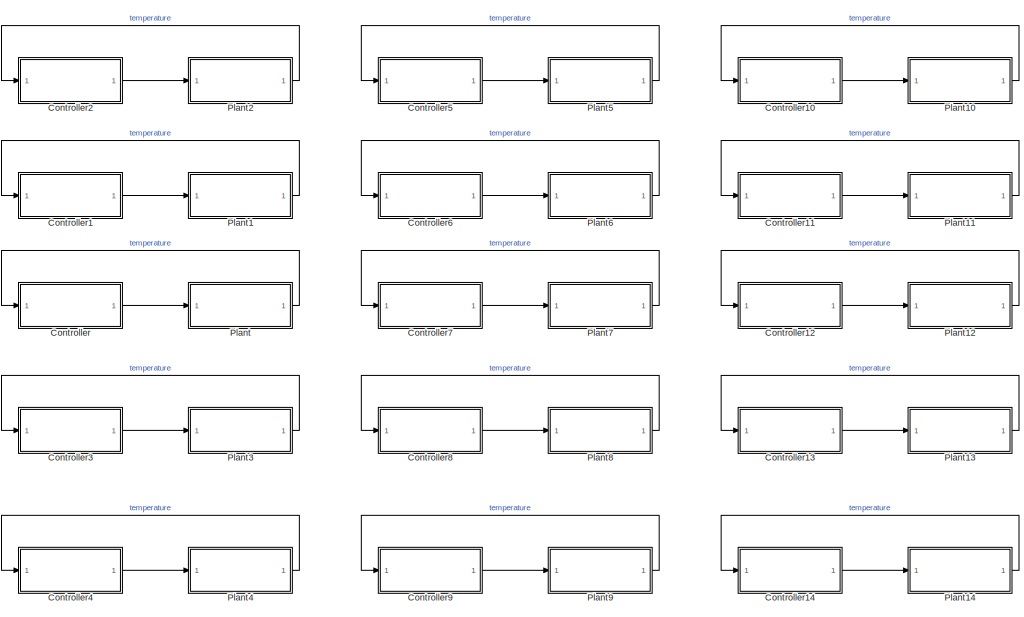
[diagram: root canvas - part 1/2, full width, top band]
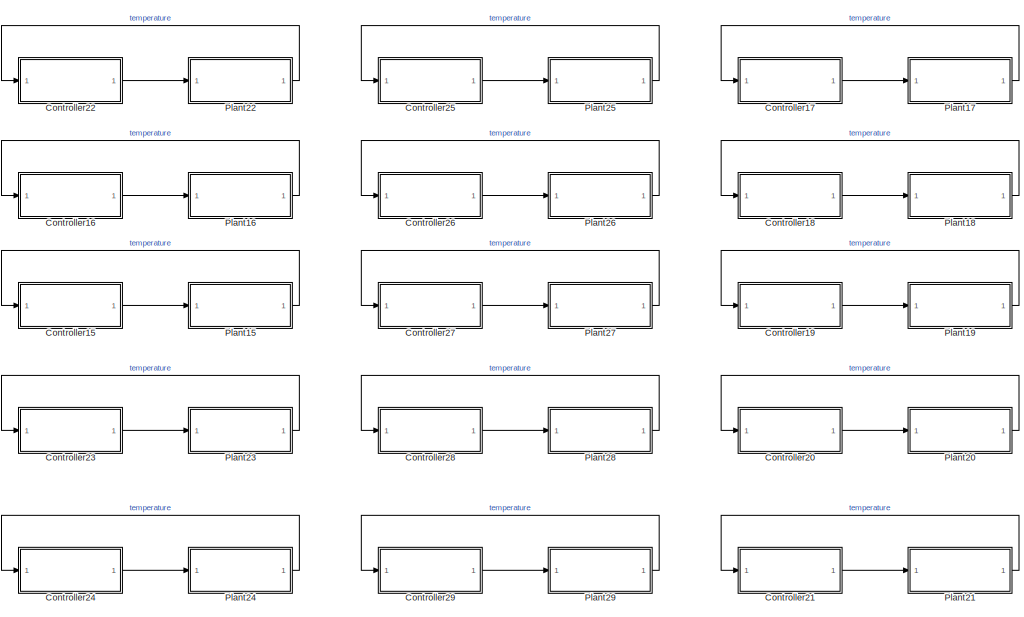
[diagram: root canvas - part 2/2, full width, bottom band]
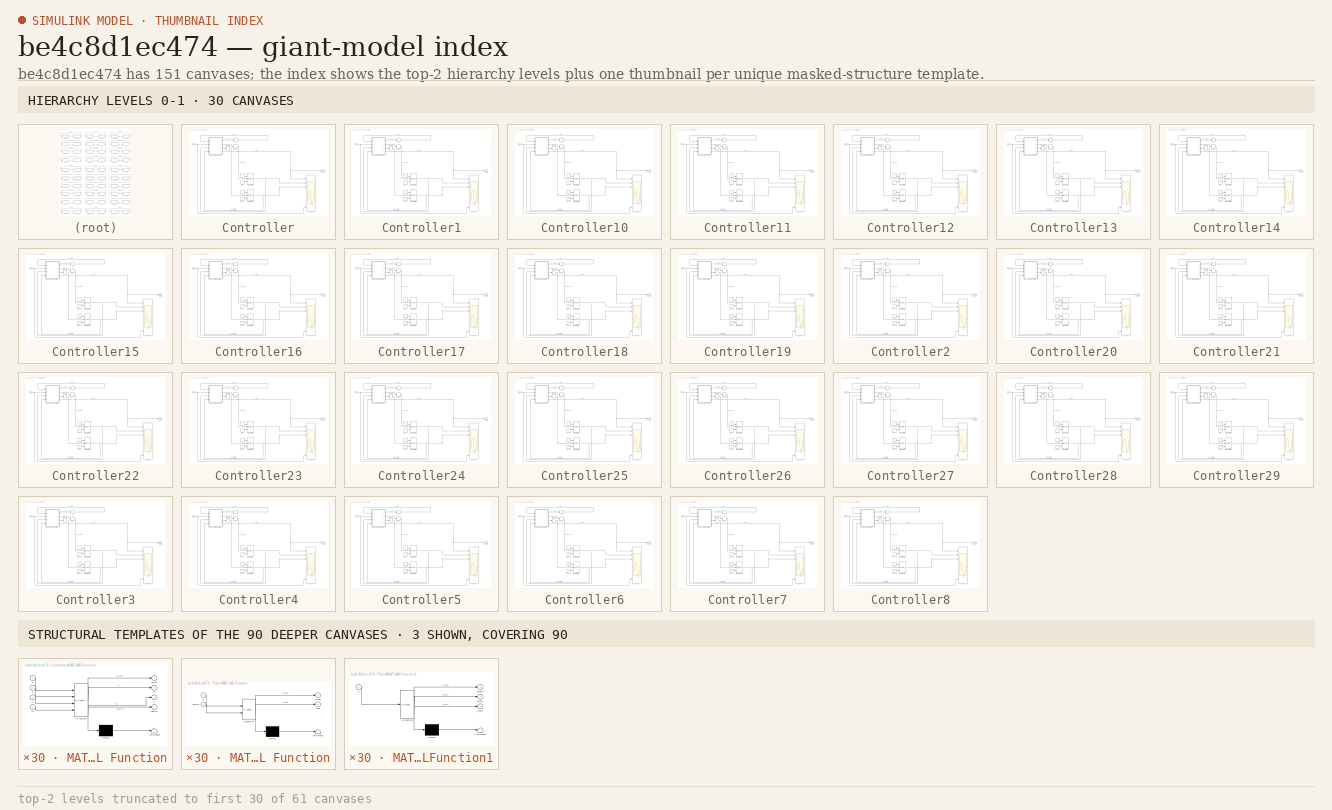
[diagram: thumbnail index - top-2 hierarchy levels (61 canvases (first 30 of 61 shown)) + 3 structural-template representatives of the remaining 90 canvases]
MODEL slx_be4c8d1ec474
KIND model
BLOCK [SubSystem] Controller
  Ports = [1, 1]
  RequestExecContextInheritance = off
BLOCK [Constant] Controller/INIT y1
  Value = 0
BLOCK [Constant] Controller/INIT y2
  Value = 0
BLOCK [DiscreteIntegrator] Controller/Integrator t1
  ExternalReset = either
  InitialCondition = 510
  InitialConditionSetting = State (most efficient)
  InitialConditionSource = external
  Ports = [3, 1]
  SampleTime = -1
BLOCK [DiscreteIntegrator] Controller/Integrator t2
  ExternalReset = either
  InitialCondition = 510
  InitialConditionSetting = State (most efficient)
  InitialConditionSource = external
  Ports = [3, 1]
  SampleTime = -1
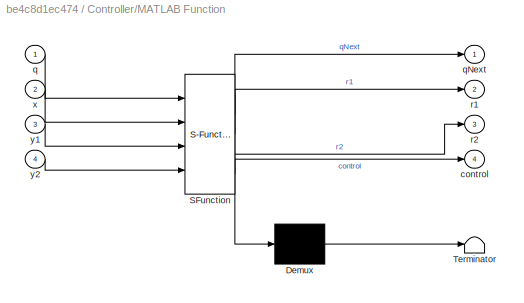
BLOCK [SubSystem] Controller/MATLAB Function
  ErrorFcn = Stateflow.Translate.translate
  PermitHierarchicalResolution = ExplicitOnly
  Ports = [4, 4]
  Priority = 1
  RequestExecContextInheritance = off
  SFBlockType = MATLAB Function
  TreatAsAtomicUnit = on
BLOCK [Demux] Controller/MATLAB Function/ Demux 
  Outputs = 1
  Ports = [1, 1]
BLOCK [S-Function] Controller/MATLAB Function/ SFunction 
  EnableBusSupport = on
  FunctionName = sf_sfun
  PortCounts = [4 5]
  Ports = [4, 5]
  Tag = Stateflow S-Function nuclearReactor 2
BLOCK [Terminator] Controller/MATLAB Function/ Terminator 
BLOCK [Outport] Controller/MATLAB Function/control
  IconDisplay = Port number
  Port = 4
BLOCK [Inport] Controller/MATLAB Function/q
  IconDisplay = Port number
BLOCK [Outport] Controller/MATLAB Function/qNext
  IconDisplay = Port number
BLOCK [Outport] Controller/MATLAB Function/r1
  IconDisplay = Port number
  Port = 2
BLOCK [Outport] Controller/MATLAB Function/r2
  IconDisplay = Port number
  Port = 3
BLOCK [Inport] Controller/MATLAB Function/x
  IconDisplay = Port number
  Port = 2
BLOCK [Inport] Controller/MATLAB Function/y1
  IconDisplay = Port number
  Port = 3
BLOCK [Inport] Controller/MATLAB Function/y2
  IconDisplay = Port number
  Port = 4
BLOCK [Scope] Controller/Scope
  Floating = off
  LimitDataPoints = off
  NumInputPorts = 8
  Ports = [8]
  ShowLegends = on
  TickLabels = on
  YMax = 1~1~1~1~1~1~1~1
  YMin = 0~0~0~0~0~0~0~0
  ZoomMode = xonly
BLOCK [Constant] Controller/con1
BLOCK [Constant] Controller/con2
BLOCK [Outport] Controller/control
  IconDisplay = Port number
BLOCK [Memory] Controller/q
  LinearizeMemory = on
BLOCK [Memory] Controller/reset1
  LinearizeMemory = on
BLOCK [Memory] Controller/reset2
  LinearizeMemory = on
BLOCK [Inport] Controller/x
  IconDisplay = Port number
BLOCK [SubSystem] Controller1
  Ports = [1, 1]
  RequestExecContextInheritance = off
BLOCK [Constant] Controller1/INIT y1
  Value = 0
BLOCK [Constant] Controller1/INIT y2
  Value = 0
BLOCK [DiscreteIntegrator] Controller1/Integrator t1
  ExternalReset = either
  InitialCondition = 510
  InitialConditionSetting = State (most efficient)
  InitialConditionSource = external
  Ports = [3, 1]
  SampleTime = -1
BLOCK [DiscreteIntegrator] Controller1/Integrator t2
  ExternalReset = either
  InitialCondition = 510
  InitialConditionSetting = State (most efficient)
  InitialConditionSource = external
  Ports = [3, 1]
  SampleTime = -1
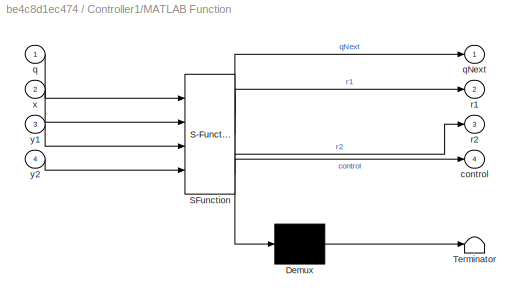
BLOCK [SubSystem] Controller1/MATLAB Function
  ErrorFcn = Stateflow.Translate.translate
  PermitHierarchicalResolution = ExplicitOnly
  Ports = [4, 4]
  Priority = 1
  RequestExecContextInheritance = off
  SFBlockType = MATLAB Function
  TreatAsAtomicUnit = on
BLOCK [Demux] Controller1/MATLAB Function/ Demux 
  Outputs = 1
  Ports = [1, 1]
BLOCK [S-Function] Controller1/MATLAB Function/ SFunction 
  EnableBusSupport = on
  FunctionName = sf_sfun
  PortCounts = [4 5]
  Ports = [4, 5]
  Tag = Stateflow S-Function nuclearReactor 4
BLOCK [Terminator] Controller1/MATLAB Function/ Terminator 
BLOCK [Outport] Controller1/MATLAB Function/control
  IconDisplay = Port number
  Port = 4
BLOCK [Inport] Controller1/MATLAB Function/q
  IconDisplay = Port number
BLOCK [Outport] Controller1/MATLAB Function/qNext
  IconDisplay = Port number
BLOCK [Outport] Controller1/MATLAB Function/r1
  IconDisplay = Port number
  Port = 2
BLOCK [Outport] Controller1/MATLAB Function/r2
  IconDisplay = Port number
  Port = 3
BLOCK [Inport] Controller1/MATLAB Function/x
  IconDisplay = Port number
  Port = 2
BLOCK [Inport] Controller1/MATLAB Function/y1
  IconDisplay = Port number
  Port = 3
BLOCK [Inport] Controller1/MATLAB Function/y2
  IconDisplay = Port number
  Port = 4
BLOCK [Scope] Controller1/Scope
  Floating = off
  LimitDataPoints = off
  NumInputPorts = 8
  Ports = [8]
  ShowLegends = on
  TickLabels = on
  YMax = 1~1~1~1~1~1~1~1
  YMin = 0~0~0~0~0~0~0~0
  ZoomMode = xonly
BLOCK [Constant] Controller1/con1
BLOCK [Constant] Controller1/con2
BLOCK [Outport] Controller1/control
  IconDisplay = Port number
BLOCK [Memory] Controller1/q
  LinearizeMemory = on
BLOCK [Memory] Controller1/reset1
  LinearizeMemory = on
BLOCK [Memory] Controller1/reset2
  LinearizeMemory = on
BLOCK [Inport] Controller1/x
  IconDisplay = Port number
BLOCK [SubSystem] Controller10
  Ports = [1, 1]
  RequestExecContextInheritance = off
BLOCK [Constant] Controller10/INIT y1
  Value = 0
BLOCK [Constant] Controller10/INIT y2
  Value = 0
BLOCK [DiscreteIntegrator] Controller10/Integrator t1
  ExternalReset = either
  InitialCondition = 510
  InitialConditionSetting = State (most efficient)
  InitialConditionSource = external
  Ports = [3, 1]
  SampleTime = -1
BLOCK [DiscreteIntegrator] Controller10/Integrator t2
  ExternalReset = either
  InitialCondition = 510
  InitialConditionSetting = State (most efficient)
  InitialConditionSource = external
  Ports = [3, 1]
  SampleTime = -1
BLOCK [SubSystem] Controller10/MATLAB Function
  ErrorFcn = Stateflow.Translate.translate
  PermitHierarchicalResolution = ExplicitOnly
  Ports = [4, 4]
  Priority = 1
  RequestExecContextInheritance = off
  SFBlockType = MATLAB Function
  TreatAsAtomicUnit = on
BLOCK [Demux] Controller10/MATLAB Function/ Demux 
  Outputs = 1
  Ports = [1, 1]
BLOCK [S-Function] Controller10/MATLAB Function/ SFunction 
  EnableBusSupport = on
  FunctionName = sf_sfun
  PortCounts = [4 5]
  Ports = [4, 5]
  Tag = Stateflow S-Function nuclearReactor 31
BLOCK [Terminator] Controller10/MATLAB Function/ Terminator 
BLOCK [Outport] Controller10/MATLAB Function/control
  IconDisplay = Port number
  Port = 4
BLOCK [Inport] Controller10/MATLAB Function/q
  IconDisplay = Port number
BLOCK [Outport] Controller10/MATLAB Function/qNext
  IconDisplay = Port number
BLOCK [Outport] Controller10/MATLAB Function/r1
  IconDisplay = Port number
  Port = 2
BLOCK [Outport] Controller10/MATLAB Function/r2
  IconDisplay = Port number
  Port = 3
BLOCK [Inport] Controller10/MATLAB Function/x
  IconDisplay = Port number
  Port = 2
BLOCK [Inport] Controller10/MATLAB Function/y1
  IconDisplay = Port number
  Port = 3
BLOCK [Inport] Controller10/MATLAB Function/y2
  IconDisplay = Port number
  Port = 4
BLOCK [Scope] Controller10/Scope
  Floating = off
  LimitDataPoints = off
  NumInputPorts = 8
  Ports = [8]
  ShowLegends = on
  TickLabels = on
  YMax = 1~1~1~1~1~1~1~1
  YMin = 0~0~0~0~0~0~0~0
  ZoomMode = xonly
BLOCK [Constant] Controller10/con1
BLOCK [Constant] Controller10/con2
BLOCK [Outport] Controller10/control
  IconDisplay = Port number
BLOCK [Memory] Controller10/q
  LinearizeMemory = on
BLOCK [Memory] Controller10/reset1
  LinearizeMemory = on
BLOCK [Memory] Controller10/reset2
  LinearizeMemory = on
BLOCK [Inport] Controller10/x
  IconDisplay = Port number
BLOCK [SubSystem] Controller11
  Ports = [1, 1]
  RequestExecContextInheritance = off
BLOCK [Constant] Controller11/INIT y1
  Value = 0
BLOCK [Constant] Controller11/INIT y2
  Value = 0
BLOCK [DiscreteIntegrator] Controller11/Integrator t1
  ExternalReset = either
  InitialCondition = 510
  InitialConditionSetting = State (most efficient)
  InitialConditionSource = external
  Ports = [3, 1]
  SampleTime = -1
BLOCK [DiscreteIntegrator] Controller11/Integrator t2
  ExternalReset = either
  InitialCondition = 510
  InitialConditionSetting = State (most efficient)
  InitialConditionSource = external
  Ports = [3, 1]
  SampleTime = -1
BLOCK [SubSystem] Controller11/MATLAB Function
  ErrorFcn = Stateflow.Translate.translate
  PermitHierarchicalResolution = ExplicitOnly
  Ports = [4, 4]
  Priority = 1
  RequestExecContextInheritance = off
  SFBlockType = MATLAB Function
  TreatAsAtomicUnit = on
BLOCK [Demux] Controller11/MATLAB Function/ Demux 
  Outputs = 1
  Ports = [1, 1]
BLOCK [S-Function] Controller11/MATLAB Function/ SFunction 
  EnableBusSupport = on
  FunctionName = sf_sfun
  PortCounts = [4 5]
  Ports = [4, 5]
  Tag = Stateflow S-Function nuclearReactor 34
BLOCK [Terminator] Controller11/MATLAB Function/ Terminator 
BLOCK [Outport] Controller11/MATLAB Function/control
  IconDisplay = Port number
  Port = 4
BLOCK [Inport] Controller11/MATLAB Function/q
  IconDisplay = Port number
BLOCK [Outport] Controller11/MATLAB Function/qNext
  IconDisplay = Port number
BLOCK [Outport] Controller11/MATLAB Function/r1
  IconDisplay = Port number
  Port = 2
BLOCK [Outport] Controller11/MATLAB Function/r2
  IconDisplay = Port number
  Port = 3
BLOCK [Inport] Controller11/MATLAB Function/x
  IconDisplay = Port number
  Port = 2
BLOCK [Inport] Controller11/MATLAB Function/y1
  IconDisplay = Port number
  Port = 3
BLOCK [Inport] Controller11/MATLAB Function/y2
  IconDisplay = Port number
  Port = 4
BLOCK [Scope] Controller11/Scope
  Floating = off
  LimitDataPoints = off
  NumInputPorts = 8
  Ports = [8]
  ShowLegends = on
  TickLabels = on
  YMax = 1~1~1~1~1~1~1~1
  YMin = 0~0~0~0~0~0~0~0
  ZoomMode = xonly
BLOCK [Constant] Controller11/con1
BLOCK [Constant] Controller11/con2
BLOCK [Outport] Controller11/control
  IconDisplay = Port number
BLOCK [Memory] Controller11/q
  LinearizeMemory = on
BLOCK [Memory] Controller11/reset1
  LinearizeMemory = on
BLOCK [Memory] Controller11/reset2
  LinearizeMemory = on
BLOCK [Inport] Controller11/x
  IconDisplay = Port number
BLOCK [SubSystem] Controller12
  Ports = [1, 1]
  RequestExecContextInheritance = off
BLOCK [Constant] Controller12/INIT y1
  Value = 0
BLOCK [Constant] Controller12/INIT y2
  Value = 0
BLOCK [DiscreteIntegrator] Controller12/Integrator t1
  ExternalReset = either
  InitialCondition = 510
  InitialConditionSetting = State (most efficient)
  InitialConditionSource = external
  Ports = [3, 1]
  SampleTime = -1
BLOCK [DiscreteIntegrator] Controller12/Integrator t2
  ExternalReset = either
  InitialCondition = 510
  InitialConditionSetting = State (most efficient)
  InitialConditionSource = external
  Ports = [3, 1]
  SampleTime = -1
BLOCK [SubSystem] Controller12/MATLAB Function
  ErrorFcn = Stateflow.Translate.translate
  PermitHierarchicalResolution = ExplicitOnly
  Ports = [4, 4]
  Priority = 1
  RequestExecContextInheritance = off
  SFBlockType = MATLAB Function
  TreatAsAtomicUnit = on
BLOCK [Demux] Controller12/MATLAB Function/ Demux 
  Outputs = 1
  Ports = [1, 1]
BLOCK [S-Function] Controller12/MATLAB Function/ SFunction 
  EnableBusSupport = on
  FunctionName = sf_sfun
  PortCounts = [4 5]
  Ports = [4, 5]
  Tag = Stateflow S-Function nuclearReactor 37
BLOCK [Terminator] Controller12/MATLAB Function/ Terminator 
BLOCK [Outport] Controller12/MATLAB Function/control
  IconDisplay = Port number
  Port = 4
BLOCK [Inport] Controller12/MATLAB Function/q
  IconDisplay = Port number
BLOCK [Outport] Controller12/MATLAB Function/qNext
  IconDisplay = Port number
BLOCK [Outport] Controller12/MATLAB Function/r1
  IconDisplay = Port number
  Port = 2
BLOCK [Outport] Controller12/MATLAB Function/r2
  IconDisplay = Port number
  Port = 3
BLOCK [Inport] Controller12/MATLAB Function/x
  IconDisplay = Port number
  Port = 2
BLOCK [Inport] Controller12/MATLAB Function/y1
  IconDisplay = Port number
  Port = 3
BLOCK [Inport] Controller12/MATLAB Function/y2
  IconDisplay = Port number
  Port = 4
BLOCK [Scope] Controller12/Scope
  Floating = off
  LimitDataPoints = off
  NumInputPorts = 8
  Ports = [8]
  ShowLegends = on
  TickLabels = on
  YMax = 1~1~1~1~1~1~1~1
  YMin = 0~0~0~0~0~0~0~0
  ZoomMode = xonly
BLOCK [Constant] Controller12/con1
BLOCK [Constant] Controller12/con2
BLOCK [Outport] Controller12/control
  IconDisplay = Port number
BLOCK [Memory] Controller12/q
  LinearizeMemory = on
BLOCK [Memory] Controller12/reset1
  LinearizeMemory = on
BLOCK [Memory] Controller12/reset2
  LinearizeMemory = on
BLOCK [Inport] Controller12/x
  IconDisplay = Port number
BLOCK [SubSystem] Controller13
  Ports = [1, 1]
  RequestExecContextInheritance = off
BLOCK [Constant] Controller13/INIT y1
  Value = 0
BLOCK [Constant] Controller13/INIT y2
  Value = 0
BLOCK [DiscreteIntegrator] Controller13/Integrator t1
  ExternalReset = either
  InitialCondition = 510
  InitialConditionSetting = State (most efficient)
  InitialConditionSource = external
  Ports = [3, 1]
  SampleTime = -1
BLOCK [DiscreteIntegrator] Controller13/Integrator t2
  ExternalReset = either
  InitialCondition = 510
  InitialConditionSetting = State (most efficient)
  InitialConditionSource = external
  Ports = [3, 1]
  SampleTime = -1
BLOCK [SubSystem] Controller13/MATLAB Function
  ErrorFcn = Stateflow.Translate.translate
  PermitHierarchicalResolution = ExplicitOnly
  Ports = [4, 4]
  Priority = 1
  RequestExecContextInheritance = off
  SFBlockType = MATLAB Function
  TreatAsAtomicUnit = on
BLOCK [Demux] Controller13/MATLAB Function/ Demux 
  Outputs = 1
  Ports = [1, 1]
BLOCK [S-Function] Controller13/MATLAB Function/ SFunction 
  EnableBusSupport = on
  FunctionName = sf_sfun
  PortCounts = [4 5]
  Ports = [4, 5]
  Tag = Stateflow S-Function nuclearReactor 40
BLOCK [Terminator] Controller13/MATLAB Function/ Terminator 
BLOCK [Outport] Controller13/MATLAB Function/control
  IconDisplay = Port number
  Port = 4
BLOCK [Inport] Controller13/MATLAB Function/q
  IconDisplay = Port number
BLOCK [Outport] Controller13/MATLAB Function/qNext
  IconDisplay = Port number
BLOCK [Outport] Controller13/MATLAB Function/r1
  IconDisplay = Port number
  Port = 2
BLOCK [Outport] Controller13/MATLAB Function/r2
  IconDisplay = Port number
  Port = 3
BLOCK [Inport] Controller13/MATLAB Function/x
  IconDisplay = Port number
  Port = 2
BLOCK [Inport] Controller13/MATLAB Function/y1
  IconDisplay = Port number
  Port = 3
BLOCK [Inport] Controller13/MATLAB Function/y2
  IconDisplay = Port number
  Port = 4
BLOCK [Scope] Controller13/Scope
  Floating = off
  LimitDataPoints = off
  NumInputPorts = 8
  Ports = [8]
  ShowLegends = on
  TickLabels = on
  YMax = 1~1~1~1~1~1~1~1
  YMin = 0~0~0~0~0~0~0~0
  ZoomMode = xonly
BLOCK [Constant] Controller13/con1
BLOCK [Constant] Controller13/con2
BLOCK [Outport] Controller13/control
  IconDisplay = Port number
BLOCK [Memory] Controller13/q
  LinearizeMemory = on
BLOCK [Memory] Controller13/reset1
  LinearizeMemory = on
BLOCK [Memory] Controller13/reset2
  LinearizeMemory = on
BLOCK [Inport] Controller13/x
  IconDisplay = Port number
BLOCK [SubSystem] Controller14
  Ports = [1, 1]
  RequestExecContextInheritance = off
BLOCK [Constant] Controller14/INIT y1
  Value = 0
BLOCK [Constant] Controller14/INIT y2
  Value = 0
BLOCK [DiscreteIntegrator] Controller14/Integrator t1
  ExternalReset = either
  InitialCondition = 510
  InitialConditionSetting = State (most efficient)
  InitialConditionSource = external
  Ports = [3, 1]
  SampleTime = -1
BLOCK [DiscreteIntegrator] Controller14/Integrator t2
  ExternalReset = either
  InitialCondition = 510
  InitialConditionSetting = State (most efficient)
  InitialConditionSource = external
  Ports = [3, 1]
  SampleTime = -1
BLOCK [SubSystem] Controller14/MATLAB Function
  ErrorFcn = Stateflow.Translate.translate
  PermitHierarchicalResolution = ExplicitOnly
  Ports = [4, 4]
  Priority = 1
  RequestExecContextInheritance = off
  SFBlockType = MATLAB Function
  TreatAsAtomicUnit = on
BLOCK [Demux] Controller14/MATLAB Function/ Demux 
  Outputs = 1
  Ports = [1, 1]
BLOCK [S-Function] Controller14/MATLAB Function/ SFunction 
  EnableBusSupport = on
  FunctionName = sf_sfun
  PortCounts = [4 5]
  Ports = [4, 5]
  Tag = Stateflow S-Function nuclearReactor 43
BLOCK [Terminator] Controller14/MATLAB Function/ Terminator 
BLOCK [Outport] Controller14/MATLAB Function/control
  IconDisplay = Port number
  Port = 4
BLOCK [Inport] Controller14/MATLAB Function/q
  IconDisplay = Port number
BLOCK [Outport] Controller14/MATLAB Function/qNext
  IconDisplay = Port number
BLOCK [Outport] Controller14/MATLAB Function/r1
  IconDisplay = Port number
  Port = 2
BLOCK [Outport] Controller14/MATLAB Function/r2
  IconDisplay = Port number
  Port = 3
BLOCK [Inport] Controller14/MATLAB Function/x
  IconDisplay = Port number
  Port = 2
BLOCK [Inport] Controller14/MATLAB Function/y1
  IconDisplay = Port number
  Port = 3
BLOCK [Inport] Controller14/MATLAB Function/y2
  IconDisplay = Port number
  Port = 4
BLOCK [Scope] Controller14/Scope
  Floating = off
  LimitDataPoints = off
  NumInputPorts = 8
  Ports = [8]
  ShowLegends = on
  TickLabels = on
  YMax = 1~1~1~1~1~1~1~1
  YMin = 0~0~0~0~0~0~0~0
  ZoomMode = xonly
BLOCK [Constant] Controller14/con1
BLOCK [Constant] Controller14/con2
BLOCK [Outport] Controller14/control
  IconDisplay = Port number
BLOCK [Memory] Controller14/q
  LinearizeMemory = on
BLOCK [Memory] Controller14/reset1
  LinearizeMemory = on
BLOCK [Memory] Controller14/reset2
  LinearizeMemory = on
BLOCK [Inport] Controller14/x
  IconDisplay = Port number
BLOCK [SubSystem] Controller15
  Ports = [1, 1]
  RequestExecContextInheritance = off
BLOCK [Constant] Controller15/INIT y1
  Value = 0
BLOCK [Constant] Controller15/INIT y2
  Value = 0
BLOCK [DiscreteIntegrator] Controller15/Integrator t1
  ExternalReset = either
  InitialCondition = 510
  InitialConditionSetting = State (most efficient)
  InitialConditionSource = external
  Ports = [3, 1]
  SampleTime = -1
BLOCK [DiscreteIntegrator] Controller15/Integrator t2
  ExternalReset = either
  InitialCondition = 510
  InitialConditionSetting = State (most efficient)
  InitialConditionSource = external
  Ports = [3, 1]
  SampleTime = -1
BLOCK [SubSystem] Controller15/MATLAB Function
  ErrorFcn = Stateflow.Translate.translate
  PermitHierarchicalResolution = ExplicitOnly
  Ports = [4, 4]
  Priority = 1
  RequestExecContextInheritance = off
  SFBlockType = MATLAB Function
  TreatAsAtomicUnit = on
BLOCK [Demux] Controller15/MATLAB Function/ Demux 
  Outputs = 1
  Ports = [1, 1]
BLOCK [S-Function] Controller15/MATLAB Function/ SFunction 
  EnableBusSupport = on
  FunctionName = sf_sfun
  PortCounts = [4 5]
  Ports = [4, 5]
  Tag = Stateflow S-Function nuclearReactor 46
BLOCK [Terminator] Controller15/MATLAB Function/ Terminator 
BLOCK [Outport] Controller15/MATLAB Function/control
  IconDisplay = Port number
  Port = 4
BLOCK [Inport] Controller15/MATLAB Function/q
  IconDisplay = Port number
BLOCK [Outport] Controller15/MATLAB Function/qNext
  IconDisplay = Port number
BLOCK [Outport] Controller15/MATLAB Function/r1
  IconDisplay = Port number
  Port = 2
BLOCK [Outport] Controller15/MATLAB Function/r2
  IconDisplay = Port number
  Port = 3
BLOCK [Inport] Controller15/MATLAB Function/x
  IconDisplay = Port number
  Port = 2
BLOCK [Inport] Controller15/MATLAB Function/y1
  IconDisplay = Port number
  Port = 3
BLOCK [Inport] Controller15/MATLAB Function/y2
  IconDisplay = Port number
  Port = 4
BLOCK [Scope] Controller15/Scope
  Floating = off
  LimitDataPoints = off
  NumInputPorts = 8
  Ports = [8]
  ShowLegends = on
  TickLabels = on
  YMax = 1~1~1~1~1~1~1~1
  YMin = 0~0~0~0~0~0~0~0
  ZoomMode = xonly
BLOCK [Constant] Controller15/con1
BLOCK [Constant] Controller15/con2
BLOCK [Outport] Controller15/control
  IconDisplay = Port number
BLOCK [Memory] Controller15/q
  LinearizeMemory = on
BLOCK [Memory] Controller15/reset1
  LinearizeMemory = on
BLOCK [Memory] Controller15/reset2
  LinearizeMemory = on
BLOCK [Inport] Controller15/x
  IconDisplay = Port number
BLOCK [SubSystem] Controller16
  Ports = [1, 1]
  RequestExecContextInheritance = off
BLOCK [Constant] Controller16/INIT y1
  Value = 0
BLOCK [Constant] Controller16/INIT y2
  Value = 0
BLOCK [DiscreteIntegrator] Controller16/Integrator t1
  ExternalReset = either
  InitialCondition = 510
  InitialConditionSetting = State (most efficient)
  InitialConditionSource = external
  Ports = [3, 1]
  SampleTime = -1
BLOCK [DiscreteIntegrator] Controller16/Integrator t2
  ExternalReset = either
  InitialCondition = 510
  InitialConditionSetting = State (most efficient)
  InitialConditionSource = external
  Ports = [3, 1]
  SampleTime = -1
BLOCK [SubSystem] Controller16/MATLAB Function
  ErrorFcn = Stateflow.Translate.translate
  PermitHierarchicalResolution = ExplicitOnly
  Ports = [4, 4]
  Priority = 1
  RequestExecContextInheritance = off
  SFBlockType = MATLAB Function
  TreatAsAtomicUnit = on
BLOCK [Demux] Controller16/MATLAB Function/ Demux 
  Outputs = 1
  Ports = [1, 1]
BLOCK [S-Function] Controller16/MATLAB Function/ SFunction 
  EnableBusSupport = on
  FunctionName = sf_sfun
  PortCounts = [4 5]
  Ports = [4, 5]
  Tag = Stateflow S-Function nuclearReactor 47
BLOCK [Terminator] Controller16/MATLAB Function/ Terminator 
BLOCK [Outport] Controller16/MATLAB Function/control
  IconDisplay = Port number
  Port = 4
BLOCK [Inport] Controller16/MATLAB Function/q
  IconDisplay = Port number
BLOCK [Outport] Controller16/MATLAB Function/qNext
  IconDisplay = Port number
BLOCK [Outport] Controller16/MATLAB Function/r1
  IconDisplay = Port number
  Port = 2
BLOCK [Outport] Controller16/MATLAB Function/r2
  IconDisplay = Port number
  Port = 3
BLOCK [Inport] Controller16/MATLAB Function/x
  IconDisplay = Port number
  Port = 2
BLOCK [Inport] Controller16/MATLAB Function/y1
  IconDisplay = Port number
  Port = 3
BLOCK [Inport] Controller16/MATLAB Function/y2
  IconDisplay = Port number
  Port = 4
BLOCK [Scope] Controller16/Scope
  Floating = off
  LimitDataPoints = off
  NumInputPorts = 8
  Ports = [8]
  ShowLegends = on
  TickLabels = on
  YMax = 1~1~1~1~1~1~1~1
  YMin = 0~0~0~0~0~0~0~0
  ZoomMode = xonly
BLOCK [Constant] Controller16/con1
BLOCK [Constant] Controller16/con2
BLOCK [Outport] Controller16/control
  IconDisplay = Port number
BLOCK [Memory] Controller16/q
  LinearizeMemory = on
BLOCK [Memory] Controller16/reset1
  LinearizeMemory = on
BLOCK [Memory] Controller16/reset2
  LinearizeMemory = on
BLOCK [Inport] Controller16/x
  IconDisplay = Port number
BLOCK [SubSystem] Controller17
  Ports = [1, 1]
  RequestExecContextInheritance = off
BLOCK [Constant] Controller17/INIT y1
  Value = 0
BLOCK [Constant] Controller17/INIT y2
  Value = 0
BLOCK [DiscreteIntegrator] Controller17/Integrator t1
  ExternalReset = either
  InitialCondition = 510
  InitialConditionSetting = State (most efficient)
  InitialConditionSource = external
  Ports = [3, 1]
  SampleTime = -1
BLOCK [DiscreteIntegrator] Controller17/Integrator t2
  ExternalReset = either
  InitialCondition = 510
  InitialConditionSetting = State (most efficient)
  InitialConditionSource = external
  Ports = [3, 1]
  SampleTime = -1
BLOCK [SubSystem] Controller17/MATLAB Function
  ErrorFcn = Stateflow.Translate.translate
  PermitHierarchicalResolution = ExplicitOnly
  Ports = [4, 4]
  Priority = 1
  RequestExecContextInheritance = off
  SFBlockType = MATLAB Function
  TreatAsAtomicUnit = on
BLOCK [Demux] Controller17/MATLAB Function/ Demux 
  Outputs = 1
  Ports = [1, 1]
BLOCK [S-Function] Controller17/MATLAB Function/ SFunction 
  EnableBusSupport = on
  FunctionName = sf_sfun
  PortCounts = [4 5]
  Ports = [4, 5]
  Tag = Stateflow S-Function nuclearReactor 48
BLOCK [Terminator] Controller17/MATLAB Function/ Terminator 
BLOCK [Outport] Controller17/MATLAB Function/control
  IconDisplay = Port number
  Port = 4
BLOCK [Inport] Controller17/MATLAB Function/q
  IconDisplay = Port number
BLOCK [Outport] Controller17/MATLAB Function/qNext
  IconDisplay = Port number
BLOCK [Outport] Controller17/MATLAB Function/r1
  IconDisplay = Port number
  Port = 2
BLOCK [Outport] Controller17/MATLAB Function/r2
  IconDisplay = Port number
  Port = 3
BLOCK [Inport] Controller17/MATLAB Function/x
  IconDisplay = Port number
  Port = 2
BLOCK [Inport] Controller17/MATLAB Function/y1
  IconDisplay = Port number
  Port = 3
BLOCK [Inport] Controller17/MATLAB Function/y2
  IconDisplay = Port number
  Port = 4
BLOCK [Scope] Controller17/Scope
  Floating = off
  LimitDataPoints = off
  NumInputPorts = 8
  Ports = [8]
  ShowLegends = on
  TickLabels = on
  YMax = 1~1~1~1~1~1~1~1
  YMin = 0~0~0~0~0~0~0~0
  ZoomMode = xonly
BLOCK [Constant] Controller17/con1
BLOCK [Constant] Controller17/con2
BLOCK [Outport] Controller17/control
  IconDisplay = Port number
BLOCK [Memory] Controller17/q
  LinearizeMemory = on
BLOCK [Memory] Controller17/reset1
  LinearizeMemory = on
BLOCK [Memory] Controller17/reset2
  LinearizeMemory = on
BLOCK [Inport] Controller17/x
  IconDisplay = Port number
BLOCK [SubSystem] Controller18
  Ports = [1, 1]
  RequestExecContextInheritance = off
BLOCK [Constant] Controller18/INIT y1
  Value = 0
BLOCK [Constant] Controller18/INIT y2
  Value = 0
BLOCK [DiscreteIntegrator] Controller18/Integrator t1
  ExternalReset = either
  InitialCondition = 510
  InitialConditionSetting = State (most efficient)
  InitialConditionSource = external
  Ports = [3, 1]
  SampleTime = -1
BLOCK [DiscreteIntegrator] Controller18/Integrator t2
  ExternalReset = either
  InitialCondition = 510
  InitialConditionSetting = State (most efficient)
  InitialConditionSource = external
  Ports = [3, 1]
  SampleTime = -1
BLOCK [SubSystem] Controller18/MATLAB Function
  ErrorFcn = Stateflow.Translate.translate
  PermitHierarchicalResolution = ExplicitOnly
  Ports = [4, 4]
  Priority = 1
  RequestExecContextInheritance = off
  SFBlockType = MATLAB Function
  TreatAsAtomicUnit = on
BLOCK [Demux] Controller18/MATLAB Function/ Demux 
  Outputs = 1
  Ports = [1, 1]
BLOCK [S-Function] Controller18/MATLAB Function/ SFunction 
  EnableBusSupport = on
  FunctionName = sf_sfun
  PortCounts = [4 5]
  Ports = [4, 5]
  Tag = Stateflow S-Function nuclearReactor 49
BLOCK [Terminator] Controller18/MATLAB Function/ Terminator 
BLOCK [Outport] Controller18/MATLAB Function/control
  IconDisplay = Port number
  Port = 4
BLOCK [Inport] Controller18/MATLAB Function/q
  IconDisplay = Port number
BLOCK [Outport] Controller18/MATLAB Function/qNext
  IconDisplay = Port number
BLOCK [Outport] Controller18/MATLAB Function/r1
  IconDisplay = Port number
  Port = 2
BLOCK [Outport] Controller18/MATLAB Function/r2
  IconDisplay = Port number
  Port = 3
BLOCK [Inport] Controller18/MATLAB Function/x
  IconDisplay = Port number
  Port = 2
BLOCK [Inport] Controller18/MATLAB Function/y1
  IconDisplay = Port number
  Port = 3
BLOCK [Inport] Controller18/MATLAB Function/y2
  IconDisplay = Port number
  Port = 4
BLOCK [Scope] Controller18/Scope
  Floating = off
  LimitDataPoints = off
  NumInputPorts = 8
  Ports = [8]
  ShowLegends = on
  TickLabels = on
  YMax = 1~1~1~1~1~1~1~1
  YMin = 0~0~0~0~0~0~0~0
  ZoomMode = xonly
BLOCK [Constant] Controller18/con1
BLOCK [Constant] Controller18/con2
BLOCK [Outport] Controller18/control
  IconDisplay = Port number
BLOCK [Memory] Controller18/q
  LinearizeMemory = on
BLOCK [Memory] Controller18/reset1
  LinearizeMemory = on
BLOCK [Memory] Controller18/reset2
  LinearizeMemory = on
BLOCK [Inport] Controller18/x
  IconDisplay = Port number
BLOCK [SubSystem] Controller19
  Ports = [1, 1]
  RequestExecContextInheritance = off
BLOCK [Constant] Controller19/INIT y1
  Value = 0
BLOCK [Constant] Controller19/INIT y2
  Value = 0
BLOCK [DiscreteIntegrator] Controller19/Integrator t1
  ExternalReset = either
  InitialCondition = 510
  InitialConditionSetting = State (most efficient)
  InitialConditionSource = external
  Ports = [3, 1]
  SampleTime = -1
BLOCK [DiscreteIntegrator] Controller19/Integrator t2
  ExternalReset = either
  InitialCondition = 510
  InitialConditionSetting = State (most efficient)
  InitialConditionSource = external
  Ports = [3, 1]
  SampleTime = -1
BLOCK [SubSystem] Controller19/MATLAB Function
  ErrorFcn = Stateflow.Translate.translate
  PermitHierarchicalResolution = ExplicitOnly
  Ports = [4, 4]
  Priority = 1
  RequestExecContextInheritance = off
  SFBlockType = MATLAB Function
  TreatAsAtomicUnit = on
BLOCK [Demux] Controller19/MATLAB Function/ Demux 
  Outputs = 1
  Ports = [1, 1]
BLOCK [S-Function] Controller19/MATLAB Function/ SFunction 
  EnableBusSupport = on
  FunctionName = sf_sfun
  PortCounts = [4 5]
  Ports = [4, 5]
  Tag = Stateflow S-Function nuclearReactor 50
BLOCK [Terminator] Controller19/MATLAB Function/ Terminator 
BLOCK [Outport] Controller19/MATLAB Function/control
  IconDisplay = Port number
  Port = 4
BLOCK [Inport] Controller19/MATLAB Function/q
  IconDisplay = Port number
BLOCK [Outport] Controller19/MATLAB Function/qNext
  IconDisplay = Port number
BLOCK [Outport] Controller19/MATLAB Function/r1
  IconDisplay = Port number
  Port = 2
BLOCK [Outport] Controller19/MATLAB Function/r2
  IconDisplay = Port number
  Port = 3
BLOCK [Inport] Controller19/MATLAB Function/x
  IconDisplay = Port number
  Port = 2
BLOCK [Inport] Controller19/MATLAB Function/y1
  IconDisplay = Port number
  Port = 3
BLOCK [Inport] Controller19/MATLAB Function/y2
  IconDisplay = Port number
  Port = 4
BLOCK [Scope] Controller19/Scope
  Floating = off
  LimitDataPoints = off
  NumInputPorts = 8
  Ports = [8]
  ShowLegends = on
  TickLabels = on
  YMax = 1~1~1~1~1~1~1~1
  YMin = 0~0~0~0~0~0~0~0
  ZoomMode = xonly
BLOCK [Constant] Controller19/con1
BLOCK [Constant] Controller19/con2
BLOCK [Outport] Controller19/control
  IconDisplay = Port number
BLOCK [Memory] Controller19/q
  LinearizeMemory = on
BLOCK [Memory] Controller19/reset1
  LinearizeMemory = on
BLOCK [Memory] Controller19/reset2
  LinearizeMemory = on
BLOCK [Inport] Controller19/x
  IconDisplay = Port number
BLOCK [SubSystem] Controller2
  Ports = [1, 1]
  RequestExecContextInheritance = off
BLOCK [Constant] Controller2/INIT y1
  Value = 0
BLOCK [Constant] Controller2/INIT y2
  Value = 0
BLOCK [DiscreteIntegrator] Controller2/Integrator t1
  ExternalReset = either
  InitialCondition = 510
  InitialConditionSetting = State (most efficient)
  InitialConditionSource = external
  Ports = [3, 1]
  SampleTime = -1
BLOCK [DiscreteIntegrator] Controller2/Integrator t2
  ExternalReset = either
  InitialCondition = 510
  InitialConditionSetting = State (most efficient)
  InitialConditionSource = external
  Ports = [3, 1]
  SampleTime = -1
BLOCK [SubSystem] Controller2/MATLAB Function
  ErrorFcn = Stateflow.Translate.translate
  PermitHierarchicalResolution = ExplicitOnly
  Ports = [4, 4]
  Priority = 1
  RequestExecContextInheritance = off
  SFBlockType = MATLAB Function
  TreatAsAtomicUnit = on
BLOCK [Demux] Controller2/MATLAB Function/ Demux 
  Outputs = 1
  Ports = [1, 1]
BLOCK [S-Function] Controller2/MATLAB Function/ SFunction 
  EnableBusSupport = on
  FunctionName = sf_sfun
  PortCounts = [4 5]
  Ports = [4, 5]
  Tag = Stateflow S-Function nuclearReactor 7
BLOCK [Terminator] Controller2/MATLAB Function/ Terminator 
BLOCK [Outport] Controller2/MATLAB Function/control
  IconDisplay = Port number
  Port = 4
BLOCK [Inport] Controller2/MATLAB Function/q
  IconDisplay = Port number
BLOCK [Outport] Controller2/MATLAB Function/qNext
  IconDisplay = Port number
BLOCK [Outport] Controller2/MATLAB Function/r1
  IconDisplay = Port number
  Port = 2
BLOCK [Outport] Controller2/MATLAB Function/r2
  IconDisplay = Port number
  Port = 3
BLOCK [Inport] Controller2/MATLAB Function/x
  IconDisplay = Port number
  Port = 2
BLOCK [Inport] Controller2/MATLAB Function/y1
  IconDisplay = Port number
  Port = 3
BLOCK [Inport] Controller2/MATLAB Function/y2
  IconDisplay = Port number
  Port = 4
BLOCK [Scope] Controller2/Scope
  Floating = off
  LimitDataPoints = off
  NumInputPorts = 8
  Ports = [8]
  ShowLegends = on
  TickLabels = on
  YMax = 1~1~1~1~1~1~1~1
  YMin = 0~0~0~0~0~0~0~0
  ZoomMode = xonly
BLOCK [Constant] Controller2/con1
BLOCK [Constant] Controller2/con2
BLOCK [Outport] Controller2/control
  IconDisplay = Port number
BLOCK [Memory] Controller2/q
  LinearizeMemory = on
BLOCK [Memory] Controller2/reset1
  LinearizeMemory = on
BLOCK [Memory] Controller2/reset2
  LinearizeMemory = on
BLOCK [Inport] Controller2/x
  IconDisplay = Port number
BLOCK [SubSystem] Controller20
  Ports = [1, 1]
  RequestExecContextInheritance = off
BLOCK [Constant] Controller20/INIT y1
  Value = 0
BLOCK [Constant] Controller20/INIT y2
  Value = 0
BLOCK [DiscreteIntegrator] Controller20/Integrator t1
  ExternalReset = either
  InitialCondition = 510
  InitialConditionSetting = State (most efficient)
  InitialConditionSource = external
  Ports = [3, 1]
  SampleTime = -1
BLOCK [DiscreteIntegrator] Controller20/Integrator t2
  ExternalReset = either
  InitialCondition = 510
  InitialConditionSetting = State (most efficient)
  InitialConditionSource = external
  Ports = [3, 1]
  SampleTime = -1
BLOCK [SubSystem] Controller20/MATLAB Function
  ErrorFcn = Stateflow.Translate.translate
  PermitHierarchicalResolution = ExplicitOnly
  Ports = [4, 4]
  Priority = 1
  RequestExecContextInheritance = off
  SFBlockType = MATLAB Function
  TreatAsAtomicUnit = on
BLOCK [Demux] Controller20/MATLAB Function/ Demux 
  Outputs = 1
  Ports = [1, 1]
BLOCK [S-Function] Controller20/MATLAB Function/ SFunction 
  EnableBusSupport = on
  FunctionName = sf_sfun
  PortCounts = [4 5]
  Ports = [4, 5]
  Tag = Stateflow S-Function nuclearReactor 51
BLOCK [Terminator] Controller20/MATLAB Function/ Terminator 
BLOCK [Outport] Controller20/MATLAB Function/control
  IconDisplay = Port number
  Port = 4
BLOCK [Inport] Controller20/MATLAB Function/q
  IconDisplay = Port number
BLOCK [Outport] Controller20/MATLAB Function/qNext
  IconDisplay = Port number
BLOCK [Outport] Controller20/MATLAB Function/r1
  IconDisplay = Port number
  Port = 2
BLOCK [Outport] Controller20/MATLAB Function/r2
  IconDisplay = Port number
  Port = 3
BLOCK [Inport] Controller20/MATLAB Function/x
  IconDisplay = Port number
  Port = 2
BLOCK [Inport] Controller20/MATLAB Function/y1
  IconDisplay = Port number
  Port = 3
BLOCK [Inport] Controller20/MATLAB Function/y2
  IconDisplay = Port number
  Port = 4
BLOCK [Scope] Controller20/Scope
  Floating = off
  LimitDataPoints = off
  NumInputPorts = 8
  Ports = [8]
  ShowLegends = on
  TickLabels = on
  YMax = 1~1~1~1~1~1~1~1
  YMin = 0~0~0~0~0~0~0~0
  ZoomMode = xonly
BLOCK [Constant] Controller20/con1
BLOCK [Constant] Controller20/con2
BLOCK [Outport] Controller20/control
  IconDisplay = Port number
BLOCK [Memory] Controller20/q
  LinearizeMemory = on
BLOCK [Memory] Controller20/reset1
  LinearizeMemory = on
BLOCK [Memory] Controller20/reset2
  LinearizeMemory = on
BLOCK [Inport] Controller20/x
  IconDisplay = Port number
BLOCK [SubSystem] Controller21
  Ports = [1, 1]
  RequestExecContextInheritance = off
BLOCK [Constant] Controller21/INIT y1
  Value = 0
BLOCK [Constant] Controller21/INIT y2
  Value = 0
BLOCK [DiscreteIntegrator] Controller21/Integrator t1
  ExternalReset = either
  InitialCondition = 510
  InitialConditionSetting = State (most efficient)
  InitialConditionSource = external
  Ports = [3, 1]
  SampleTime = -1
BLOCK [DiscreteIntegrator] Controller21/Integrator t2
  ExternalReset = either
  InitialCondition = 510
  InitialConditionSetting = State (most efficient)
  InitialConditionSource = external
  Ports = [3, 1]
  SampleTime = -1
BLOCK [SubSystem] Controller21/MATLAB Function
  ErrorFcn = Stateflow.Translate.translate
  PermitHierarchicalResolution = ExplicitOnly
  Ports = [4, 4]
  Priority = 1
  RequestExecContextInheritance = off
  SFBlockType = MATLAB Function
  TreatAsAtomicUnit = on
BLOCK [Demux] Controller21/MATLAB Function/ Demux 
  Outputs = 1
  Ports = [1, 1]
BLOCK [S-Function] Controller21/MATLAB Function/ SFunction 
  EnableBusSupport = on
  FunctionName = sf_sfun
  PortCounts = [4 5]
  Ports = [4, 5]
  Tag = Stateflow S-Function nuclearReactor 52
BLOCK [Terminator] Controller21/MATLAB Function/ Terminator 
BLOCK [Outport] Controller21/MATLAB Function/control
  IconDisplay = Port number
  Port = 4
BLOCK [Inport] Controller21/MATLAB Function/q
  IconDisplay = Port number
BLOCK [Outport] Controller21/MATLAB Function/qNext
  IconDisplay = Port number
BLOCK [Outport] Controller21/MATLAB Function/r1
  IconDisplay = Port number
  Port = 2
BLOCK [Outport] Controller21/MATLAB Function/r2
  IconDisplay = Port number
  Port = 3
BLOCK [Inport] Controller21/MATLAB Function/x
  IconDisplay = Port number
  Port = 2
BLOCK [Inport] Controller21/MATLAB Function/y1
  IconDisplay = Port number
  Port = 3
BLOCK [Inport] Controller21/MATLAB Function/y2
  IconDisplay = Port number
  Port = 4
BLOCK [Scope] Controller21/Scope
  Floating = off
  LimitDataPoints = off
  NumInputPorts = 8
  Ports = [8]
  ShowLegends = on
  TickLabels = on
  YMax = 1~1~1~1~1~1~1~1
  YMin = 0~0~0~0~0~0~0~0
  ZoomMode = xonly
BLOCK [Constant] Controller21/con1
BLOCK [Constant] Controller21/con2
BLOCK [Outport] Controller21/control
  IconDisplay = Port number
BLOCK [Memory] Controller21/q
  LinearizeMemory = on
BLOCK [Memory] Controller21/reset1
  LinearizeMemory = on
BLOCK [Memory] Controller21/reset2
  LinearizeMemory = on
BLOCK [Inport] Controller21/x
  IconDisplay = Port number
BLOCK [SubSystem] Controller22
  Ports = [1, 1]
  RequestExecContextInheritance = off
BLOCK [Constant] Controller22/INIT y1
  Value = 0
BLOCK [Constant] Controller22/INIT y2
  Value = 0
BLOCK [DiscreteIntegrator] Controller22/Integrator t1
  ExternalReset = either
  InitialCondition = 510
  InitialConditionSetting = State (most efficient)
  InitialConditionSource = external
  Ports = [3, 1]
  SampleTime = -1
BLOCK [DiscreteIntegrator] Controller22/Integrator t2
  ExternalReset = either
  InitialCondition = 510
  InitialConditionSetting = State (most efficient)
  InitialConditionSource = external
  Ports = [3, 1]
  SampleTime = -1
BLOCK [SubSystem] Controller22/MATLAB Function
  ErrorFcn = Stateflow.Translate.translate
  PermitHierarchicalResolution = ExplicitOnly
  Ports = [4, 4]
  Priority = 1
  RequestExecContextInheritance = off
  SFBlockType = MATLAB Function
  TreatAsAtomicUnit = on
BLOCK [Demux] Controller22/MATLAB Function/ Demux 
  Outputs = 1
  Ports = [1, 1]
BLOCK [S-Function] Controller22/MATLAB Function/ SFunction 
  EnableBusSupport = on
  FunctionName = sf_sfun
  PortCounts = [4 5]
  Ports = [4, 5]
  Tag = Stateflow S-Function nuclearReactor 53
BLOCK [Terminator] Controller22/MATLAB Function/ Terminator 
BLOCK [Outport] Controller22/MATLAB Function/control
  IconDisplay = Port number
  Port = 4
BLOCK [Inport] Controller22/MATLAB Function/q
  IconDisplay = Port number
BLOCK [Outport] Controller22/MATLAB Function/qNext
  IconDisplay = Port number
BLOCK [Outport] Controller22/MATLAB Function/r1
  IconDisplay = Port number
  Port = 2
BLOCK [Outport] Controller22/MATLAB Function/r2
  IconDisplay = Port number
  Port = 3
BLOCK [Inport] Controller22/MATLAB Function/x
  IconDisplay = Port number
  Port = 2
BLOCK [Inport] Controller22/MATLAB Function/y1
  IconDisplay = Port number
  Port = 3
BLOCK [Inport] Controller22/MATLAB Function/y2
  IconDisplay = Port number
  Port = 4
BLOCK [Scope] Controller22/Scope
  Floating = off
  LimitDataPoints = off
  NumInputPorts = 8
  Ports = [8]
  ShowLegends = on
  TickLabels = on
  YMax = 1~1~1~1~1~1~1~1
  YMin = 0~0~0~0~0~0~0~0
  ZoomMode = xonly
BLOCK [Constant] Controller22/con1
BLOCK [Constant] Controller22/con2
BLOCK [Outport] Controller22/control
  IconDisplay = Port number
BLOCK [Memory] Controller22/q
  LinearizeMemory = on
BLOCK [Memory] Controller22/reset1
  LinearizeMemory = on
BLOCK [Memory] Controller22/reset2
  LinearizeMemory = on
BLOCK [Inport] Controller22/x
  IconDisplay = Port number
BLOCK [SubSystem] Controller23
  Ports = [1, 1]
  RequestExecContextInheritance = off
BLOCK [Constant] Controller23/INIT y1
  Value = 0
BLOCK [Constant] Controller23/INIT y2
  Value = 0
BLOCK [DiscreteIntegrator] Controller23/Integrator t1
  ExternalReset = either
  InitialCondition = 510
  InitialConditionSetting = State (most efficient)
  InitialConditionSource = external
  Ports = [3, 1]
  SampleTime = -1
BLOCK [DiscreteIntegrator] Controller23/Integrator t2
  ExternalReset = either
  InitialCondition = 510
  InitialConditionSetting = State (most efficient)
  InitialConditionSource = external
  Ports = [3, 1]
  SampleTime = -1
BLOCK [SubSystem] Controller23/MATLAB Function
  ErrorFcn = Stateflow.Translate.translate
  PermitHierarchicalResolution = ExplicitOnly
  Ports = [4, 4]
  Priority = 1
  RequestExecContextInheritance = off
  SFBlockType = MATLAB Function
  TreatAsAtomicUnit = on
BLOCK [Demux] Controller23/MATLAB Function/ Demux 
  Outputs = 1
  Ports = [1, 1]
BLOCK [S-Function] Controller23/MATLAB Function/ SFunction 
  EnableBusSupport = on
  FunctionName = sf_sfun
  PortCounts = [4 5]
  Ports = [4, 5]
  Tag = Stateflow S-Function nuclearReactor 54
BLOCK [Terminator] Controller23/MATLAB Function/ Terminator 
BLOCK [Outport] Controller23/MATLAB Function/control
  IconDisplay = Port number
  Port = 4
BLOCK [Inport] Controller23/MATLAB Function/q
  IconDisplay = Port number
BLOCK [Outport] Controller23/MATLAB Function/qNext
  IconDisplay = Port number
BLOCK [Outport] Controller23/MATLAB Function/r1
  IconDisplay = Port number
  Port = 2
BLOCK [Outport] Controller23/MATLAB Function/r2
  IconDisplay = Port number
  Port = 3
BLOCK [Inport] Controller23/MATLAB Function/x
  IconDisplay = Port number
  Port = 2
BLOCK [Inport] Controller23/MATLAB Function/y1
  IconDisplay = Port number
  Port = 3
BLOCK [Inport] Controller23/MATLAB Function/y2
  IconDisplay = Port number
  Port = 4
BLOCK [Scope] Controller23/Scope
  Floating = off
  LimitDataPoints = off
  NumInputPorts = 8
  Ports = [8]
  ShowLegends = on
  TickLabels = on
  YMax = 1~1~1~1~1~1~1~1
  YMin = 0~0~0~0~0~0~0~0
  ZoomMode = xonly
BLOCK [Constant] Controller23/con1
BLOCK [Constant] Controller23/con2
BLOCK [Outport] Controller23/control
  IconDisplay = Port number
BLOCK [Memory] Controller23/q
  LinearizeMemory = on
BLOCK [Memory] Controller23/reset1
  LinearizeMemory = on
BLOCK [Memory] Controller23/reset2
  LinearizeMemory = on
BLOCK [Inport] Controller23/x
  IconDisplay = Port number
BLOCK [SubSystem] Controller24
  Ports = [1, 1]
  RequestExecContextInheritance = off
BLOCK [Constant] Controller24/INIT y1
  Value = 0
BLOCK [Constant] Controller24/INIT y2
  Value = 0
BLOCK [DiscreteIntegrator] Controller24/Integrator t1
  ExternalReset = either
  InitialCondition = 510
  InitialConditionSetting = State (most efficient)
  InitialConditionSource = external
  Ports = [3, 1]
  SampleTime = -1
BLOCK [DiscreteIntegrator] Controller24/Integrator t2
  ExternalReset = either
  InitialCondition = 510
  InitialConditionSetting = State (most efficient)
  InitialConditionSource = external
  Ports = [3, 1]
  SampleTime = -1
BLOCK [SubSystem] Controller24/MATLAB Function
  ErrorFcn = Stateflow.Translate.translate
  PermitHierarchicalResolution = ExplicitOnly
  Ports = [4, 4]
  Priority = 1
  RequestExecContextInheritance = off
  SFBlockType = MATLAB Function
  TreatAsAtomicUnit = on
BLOCK [Demux] Controller24/MATLAB Function/ Demux 
  Outputs = 1
  Ports = [1, 1]
BLOCK [S-Function] Controller24/MATLAB Function/ SFunction 
  EnableBusSupport = on
  FunctionName = sf_sfun
  PortCounts = [4 5]
  Ports = [4, 5]
  Tag = Stateflow S-Function nuclearReactor 55
BLOCK [Terminator] Controller24/MATLAB Function/ Terminator 
BLOCK [Outport] Controller24/MATLAB Function/control
  IconDisplay = Port number
  Port = 4
BLOCK [Inport] Controller24/MATLAB Function/q
  IconDisplay = Port number
BLOCK [Outport] Controller24/MATLAB Function/qNext
  IconDisplay = Port number
BLOCK [Outport] Controller24/MATLAB Function/r1
  IconDisplay = Port number
  Port = 2
BLOCK [Outport] Controller24/MATLAB Function/r2
  IconDisplay = Port number
  Port = 3
BLOCK [Inport] Controller24/MATLAB Function/x
  IconDisplay = Port number
  Port = 2
BLOCK [Inport] Controller24/MATLAB Function/y1
  IconDisplay = Port number
  Port = 3
BLOCK [Inport] Controller24/MATLAB Function/y2
  IconDisplay = Port number
  Port = 4
BLOCK [Scope] Controller24/Scope
  Floating = off
  LimitDataPoints = off
  NumInputPorts = 8
  Ports = [8]
  ShowLegends = on
  TickLabels = on
  YMax = 1~1~1~1~1~1~1~1
  YMin = 0~0~0~0~0~0~0~0
  ZoomMode = xonly
BLOCK [Constant] Controller24/con1
BLOCK [Constant] Controller24/con2
BLOCK [Outport] Controller24/control
  IconDisplay = Port number
BLOCK [Memory] Controller24/q
  LinearizeMemory = on
BLOCK [Memory] Controller24/reset1
  LinearizeMemory = on
BLOCK [Memory] Controller24/reset2
  LinearizeMemory = on
BLOCK [Inport] Controller24/x
  IconDisplay = Port number
BLOCK [SubSystem] Controller25
  Ports = [1, 1]
  RequestExecContextInheritance = off
BLOCK [Constant] Controller25/INIT y1
  Value = 0
BLOCK [Constant] Controller25/INIT y2
  Value = 0
BLOCK [DiscreteIntegrator] Controller25/Integrator t1
  ExternalReset = either
  InitialCondition = 510
  InitialConditionSetting = State (most efficient)
  InitialConditionSource = external
  Ports = [3, 1]
  SampleTime = -1
BLOCK [DiscreteIntegrator] Controller25/Integrator t2
  ExternalReset = either
  InitialCondition = 510
  InitialConditionSetting = State (most efficient)
  InitialConditionSource = external
  Ports = [3, 1]
  SampleTime = -1
BLOCK [SubSystem] Controller25/MATLAB Function
  ErrorFcn = Stateflow.Translate.translate
  PermitHierarchicalResolution = ExplicitOnly
  Ports = [4, 4]
  Priority = 1
  RequestExecContextInheritance = off
  SFBlockType = MATLAB Function
  TreatAsAtomicUnit = on
BLOCK [Demux] Controller25/MATLAB Function/ Demux 
  Outputs = 1
  Ports = [1, 1]
BLOCK [S-Function] Controller25/MATLAB Function/ SFunction 
  EnableBusSupport = on
  FunctionName = sf_sfun
  PortCounts = [4 5]
  Ports = [4, 5]
  Tag = Stateflow S-Function nuclearReactor 56
BLOCK [Terminator] Controller25/MATLAB Function/ Terminator 
BLOCK [Outport] Controller25/MATLAB Function/control
  IconDisplay = Port number
  Port = 4
BLOCK [Inport] Controller25/MATLAB Function/q
  IconDisplay = Port number
BLOCK [Outport] Controller25/MATLAB Function/qNext
  IconDisplay = Port number
BLOCK [Outport] Controller25/MATLAB Function/r1
  IconDisplay = Port number
  Port = 2
BLOCK [Outport] Controller25/MATLAB Function/r2
  IconDisplay = Port number
  Port = 3
BLOCK [Inport] Controller25/MATLAB Function/x
  IconDisplay = Port number
  Port = 2
BLOCK [Inport] Controller25/MATLAB Function/y1
  IconDisplay = Port number
  Port = 3
BLOCK [Inport] Controller25/MATLAB Function/y2
  IconDisplay = Port number
  Port = 4
BLOCK [Scope] Controller25/Scope
  Floating = off
  LimitDataPoints = off
  NumInputPorts = 8
  Ports = [8]
  ShowLegends = on
  TickLabels = on
  YMax = 1~1~1~1~1~1~1~1
  YMin = 0~0~0~0~0~0~0~0
  ZoomMode = xonly
BLOCK [Constant] Controller25/con1
BLOCK [Constant] Controller25/con2
BLOCK [Outport] Controller25/control
  IconDisplay = Port number
BLOCK [Memory] Controller25/q
  LinearizeMemory = on
BLOCK [Memory] Controller25/reset1
  LinearizeMemory = on
BLOCK [Memory] Controller25/reset2
  LinearizeMemory = on
BLOCK [Inport] Controller25/x
  IconDisplay = Port number
BLOCK [SubSystem] Controller26
  Ports = [1, 1]
  RequestExecContextInheritance = off
BLOCK [Constant] Controller26/INIT y1
  Value = 0
BLOCK [Constant] Controller26/INIT y2
  Value = 0
BLOCK [DiscreteIntegrator] Controller26/Integrator t1
  ExternalReset = either
  InitialCondition = 510
  InitialConditionSetting = State (most efficient)
  InitialConditionSource = external
  Ports = [3, 1]
  SampleTime = -1
BLOCK [DiscreteIntegrator] Controller26/Integrator t2
  ExternalReset = either
  InitialCondition = 510
  InitialConditionSetting = State (most efficient)
  InitialConditionSource = external
  Ports = [3, 1]
  SampleTime = -1
BLOCK [SubSystem] Controller26/MATLAB Function
  ErrorFcn = Stateflow.Translate.translate
  PermitHierarchicalResolution = ExplicitOnly
  Ports = [4, 4]
  Priority = 1
  RequestExecContextInheritance = off
  SFBlockType = MATLAB Function
  TreatAsAtomicUnit = on
BLOCK [Demux] Controller26/MATLAB Function/ Demux 
  Outputs = 1
  Ports = [1, 1]
BLOCK [S-Function] Controller26/MATLAB Function/ SFunction 
  EnableBusSupport = on
  FunctionName = sf_sfun
  PortCounts = [4 5]
  Ports = [4, 5]
  Tag = Stateflow S-Function nuclearReactor 57
BLOCK [Terminator] Controller26/MATLAB Function/ Terminator 
BLOCK [Outport] Controller26/MATLAB Function/control
  IconDisplay = Port number
  Port = 4
BLOCK [Inport] Controller26/MATLAB Function/q
  IconDisplay = Port number
BLOCK [Outport] Controller26/MATLAB Function/qNext
  IconDisplay = Port number
BLOCK [Outport] Controller26/MATLAB Function/r1
  IconDisplay = Port number
  Port = 2
BLOCK [Outport] Controller26/MATLAB Function/r2
  IconDisplay = Port number
  Port = 3
BLOCK [Inport] Controller26/MATLAB Function/x
  IconDisplay = Port number
  Port = 2
BLOCK [Inport] Controller26/MATLAB Function/y1
  IconDisplay = Port number
  Port = 3
BLOCK [Inport] Controller26/MATLAB Function/y2
  IconDisplay = Port number
  Port = 4
BLOCK [Scope] Controller26/Scope
  Floating = off
  LimitDataPoints = off
  NumInputPorts = 8
  Ports = [8]
  ShowLegends = on
  TickLabels = on
  YMax = 1~1~1~1~1~1~1~1
  YMin = 0~0~0~0~0~0~0~0
  ZoomMode = xonly
BLOCK [Constant] Controller26/con1
BLOCK [Constant] Controller26/con2
BLOCK [Outport] Controller26/control
  IconDisplay = Port number
BLOCK [Memory] Controller26/q
  LinearizeMemory = on
BLOCK [Memory] Controller26/reset1
  LinearizeMemory = on
BLOCK [Memory] Controller26/reset2
  LinearizeMemory = on
BLOCK [Inport] Controller26/x
  IconDisplay = Port number
BLOCK [SubSystem] Controller27
  Ports = [1, 1]
  RequestExecContextInheritance = off
BLOCK [Constant] Controller27/INIT y1
  Value = 0
BLOCK [Constant] Controller27/INIT y2
  Value = 0
BLOCK [DiscreteIntegrator] Controller27/Integrator t1
  ExternalReset = either
  InitialCondition = 510
  InitialConditionSetting = State (most efficient)
  InitialConditionSource = external
  Ports = [3, 1]
  SampleTime = -1
BLOCK [DiscreteIntegrator] Controller27/Integrator t2
  ExternalReset = either
  InitialCondition = 510
  InitialConditionSetting = State (most efficient)
  InitialConditionSource = external
  Ports = [3, 1]
  SampleTime = -1
BLOCK [SubSystem] Controller27/MATLAB Function
  ErrorFcn = Stateflow.Translate.translate
  PermitHierarchicalResolution = ExplicitOnly
  Ports = [4, 4]
  Priority = 1
  RequestExecContextInheritance = off
  SFBlockType = MATLAB Function
  TreatAsAtomicUnit = on
BLOCK [Demux] Controller27/MATLAB Function/ Demux 
  Outputs = 1
  Ports = [1, 1]
BLOCK [S-Function] Controller27/MATLAB Function/ SFunction 
  EnableBusSupport = on
  FunctionName = sf_sfun
  PortCounts = [4 5]
  Ports = [4, 5]
  Tag = Stateflow S-Function nuclearReactor 58
BLOCK [Terminator] Controller27/MATLAB Function/ Terminator 
BLOCK [Outport] Controller27/MATLAB Function/control
  IconDisplay = Port number
  Port = 4
BLOCK [Inport] Controller27/MATLAB Function/q
  IconDisplay = Port number
BLOCK [Outport] Controller27/MATLAB Function/qNext
  IconDisplay = Port number
BLOCK [Outport] Controller27/MATLAB Function/r1
  IconDisplay = Port number
  Port = 2
BLOCK [Outport] Controller27/MATLAB Function/r2
  IconDisplay = Port number
  Port = 3
BLOCK [Inport] Controller27/MATLAB Function/x
  IconDisplay = Port number
  Port = 2
BLOCK [Inport] Controller27/MATLAB Function/y1
  IconDisplay = Port number
  Port = 3
BLOCK [Inport] Controller27/MATLAB Function/y2
  IconDisplay = Port number
  Port = 4
BLOCK [Scope] Controller27/Scope
  Floating = off
  LimitDataPoints = off
  NumInputPorts = 8
  Ports = [8]
  ShowLegends = on
  TickLabels = on
  YMax = 1~1~1~1~1~1~1~1
  YMin = 0~0~0~0~0~0~0~0
  ZoomMode = xonly
BLOCK [Constant] Controller27/con1
BLOCK [Constant] Controller27/con2
BLOCK [Outport] Controller27/control
  IconDisplay = Port number
BLOCK [Memory] Controller27/q
  LinearizeMemory = on
BLOCK [Memory] Controller27/reset1
  LinearizeMemory = on
BLOCK [Memory] Controller27/reset2
  LinearizeMemory = on
BLOCK [Inport] Controller27/x
  IconDisplay = Port number
BLOCK [SubSystem] Controller28
  Ports = [1, 1]
  RequestExecContextInheritance = off
BLOCK [Constant] Controller28/INIT y1
  Value = 0
BLOCK [Constant] Controller28/INIT y2
  Value = 0
BLOCK [DiscreteIntegrator] Controller28/Integrator t1
  ExternalReset = either
  InitialCondition = 510
  InitialConditionSetting = State (most efficient)
  InitialConditionSource = external
  Ports = [3, 1]
  SampleTime = -1
BLOCK [DiscreteIntegrator] Controller28/Integrator t2
  ExternalReset = either
  InitialCondition = 510
  InitialConditionSetting = State (most efficient)
  InitialConditionSource = external
  Ports = [3, 1]
  SampleTime = -1
BLOCK [SubSystem] Controller28/MATLAB Function
  ErrorFcn = Stateflow.Translate.translate
  PermitHierarchicalResolution = ExplicitOnly
  Ports = [4, 4]
  Priority = 1
  RequestExecContextInheritance = off
  SFBlockType = MATLAB Function
  TreatAsAtomicUnit = on
BLOCK [Demux] Controller28/MATLAB Function/ Demux 
  Outputs = 1
  Ports = [1, 1]
BLOCK [S-Function] Controller28/MATLAB Function/ SFunction 
  EnableBusSupport = on
  FunctionName = sf_sfun
  PortCounts = [4 5]
  Ports = [4, 5]
  Tag = Stateflow S-Function nuclearReactor 59
BLOCK [Terminator] Controller28/MATLAB Function/ Terminator 
BLOCK [Outport] Controller28/MATLAB Function/control
  IconDisplay = Port number
  Port = 4
BLOCK [Inport] Controller28/MATLAB Function/q
  IconDisplay = Port number
BLOCK [Outport] Controller28/MATLAB Function/qNext
  IconDisplay = Port number
BLOCK [Outport] Controller28/MATLAB Function/r1
  IconDisplay = Port number
  Port = 2
BLOCK [Outport] Controller28/MATLAB Function/r2
  IconDisplay = Port number
  Port = 3
BLOCK [Inport] Controller28/MATLAB Function/x
  IconDisplay = Port number
  Port = 2
BLOCK [Inport] Controller28/MATLAB Function/y1
  IconDisplay = Port number
  Port = 3
BLOCK [Inport] Controller28/MATLAB Function/y2
  IconDisplay = Port number
  Port = 4
BLOCK [Scope] Controller28/Scope
  Floating = off
  LimitDataPoints = off
  NumInputPorts = 8
  Ports = [8]
  ShowLegends = on
  TickLabels = on
  YMax = 1~1~1~1~1~1~1~1
  YMin = 0~0~0~0~0~0~0~0
  ZoomMode = xonly
BLOCK [Constant] Controller28/con1
BLOCK [Constant] Controller28/con2
BLOCK [Outport] Controller28/control
  IconDisplay = Port number
BLOCK [Memory] Controller28/q
  LinearizeMemory = on
BLOCK [Memory] Controller28/reset1
  LinearizeMemory = on
BLOCK [Memory] Controller28/reset2
  LinearizeMemory = on
BLOCK [Inport] Controller28/x
  IconDisplay = Port number
BLOCK [SubSystem] Controller29
  Ports = [1, 1]
  RequestExecContextInheritance = off
BLOCK [Constant] Controller29/INIT y1
  Value = 0
BLOCK [Constant] Controller29/INIT y2
  Value = 0
BLOCK [DiscreteIntegrator] Controller29/Integrator t1
  ExternalReset = either
  InitialCondition = 510
  InitialConditionSetting = State (most efficient)
  InitialConditionSource = external
  Ports = [3, 1]
  SampleTime = -1
BLOCK [DiscreteIntegrator] Controller29/Integrator t2
  ExternalReset = either
  InitialCondition = 510
  InitialConditionSetting = State (most efficient)
  InitialConditionSource = external
  Ports = [3, 1]
  SampleTime = -1
BLOCK [SubSystem] Controller29/MATLAB Function
  ErrorFcn = Stateflow.Translate.translate
  PermitHierarchicalResolution = ExplicitOnly
  Ports = [4, 4]
  Priority = 1
  RequestExecContextInheritance = off
  SFBlockType = MATLAB Function
  TreatAsAtomicUnit = on
BLOCK [Demux] Controller29/MATLAB Function/ Demux 
  Outputs = 1
  Ports = [1, 1]
BLOCK [S-Function] Controller29/MATLAB Function/ SFunction 
  EnableBusSupport = on
  FunctionName = sf_sfun
  PortCounts = [4 5]
  Ports = [4, 5]
  Tag = Stateflow S-Function nuclearReactor 60
BLOCK [Terminator] Controller29/MATLAB Function/ Terminator 
BLOCK [Outport] Controller29/MATLAB Function/control
  IconDisplay = Port number
  Port = 4
BLOCK [Inport] Controller29/MATLAB Function/q
  IconDisplay = Port number
BLOCK [Outport] Controller29/MATLAB Function/qNext
  IconDisplay = Port number
BLOCK [Outport] Controller29/MATLAB Function/r1
  IconDisplay = Port number
  Port = 2
BLOCK [Outport] Controller29/MATLAB Function/r2
  IconDisplay = Port number
  Port = 3
BLOCK [Inport] Controller29/MATLAB Function/x
  IconDisplay = Port number
  Port = 2
BLOCK [Inport] Controller29/MATLAB Function/y1
  IconDisplay = Port number
  Port = 3
BLOCK [Inport] Controller29/MATLAB Function/y2
  IconDisplay = Port number
  Port = 4
BLOCK [Scope] Controller29/Scope
  Floating = off
  LimitDataPoints = off
  NumInputPorts = 8
  Ports = [8]
  ShowLegends = on
  TickLabels = on
  YMax = 1~1~1~1~1~1~1~1
  YMin = 0~0~0~0~0~0~0~0
  ZoomMode = xonly
BLOCK [Constant] Controller29/con1
BLOCK [Constant] Controller29/con2
BLOCK [Outport] Controller29/control
  IconDisplay = Port number
BLOCK [Memory] Controller29/q
  LinearizeMemory = on
BLOCK [Memory] Controller29/reset1
  LinearizeMemory = on
BLOCK [Memory] Controller29/reset2
  LinearizeMemory = on
BLOCK [Inport] Controller29/x
  IconDisplay = Port number
BLOCK [SubSystem] Controller3
  Ports = [1, 1]
  RequestExecContextInheritance = off
BLOCK [Constant] Controller3/INIT y1
  Value = 0
BLOCK [Constant] Controller3/INIT y2
  Value = 0
BLOCK [DiscreteIntegrator] Controller3/Integrator t1
  ExternalReset = either
  InitialCondition = 510
  InitialConditionSetting = State (most efficient)
  InitialConditionSource = external
  Ports = [3, 1]
  SampleTime = -1
BLOCK [DiscreteIntegrator] Controller3/Integrator t2
  ExternalReset = either
  InitialCondition = 510
  InitialConditionSetting = State (most efficient)
  InitialConditionSource = external
  Ports = [3, 1]
  SampleTime = -1
BLOCK [SubSystem] Controller3/MATLAB Function
  ErrorFcn = Stateflow.Translate.translate
  PermitHierarchicalResolution = ExplicitOnly
  Ports = [4, 4]
  Priority = 1
  RequestExecContextInheritance = off
  SFBlockType = MATLAB Function
  TreatAsAtomicUnit = on
BLOCK [Demux] Controller3/MATLAB Function/ Demux 
  Outputs = 1
  Ports = [1, 1]
BLOCK [S-Function] Controller3/MATLAB Function/ SFunction 
  EnableBusSupport = on
  FunctionName = sf_sfun
  PortCounts = [4 5]
  Ports = [4, 5]
  Tag = Stateflow S-Function nuclearReactor 10
BLOCK [Terminator] Controller3/MATLAB Function/ Terminator 
BLOCK [Outport] Controller3/MATLAB Function/control
  IconDisplay = Port number
  Port = 4
BLOCK [Inport] Controller3/MATLAB Function/q
  IconDisplay = Port number
BLOCK [Outport] Controller3/MATLAB Function/qNext
  IconDisplay = Port number
BLOCK [Outport] Controller3/MATLAB Function/r1
  IconDisplay = Port number
  Port = 2
BLOCK [Outport] Controller3/MATLAB Function/r2
  IconDisplay = Port number
  Port = 3
BLOCK [Inport] Controller3/MATLAB Function/x
  IconDisplay = Port number
  Port = 2
BLOCK [Inport] Controller3/MATLAB Function/y1
  IconDisplay = Port number
  Port = 3
BLOCK [Inport] Controller3/MATLAB Function/y2
  IconDisplay = Port number
  Port = 4
BLOCK [Scope] Controller3/Scope
  Floating = off
  LimitDataPoints = off
  NumInputPorts = 8
  Ports = [8]
  ShowLegends = on
  TickLabels = on
  YMax = 1~1~1~1~1~1~1~1
  YMin = 0~0~0~0~0~0~0~0
  ZoomMode = xonly
BLOCK [Constant] Controller3/con1
BLOCK [Constant] Controller3/con2
BLOCK [Outport] Controller3/control
  IconDisplay = Port number
BLOCK [Memory] Controller3/q
  LinearizeMemory = on
BLOCK [Memory] Controller3/reset1
  LinearizeMemory = on
BLOCK [Memory] Controller3/reset2
  LinearizeMemory = on
BLOCK [Inport] Controller3/x
  IconDisplay = Port number
BLOCK [SubSystem] Controller4
  Ports = [1, 1]
  RequestExecContextInheritance = off
BLOCK [Constant] Controller4/INIT y1
  Value = 0
BLOCK [Constant] Controller4/INIT y2
  Value = 0
BLOCK [DiscreteIntegrator] Controller4/Integrator t1
  ExternalReset = either
  InitialCondition = 510
  InitialConditionSetting = State (most efficient)
  InitialConditionSource = external
  Ports = [3, 1]
  SampleTime = -1
BLOCK [DiscreteIntegrator] Controller4/Integrator t2
  ExternalReset = either
  InitialCondition = 510
  InitialConditionSetting = State (most efficient)
  InitialConditionSource = external
  Ports = [3, 1]
  SampleTime = -1
BLOCK [SubSystem] Controller4/MATLAB Function
  ErrorFcn = Stateflow.Translate.translate
  PermitHierarchicalResolution = ExplicitOnly
  Ports = [4, 4]
  Priority = 1
  RequestExecContextInheritance = off
  SFBlockType = MATLAB Function
  TreatAsAtomicUnit = on
BLOCK [Demux] Controller4/MATLAB Function/ Demux 
  Outputs = 1
  Ports = [1, 1]
BLOCK [S-Function] Controller4/MATLAB Function/ SFunction 
  EnableBusSupport = on
  FunctionName = sf_sfun
  PortCounts = [4 5]
  Ports = [4, 5]
  Tag = Stateflow S-Function nuclearReactor 13
BLOCK [Terminator] Controller4/MATLAB Function/ Terminator 
BLOCK [Outport] Controller4/MATLAB Function/control
  IconDisplay = Port number
  Port = 4
BLOCK [Inport] Controller4/MATLAB Function/q
  IconDisplay = Port number
BLOCK [Outport] Controller4/MATLAB Function/qNext
  IconDisplay = Port number
BLOCK [Outport] Controller4/MATLAB Function/r1
  IconDisplay = Port number
  Port = 2
BLOCK [Outport] Controller4/MATLAB Function/r2
  IconDisplay = Port number
  Port = 3
BLOCK [Inport] Controller4/MATLAB Function/x
  IconDisplay = Port number
  Port = 2
BLOCK [Inport] Controller4/MATLAB Function/y1
  IconDisplay = Port number
  Port = 3
BLOCK [Inport] Controller4/MATLAB Function/y2
  IconDisplay = Port number
  Port = 4
BLOCK [Scope] Controller4/Scope
  Floating = off
  LimitDataPoints = off
  NumInputPorts = 8
  Ports = [8]
  ShowLegends = on
  TickLabels = on
  YMax = 1~1~1~1~1~1~1~1
  YMin = 0~0~0~0~0~0~0~0
  ZoomMode = xonly
BLOCK [Constant] Controller4/con1
BLOCK [Constant] Controller4/con2
BLOCK [Outport] Controller4/control
  IconDisplay = Port number
BLOCK [Memory] Controller4/q
  LinearizeMemory = on
BLOCK [Memory] Controller4/reset1
  LinearizeMemory = on
BLOCK [Memory] Controller4/reset2
  LinearizeMemory = on
BLOCK [Inport] Controller4/x
  IconDisplay = Port number
BLOCK [SubSystem] Controller5
  Ports = [1, 1]
  RequestExecContextInheritance = off
BLOCK [Constant] Controller5/INIT y1
  Value = 0
BLOCK [Constant] Controller5/INIT y2
  Value = 0
BLOCK [DiscreteIntegrator] Controller5/Integrator t1
  ExternalReset = either
  InitialCondition = 510
  InitialConditionSetting = State (most efficient)
  InitialConditionSource = external
  Ports = [3, 1]
  SampleTime = -1
BLOCK [DiscreteIntegrator] Controller5/Integrator t2
  ExternalReset = either
  InitialCondition = 510
  InitialConditionSetting = State (most efficient)
  InitialConditionSource = external
  Ports = [3, 1]
  SampleTime = -1
BLOCK [SubSystem] Controller5/MATLAB Function
  ErrorFcn = Stateflow.Translate.translate
  PermitHierarchicalResolution = ExplicitOnly
  Ports = [4, 4]
  Priority = 1
  RequestExecContextInheritance = off
  SFBlockType = MATLAB Function
  TreatAsAtomicUnit = on
BLOCK [Demux] Controller5/MATLAB Function/ Demux 
  Outputs = 1
  Ports = [1, 1]
BLOCK [S-Function] Controller5/MATLAB Function/ SFunction 
  EnableBusSupport = on
  FunctionName = sf_sfun
  PortCounts = [4 5]
  Ports = [4, 5]
  Tag = Stateflow S-Function nuclearReactor 16
BLOCK [Terminator] Controller5/MATLAB Function/ Terminator 
BLOCK [Outport] Controller5/MATLAB Function/control
  IconDisplay = Port number
  Port = 4
BLOCK [Inport] Controller5/MATLAB Function/q
  IconDisplay = Port number
BLOCK [Outport] Controller5/MATLAB Function/qNext
  IconDisplay = Port number
BLOCK [Outport] Controller5/MATLAB Function/r1
  IconDisplay = Port number
  Port = 2
BLOCK [Outport] Controller5/MATLAB Function/r2
  IconDisplay = Port number
  Port = 3
BLOCK [Inport] Controller5/MATLAB Function/x
  IconDisplay = Port number
  Port = 2
BLOCK [Inport] Controller5/MATLAB Function/y1
  IconDisplay = Port number
  Port = 3
BLOCK [Inport] Controller5/MATLAB Function/y2
  IconDisplay = Port number
  Port = 4
BLOCK [Scope] Controller5/Scope
  Floating = off
  LimitDataPoints = off
  NumInputPorts = 8
  Ports = [8]
  ShowLegends = on
  TickLabels = on
  YMax = 1~1~1~1~1~1~1~1
  YMin = 0~0~0~0~0~0~0~0
  ZoomMode = xonly
BLOCK [Constant] Controller5/con1
BLOCK [Constant] Controller5/con2
BLOCK [Outport] Controller5/control
  IconDisplay = Port number
BLOCK [Memory] Controller5/q
  LinearizeMemory = on
BLOCK [Memory] Controller5/reset1
  LinearizeMemory = on
BLOCK [Memory] Controller5/reset2
  LinearizeMemory = on
BLOCK [Inport] Controller5/x
  IconDisplay = Port number
BLOCK [SubSystem] Controller6
  Ports = [1, 1]
  RequestExecContextInheritance = off
BLOCK [Constant] Controller6/INIT y1
  Value = 0
BLOCK [Constant] Controller6/INIT y2
  Value = 0
BLOCK [DiscreteIntegrator] Controller6/Integrator t1
  ExternalReset = either
  InitialCondition = 510
  InitialConditionSetting = State (most efficient)
  InitialConditionSource = external
  Ports = [3, 1]
  SampleTime = -1
BLOCK [DiscreteIntegrator] Controller6/Integrator t2
  ExternalReset = either
  InitialCondition = 510
  InitialConditionSetting = State (most efficient)
  InitialConditionSource = external
  Ports = [3, 1]
  SampleTime = -1
BLOCK [SubSystem] Controller6/MATLAB Function
  ErrorFcn = Stateflow.Translate.translate
  PermitHierarchicalResolution = ExplicitOnly
  Ports = [4, 4]
  Priority = 1
  RequestExecContextInheritance = off
  SFBlockType = MATLAB Function
  TreatAsAtomicUnit = on
BLOCK [Demux] Controller6/MATLAB Function/ Demux 
  Outputs = 1
  Ports = [1, 1]
BLOCK [S-Function] Controller6/MATLAB Function/ SFunction 
  EnableBusSupport = on
  FunctionName = sf_sfun
  PortCounts = [4 5]
  Ports = [4, 5]
  Tag = Stateflow S-Function nuclearReactor 19
BLOCK [Terminator] Controller6/MATLAB Function/ Terminator 
BLOCK [Outport] Controller6/MATLAB Function/control
  IconDisplay = Port number
  Port = 4
BLOCK [Inport] Controller6/MATLAB Function/q
  IconDisplay = Port number
BLOCK [Outport] Controller6/MATLAB Function/qNext
  IconDisplay = Port number
BLOCK [Outport] Controller6/MATLAB Function/r1
  IconDisplay = Port number
  Port = 2
BLOCK [Outport] Controller6/MATLAB Function/r2
  IconDisplay = Port number
  Port = 3
BLOCK [Inport] Controller6/MATLAB Function/x
  IconDisplay = Port number
  Port = 2
BLOCK [Inport] Controller6/MATLAB Function/y1
  IconDisplay = Port number
  Port = 3
BLOCK [Inport] Controller6/MATLAB Function/y2
  IconDisplay = Port number
  Port = 4
BLOCK [Scope] Controller6/Scope
  Floating = off
  LimitDataPoints = off
  NumInputPorts = 8
  Ports = [8]
  ShowLegends = on
  TickLabels = on
  YMax = 1~1~1~1~1~1~1~1
  YMin = 0~0~0~0~0~0~0~0
  ZoomMode = xonly
BLOCK [Constant] Controller6/con1
BLOCK [Constant] Controller6/con2
BLOCK [Outport] Controller6/control
  IconDisplay = Port number
BLOCK [Memory] Controller6/q
  LinearizeMemory = on
BLOCK [Memory] Controller6/reset1
  LinearizeMemory = on
BLOCK [Memory] Controller6/reset2
  LinearizeMemory = on
BLOCK [Inport] Controller6/x
  IconDisplay = Port number
BLOCK [SubSystem] Controller7
  Ports = [1, 1]
  RequestExecContextInheritance = off
BLOCK [Constant] Controller7/INIT y1
  Value = 0
BLOCK [Constant] Controller7/INIT y2
  Value = 0
BLOCK [DiscreteIntegrator] Controller7/Integrator t1
  ExternalReset = either
  InitialCondition = 510
  InitialConditionSetting = State (most efficient)
  InitialConditionSource = external
  Ports = [3, 1]
  SampleTime = -1
BLOCK [DiscreteIntegrator] Controller7/Integrator t2
  ExternalReset = either
  InitialCondition = 510
  InitialConditionSetting = State (most efficient)
  InitialConditionSource = external
  Ports = [3, 1]
  SampleTime = -1
BLOCK [SubSystem] Controller7/MATLAB Function
  ErrorFcn = Stateflow.Translate.translate
  PermitHierarchicalResolution = ExplicitOnly
  Ports = [4, 4]
  Priority = 1
  RequestExecContextInheritance = off
  SFBlockType = MATLAB Function
  TreatAsAtomicUnit = on
BLOCK [Demux] Controller7/MATLAB Function/ Demux 
  Outputs = 1
  Ports = [1, 1]
BLOCK [S-Function] Controller7/MATLAB Function/ SFunction 
  EnableBusSupport = on
  FunctionName = sf_sfun
  PortCounts = [4 5]
  Ports = [4, 5]
  Tag = Stateflow S-Function nuclearReactor 22
BLOCK [Terminator] Controller7/MATLAB Function/ Terminator 
BLOCK [Outport] Controller7/MATLAB Function/control
  IconDisplay = Port number
  Port = 4
BLOCK [Inport] Controller7/MATLAB Function/q
  IconDisplay = Port number
BLOCK [Outport] Controller7/MATLAB Function/qNext
  IconDisplay = Port number
BLOCK [Outport] Controller7/MATLAB Function/r1
  IconDisplay = Port number
  Port = 2
BLOCK [Outport] Controller7/MATLAB Function/r2
  IconDisplay = Port number
  Port = 3
BLOCK [Inport] Controller7/MATLAB Function/x
  IconDisplay = Port number
  Port = 2
BLOCK [Inport] Controller7/MATLAB Function/y1
  IconDisplay = Port number
  Port = 3
BLOCK [Inport] Controller7/MATLAB Function/y2
  IconDisplay = Port number
  Port = 4
BLOCK [Scope] Controller7/Scope
  Floating = off
  LimitDataPoints = off
  NumInputPorts = 8
  Ports = [8]
  ShowLegends = on
  TickLabels = on
  YMax = 1~1~1~1~1~1~1~1
  YMin = 0~0~0~0~0~0~0~0
  ZoomMode = xonly
BLOCK [Constant] Controller7/con1
BLOCK [Constant] Controller7/con2
BLOCK [Outport] Controller7/control
  IconDisplay = Port number
BLOCK [Memory] Controller7/q
  LinearizeMemory = on
BLOCK [Memory] Controller7/reset1
  LinearizeMemory = on
BLOCK [Memory] Controller7/reset2
  LinearizeMemory = on
BLOCK [Inport] Controller7/x
  IconDisplay = Port number
BLOCK [SubSystem] Controller8
  Ports = [1, 1]
  RequestExecContextInheritance = off
BLOCK [Constant] Controller8/INIT y1
  Value = 0
BLOCK [Constant] Controller8/INIT y2
  Value = 0
BLOCK [DiscreteIntegrator] Controller8/Integrator t1
  ExternalReset = either
  InitialCondition = 510
  InitialConditionSetting = State (most efficient)
  InitialConditionSource = external
  Ports = [3, 1]
  SampleTime = -1
BLOCK [DiscreteIntegrator] Controller8/Integrator t2
  ExternalReset = either
  InitialCondition = 510
  InitialConditionSetting = State (most efficient)
  InitialConditionSource = external
  Ports = [3, 1]
  SampleTime = -1
BLOCK [SubSystem] Controller8/MATLAB Function
  ErrorFcn = Stateflow.Translate.translate
  PermitHierarchicalResolution = ExplicitOnly
  Ports = [4, 4]
  Priority = 1
  RequestExecContextInheritance = off
  SFBlockType = MATLAB Function
  TreatAsAtomicUnit = on
BLOCK [Demux] Controller8/MATLAB Function/ Demux 
  Outputs = 1
  Ports = [1, 1]
BLOCK [S-Function] Controller8/MATLAB Function/ SFunction 
  EnableBusSupport = on
  FunctionName = sf_sfun
  PortCounts = [4 5]
  Ports = [4, 5]
  Tag = Stateflow S-Function nuclearReactor 25
BLOCK [Terminator] Controller8/MATLAB Function/ Terminator 
BLOCK [Outport] Controller8/MATLAB Function/control
  IconDisplay = Port number
  Port = 4
BLOCK [Inport] Controller8/MATLAB Function/q
  IconDisplay = Port number
BLOCK [Outport] Controller8/MATLAB Function/qNext
  IconDisplay = Port number
BLOCK [Outport] Controller8/MATLAB Function/r1
  IconDisplay = Port number
  Port = 2
BLOCK [Outport] Controller8/MATLAB Function/r2
  IconDisplay = Port number
  Port = 3
BLOCK [Inport] Controller8/MATLAB Function/x
  IconDisplay = Port number
  Port = 2
BLOCK [Inport] Controller8/MATLAB Function/y1
  IconDisplay = Port number
  Port = 3
BLOCK [Inport] Controller8/MATLAB Function/y2
  IconDisplay = Port number
  Port = 4
BLOCK [Scope] Controller8/Scope
  Floating = off
  LimitDataPoints = off
  NumInputPorts = 8
  Ports = [8]
  ShowLegends = on
  TickLabels = on
  YMax = 1~1~1~1~1~1~1~1
  YMin = 0~0~0~0~0~0~0~0
  ZoomMode = xonly
BLOCK [Constant] Controller8/con1
BLOCK [Constant] Controller8/con2
BLOCK [Outport] Controller8/control
  IconDisplay = Port number
BLOCK [Memory] Controller8/q
  LinearizeMemory = on
BLOCK [Memory] Controller8/reset1
  LinearizeMemory = on
BLOCK [Memory] Controller8/reset2
  LinearizeMemory = on
BLOCK [Inport] Controller8/x
  IconDisplay = Port number
BLOCK [SubSystem] Controller9
  Ports = [1, 1]
  RequestExecContextInheritance = off
BLOCK [Constant] Controller9/INIT y1
  Value = 0
BLOCK [Constant] Controller9/INIT y2
  Value = 0
BLOCK [DiscreteIntegrator] Controller9/Integrator t1
  ExternalReset = either
  InitialCondition = 510
  InitialConditionSetting = State (most efficient)
  InitialConditionSource = external
  Ports = [3, 1]
  SampleTime = -1
BLOCK [DiscreteIntegrator] Controller9/Integrator t2
  ExternalReset = either
  InitialCondition = 510
  InitialConditionSetting = State (most efficient)
  InitialConditionSource = external
  Ports = [3, 1]
  SampleTime = -1
BLOCK [SubSystem] Controller9/MATLAB Function
  ErrorFcn = Stateflow.Translate.translate
  PermitHierarchicalResolution = ExplicitOnly
  Ports = [4, 4]
  Priority = 1
  RequestExecContextInheritance = off
  SFBlockType = MATLAB Function
  TreatAsAtomicUnit = on
BLOCK [Demux] Controller9/MATLAB Function/ Demux 
  Outputs = 1
  Ports = [1, 1]
BLOCK [S-Function] Controller9/MATLAB Function/ SFunction 
  EnableBusSupport = on
  FunctionName = sf_sfun
  PortCounts = [4 5]
  Ports = [4, 5]
  Tag = Stateflow S-Function nuclearReactor 28
BLOCK [Terminator] Controller9/MATLAB Function/ Terminator 
BLOCK [Outport] Controller9/MATLAB Function/control
  IconDisplay = Port number
  Port = 4
BLOCK [Inport] Controller9/MATLAB Function/q
  IconDisplay = Port number
BLOCK [Outport] Controller9/MATLAB Function/qNext
  IconDisplay = Port number
BLOCK [Outport] Controller9/MATLAB Function/r1
  IconDisplay = Port number
  Port = 2
BLOCK [Outport] Controller9/MATLAB Function/r2
  IconDisplay = Port number
  Port = 3
BLOCK [Inport] Controller9/MATLAB Function/x
  IconDisplay = Port number
  Port = 2
BLOCK [Inport] Controller9/MATLAB Function/y1
  IconDisplay = Port number
  Port = 3
BLOCK [Inport] Controller9/MATLAB Function/y2
  IconDisplay = Port number
  Port = 4
BLOCK [Scope] Controller9/Scope
  Floating = off
  LimitDataPoints = off
  NumInputPorts = 8
  Ports = [8]
  ShowLegends = on
  TickLabels = on
  YMax = 1~1~1~1~1~1~1~1
  YMin = 0~0~0~0~0~0~0~0
  ZoomMode = xonly
BLOCK [Constant] Controller9/con1
BLOCK [Constant] Controller9/con2
BLOCK [Outport] Controller9/control
  IconDisplay = Port number
BLOCK [Memory] Controller9/q
  LinearizeMemory = on
BLOCK [Memory] Controller9/reset1
  LinearizeMemory = on
BLOCK [Memory] Controller9/reset2
  LinearizeMemory = on
BLOCK [Inport] Controller9/x
  IconDisplay = Port number
BLOCK [SubSystem] Plant
  Ports = [1, 1]
  RequestExecContextInheritance = off
BLOCK [DiscreteIntegrator] Plant/Integrator t0
  ExternalReset = either
  InitialCondition = 510
  InitialConditionSetting = State (most efficient)
  InitialConditionSource = external
  Ports = [3, 1]
  SampleTime = -1
BLOCK [DiscreteIntegrator] Plant/Integrator t1
  ExternalReset = either
  InitialCondition = 510
  InitialConditionSetting = State (most efficient)
  InitialConditionSource = external
  Ports = [3, 1]
  SampleTime = -1
BLOCK [DiscreteIntegrator] Plant/Integrator t2
  ExternalReset = either
  InitialCondition = 510
  InitialConditionSetting = State (most efficient)
  InitialConditionSource = external
  Ports = [3, 1]
  SampleTime = -1
BLOCK [SubSystem] Plant/MATLAB Function
  ErrorFcn = Stateflow.Translate.translate
  PermitHierarchicalResolution = ExplicitOnly
  Ports = [2, 2]
  Priority = 1
  RequestExecContextInheritance = off
  SFBlockType = MATLAB Function
  TreatAsAtomicUnit = on
BLOCK [Demux] Plant/MATLAB Function/ Demux 
  Outputs = 1
  Ports = [1, 1]
BLOCK [S-Function] Plant/MATLAB Function/ SFunction 
  EnableBusSupport = on
  FunctionName = sf_sfun
  PortCounts = [2 3]
  Ports = [2, 3]
  Tag = Stateflow S-Function nuclearReactor 1
BLOCK [Terminator] Plant/MATLAB Function/ Terminator 
BLOCK [Inport] Plant/MATLAB Function/control
  IconDisplay = Port number
  Port = 2
BLOCK [Inport] Plant/MATLAB Function/q
  IconDisplay = Port number
BLOCK [Outport] Plant/MATLAB Function/qNext
  IconDisplay = Port number
BLOCK [Outport] Plant/MATLAB Function/reset
  IconDisplay = Port number
  Port = 2
BLOCK [SubSystem] Plant/MATLAB Function1
  ErrorFcn = Stateflow.Translate.translate
  PermitHierarchicalResolution = ExplicitOnly
  Ports = [1, 3]
  Priority = 1
  RequestExecContextInheritance = off
  SFBlockType = MATLAB Function
  TreatAsAtomicUnit = on
BLOCK [Demux] Plant/MATLAB Function1/ Demux 
  Outputs = 1
  Ports = [1, 1]
BLOCK [S-Function] Plant/MATLAB Function1/ SFunction 
  EnableBusSupport = on
  FunctionName = sf_sfun
  PortCounts = [1 4]
  Ports = [1, 4]
  Tag = Stateflow S-Function nuclearReactor 3
BLOCK [Terminator] Plant/MATLAB Function1/ Terminator 
BLOCK [Inport] Plant/MATLAB Function1/x
  IconDisplay = Port number
BLOCK [Outport] Plant/MATLAB Function1/x_dot0
  IconDisplay = Port number
BLOCK [Outport] Plant/MATLAB Function1/x_dot1
  IconDisplay = Port number
  Port = 2
BLOCK [Outport] Plant/MATLAB Function1/x_dot2
  IconDisplay = Port number
  Port = 3
BLOCK [MultiPortSwitch] Plant/Multiport Switch
  DataPortOrder = Zero-based contiguous
  InputSameDT = off
  Ports = [4, 1]
  SaturateOnIntegerOverflow = off
BLOCK [Scope] Plant/Scope
  Floating = off
  LegendLocations = 0.11207     0.94247      0.1185    0.020612\n0.70514     0.81129       0.221    0.020612\n0.70514     0.68978       0.221    0.020612\n0.70514     0.56828       0.221    0.020612\n0.75226     0.44677     0.17388    0.020612\n0.72161     0.32527     0.20453    0.020612\n0.72161     0.20484     0.20453    0.020612\n0.72161    0.083331     0.17151    0.020612  <repeated x30 — deduplicated; at blocks: Scope>
  LimitDataPoints = off
  NumInputPorts = 8
  Ports = [8]
  ShowLegends = on
  TickLabels = on
  YMax = 40~20~20~30~3~3~1~1
  YMin = 0~0~0~10~1~1~0~-1
  ZoomMode = xonly
BLOCK [Constant] Plant/THR3
  Value = 510
BLOCK [Constant] Plant/THR4
  Value = 550
BLOCK [Constant] Plant/THR5
  Value = 550
BLOCK [Inport] Plant/control
  IconDisplay = Port number
BLOCK [Memory] Plant/q
  LinearizeMemory = on
BLOCK [Memory] Plant/reset
  LinearizeMemory = on
BLOCK [Outport] Plant/x
  IconDisplay = Port number
BLOCK [SubSystem] Plant1
  Ports = [1, 1]
  RequestExecContextInheritance = off
BLOCK [DiscreteIntegrator] Plant1/Integrator t0
  ExternalReset = either
  InitialCondition = 510
  InitialConditionSetting = State (most efficient)
  InitialConditionSource = external
  Ports = [3, 1]
  SampleTime = -1
BLOCK [DiscreteIntegrator] Plant1/Integrator t1
  ExternalReset = either
  InitialCondition = 510
  InitialConditionSetting = State (most efficient)
  InitialConditionSource = external
  Ports = [3, 1]
  SampleTime = -1
BLOCK [DiscreteIntegrator] Plant1/Integrator t2
  ExternalReset = either
  InitialCondition = 510
  InitialConditionSetting = State (most efficient)
  InitialConditionSource = external
  Ports = [3, 1]
  SampleTime = -1
BLOCK [SubSystem] Plant1/MATLAB Function
  ErrorFcn = Stateflow.Translate.translate
  PermitHierarchicalResolution = ExplicitOnly
  Ports = [2, 2]
  Priority = 1
  RequestExecContextInheritance = off
  SFBlockType = MATLAB Function
  TreatAsAtomicUnit = on
BLOCK [Demux] Plant1/MATLAB Function/ Demux 
  Outputs = 1
  Ports = [1, 1]
BLOCK [S-Function] Plant1/MATLAB Function/ SFunction 
  EnableBusSupport = on
  FunctionName = sf_sfun
  PortCounts = [2 3]
  Ports = [2, 3]
  Tag = Stateflow S-Function nuclearReactor 5
BLOCK [Terminator] Plant1/MATLAB Function/ Terminator 
BLOCK [Inport] Plant1/MATLAB Function/control
  IconDisplay = Port number
  Port = 2
BLOCK [Inport] Plant1/MATLAB Function/q
  IconDisplay = Port number
BLOCK [Outport] Plant1/MATLAB Function/qNext
  IconDisplay = Port number
BLOCK [Outport] Plant1/MATLAB Function/reset
  IconDisplay = Port number
  Port = 2
BLOCK [SubSystem] Plant1/MATLAB Function1
  ErrorFcn = Stateflow.Translate.translate
  PermitHierarchicalResolution = ExplicitOnly
  Ports = [1, 3]
  Priority = 1
  RequestExecContextInheritance = off
  SFBlockType = MATLAB Function
  TreatAsAtomicUnit = on
BLOCK [Demux] Plant1/MATLAB Function1/ Demux 
  Outputs = 1
  Ports = [1, 1]
BLOCK [S-Function] Plant1/MATLAB Function1/ SFunction 
  EnableBusSupport = on
  FunctionName = sf_sfun
  PortCounts = [1 4]
  Ports = [1, 4]
  Tag = Stateflow S-Function nuclearReactor 6
BLOCK [Terminator] Plant1/MATLAB Function1/ Terminator 
BLOCK [Inport] Plant1/MATLAB Function1/x
  IconDisplay = Port number
BLOCK [Outport] Plant1/MATLAB Function1/x_dot0
  IconDisplay = Port number
BLOCK [Outport] Plant1/MATLAB Function1/x_dot1
  IconDisplay = Port number
  Port = 2
BLOCK [Outport] Plant1/MATLAB Function1/x_dot2
  IconDisplay = Port number
  Port = 3
BLOCK [MultiPortSwitch] Plant1/Multiport Switch
  DataPortOrder = Zero-based contiguous
  InputSameDT = off
  Ports = [4, 1]
  SaturateOnIntegerOverflow = off
BLOCK [Scope] Plant1/Scope
  Floating = off
  LimitDataPoints = off
  NumInputPorts = 8
  Ports = [8]
  ShowLegends = on
  TickLabels = on
  YMax = 40~20~20~30~3~3~1~1
  YMin = 0~0~0~10~1~1~0~-1
  ZoomMode = xonly
BLOCK [Constant] Plant1/THR3
  Value = 510
BLOCK [Constant] Plant1/THR4
  Value = 550
BLOCK [Constant] Plant1/THR5
  Value = 550
BLOCK [Inport] Plant1/control
  IconDisplay = Port number
BLOCK [Memory] Plant1/q
  LinearizeMemory = on
BLOCK [Memory] Plant1/reset
  LinearizeMemory = on
BLOCK [Outport] Plant1/x
  IconDisplay = Port number
BLOCK [SubSystem] Plant10
  Ports = [1, 1]
  RequestExecContextInheritance = off
BLOCK [DiscreteIntegrator] Plant10/Integrator t0
  ExternalReset = either
  InitialCondition = 510
  InitialConditionSetting = State (most efficient)
  InitialConditionSource = external
  Ports = [3, 1]
  SampleTime = -1
BLOCK [DiscreteIntegrator] Plant10/Integrator t1
  ExternalReset = either
  InitialCondition = 510
  InitialConditionSetting = State (most efficient)
  InitialConditionSource = external
  Ports = [3, 1]
  SampleTime = -1
BLOCK [DiscreteIntegrator] Plant10/Integrator t2
  ExternalReset = either
  InitialCondition = 510
  InitialConditionSetting = State (most efficient)
  InitialConditionSource = external
  Ports = [3, 1]
  SampleTime = -1
BLOCK [SubSystem] Plant10/MATLAB Function
  ErrorFcn = Stateflow.Translate.translate
  PermitHierarchicalResolution = ExplicitOnly
  Ports = [2, 2]
  Priority = 1
  RequestExecContextInheritance = off
  SFBlockType = MATLAB Function
  TreatAsAtomicUnit = on
BLOCK [Demux] Plant10/MATLAB Function/ Demux 
  Outputs = 1
  Ports = [1, 1]
BLOCK [S-Function] Plant10/MATLAB Function/ SFunction 
  EnableBusSupport = on
  FunctionName = sf_sfun
  PortCounts = [2 3]
  Ports = [2, 3]
  Tag = Stateflow S-Function nuclearReactor 32
BLOCK [Terminator] Plant10/MATLAB Function/ Terminator 
BLOCK [Inport] Plant10/MATLAB Function/control
  IconDisplay = Port number
  Port = 2
BLOCK [Inport] Plant10/MATLAB Function/q
  IconDisplay = Port number
BLOCK [Outport] Plant10/MATLAB Function/qNext
  IconDisplay = Port number
BLOCK [Outport] Plant10/MATLAB Function/reset
  IconDisplay = Port number
  Port = 2
BLOCK [SubSystem] Plant10/MATLAB Function1
  ErrorFcn = Stateflow.Translate.translate
  PermitHierarchicalResolution = ExplicitOnly
  Ports = [1, 3]
  Priority = 1
  RequestExecContextInheritance = off
  SFBlockType = MATLAB Function
  TreatAsAtomicUnit = on
BLOCK [Demux] Plant10/MATLAB Function1/ Demux 
  Outputs = 1
  Ports = [1, 1]
BLOCK [S-Function] Plant10/MATLAB Function1/ SFunction 
  EnableBusSupport = on
  FunctionName = sf_sfun
  PortCounts = [1 4]
  Ports = [1, 4]
  Tag = Stateflow S-Function nuclearReactor 33
BLOCK [Terminator] Plant10/MATLAB Function1/ Terminator 
BLOCK [Inport] Plant10/MATLAB Function1/x
  IconDisplay = Port number
BLOCK [Outport] Plant10/MATLAB Function1/x_dot0
  IconDisplay = Port number
BLOCK [Outport] Plant10/MATLAB Function1/x_dot1
  IconDisplay = Port number
  Port = 2
BLOCK [Outport] Plant10/MATLAB Function1/x_dot2
  IconDisplay = Port number
  Port = 3
BLOCK [MultiPortSwitch] Plant10/Multiport Switch
  DataPortOrder = Zero-based contiguous
  InputSameDT = off
  Ports = [4, 1]
  SaturateOnIntegerOverflow = off
BLOCK [Scope] Plant10/Scope
  Floating = off
  LimitDataPoints = off
  NumInputPorts = 8
  Ports = [8]
  ShowLegends = on
  TickLabels = on
  YMax = 40~20~20~30~3~3~1~1
  YMin = 0~0~0~10~1~1~0~-1
  ZoomMode = xonly
BLOCK [Constant] Plant10/THR3
  Value = 510
BLOCK [Constant] Plant10/THR4
  Value = 550
BLOCK [Constant] Plant10/THR5
  Value = 550
BLOCK [Inport] Plant10/control
  IconDisplay = Port number
BLOCK [Memory] Plant10/q
  LinearizeMemory = on
BLOCK [Memory] Plant10/reset
  LinearizeMemory = on
BLOCK [Outport] Plant10/x
  IconDisplay = Port number
BLOCK [SubSystem] Plant11
  Ports = [1, 1]
  RequestExecContextInheritance = off
BLOCK [DiscreteIntegrator] Plant11/Integrator t0
  ExternalReset = either
  InitialCondition = 510
  InitialConditionSetting = State (most efficient)
  InitialConditionSource = external
  Ports = [3, 1]
  SampleTime = -1
BLOCK [DiscreteIntegrator] Plant11/Integrator t1
  ExternalReset = either
  InitialCondition = 510
  InitialConditionSetting = State (most efficient)
  InitialConditionSource = external
  Ports = [3, 1]
  SampleTime = -1
BLOCK [DiscreteIntegrator] Plant11/Integrator t2
  ExternalReset = either
  InitialCondition = 510
  InitialConditionSetting = State (most efficient)
  InitialConditionSource = external
  Ports = [3, 1]
  SampleTime = -1
BLOCK [SubSystem] Plant11/MATLAB Function
  ErrorFcn = Stateflow.Translate.translate
  PermitHierarchicalResolution = ExplicitOnly
  Ports = [2, 2]
  Priority = 1
  RequestExecContextInheritance = off
  SFBlockType = MATLAB Function
  TreatAsAtomicUnit = on
BLOCK [Demux] Plant11/MATLAB Function/ Demux 
  Outputs = 1
  Ports = [1, 1]
BLOCK [S-Function] Plant11/MATLAB Function/ SFunction 
  EnableBusSupport = on
  FunctionName = sf_sfun
  PortCounts = [2 3]
  Ports = [2, 3]
  Tag = Stateflow S-Function nuclearReactor 35
BLOCK [Terminator] Plant11/MATLAB Function/ Terminator 
BLOCK [Inport] Plant11/MATLAB Function/control
  IconDisplay = Port number
  Port = 2
BLOCK [Inport] Plant11/MATLAB Function/q
  IconDisplay = Port number
BLOCK [Outport] Plant11/MATLAB Function/qNext
  IconDisplay = Port number
BLOCK [Outport] Plant11/MATLAB Function/reset
  IconDisplay = Port number
  Port = 2
BLOCK [SubSystem] Plant11/MATLAB Function1
  ErrorFcn = Stateflow.Translate.translate
  PermitHierarchicalResolution = ExplicitOnly
  Ports = [1, 3]
  Priority = 1
  RequestExecContextInheritance = off
  SFBlockType = MATLAB Function
  TreatAsAtomicUnit = on
BLOCK [Demux] Plant11/MATLAB Function1/ Demux 
  Outputs = 1
  Ports = [1, 1]
BLOCK [S-Function] Plant11/MATLAB Function1/ SFunction 
  EnableBusSupport = on
  FunctionName = sf_sfun
  PortCounts = [1 4]
  Ports = [1, 4]
  Tag = Stateflow S-Function nuclearReactor 36
BLOCK [Terminator] Plant11/MATLAB Function1/ Terminator 
BLOCK [Inport] Plant11/MATLAB Function1/x
  IconDisplay = Port number
BLOCK [Outport] Plant11/MATLAB Function1/x_dot0
  IconDisplay = Port number
BLOCK [Outport] Plant11/MATLAB Function1/x_dot1
  IconDisplay = Port number
  Port = 2
BLOCK [Outport] Plant11/MATLAB Function1/x_dot2
  IconDisplay = Port number
  Port = 3
BLOCK [MultiPortSwitch] Plant11/Multiport Switch
  DataPortOrder = Zero-based contiguous
  InputSameDT = off
  Ports = [4, 1]
  SaturateOnIntegerOverflow = off
BLOCK [Scope] Plant11/Scope
  Floating = off
  LimitDataPoints = off
  NumInputPorts = 8
  Ports = [8]
  ShowLegends = on
  TickLabels = on
  YMax = 40~20~20~30~3~3~1~1
  YMin = 0~0~0~10~1~1~0~-1
  ZoomMode = xonly
BLOCK [Constant] Plant11/THR3
  Value = 510
BLOCK [Constant] Plant11/THR4
  Value = 550
BLOCK [Constant] Plant11/THR5
  Value = 550
BLOCK [Inport] Plant11/control
  IconDisplay = Port number
BLOCK [Memory] Plant11/q
  LinearizeMemory = on
BLOCK [Memory] Plant11/reset
  LinearizeMemory = on
BLOCK [Outport] Plant11/x
  IconDisplay = Port number
BLOCK [SubSystem] Plant12
  Ports = [1, 1]
  RequestExecContextInheritance = off
BLOCK [DiscreteIntegrator] Plant12/Integrator t0
  ExternalReset = either
  InitialCondition = 510
  InitialConditionSetting = State (most efficient)
  InitialConditionSource = external
  Ports = [3, 1]
  SampleTime = -1
BLOCK [DiscreteIntegrator] Plant12/Integrator t1
  ExternalReset = either
  InitialCondition = 510
  InitialConditionSetting = State (most efficient)
  InitialConditionSource = external
  Ports = [3, 1]
  SampleTime = -1
BLOCK [DiscreteIntegrator] Plant12/Integrator t2
  ExternalReset = either
  InitialCondition = 510
  InitialConditionSetting = State (most efficient)
  InitialConditionSource = external
  Ports = [3, 1]
  SampleTime = -1
BLOCK [SubSystem] Plant12/MATLAB Function
  ErrorFcn = Stateflow.Translate.translate
  PermitHierarchicalResolution = ExplicitOnly
  Ports = [2, 2]
  Priority = 1
  RequestExecContextInheritance = off
  SFBlockType = MATLAB Function
  TreatAsAtomicUnit = on
BLOCK [Demux] Plant12/MATLAB Function/ Demux 
  Outputs = 1
  Ports = [1, 1]
BLOCK [S-Function] Plant12/MATLAB Function/ SFunction 
  EnableBusSupport = on
  FunctionName = sf_sfun
  PortCounts = [2 3]
  Ports = [2, 3]
  Tag = Stateflow S-Function nuclearReactor 38
BLOCK [Terminator] Plant12/MATLAB Function/ Terminator 
BLOCK [Inport] Plant12/MATLAB Function/control
  IconDisplay = Port number
  Port = 2
BLOCK [Inport] Plant12/MATLAB Function/q
  IconDisplay = Port number
BLOCK [Outport] Plant12/MATLAB Function/qNext
  IconDisplay = Port number
BLOCK [Outport] Plant12/MATLAB Function/reset
  IconDisplay = Port number
  Port = 2
BLOCK [SubSystem] Plant12/MATLAB Function1
  ErrorFcn = Stateflow.Translate.translate
  PermitHierarchicalResolution = ExplicitOnly
  Ports = [1, 3]
  Priority = 1
  RequestExecContextInheritance = off
  SFBlockType = MATLAB Function
  TreatAsAtomicUnit = on
BLOCK [Demux] Plant12/MATLAB Function1/ Demux 
  Outputs = 1
  Ports = [1, 1]
BLOCK [S-Function] Plant12/MATLAB Function1/ SFunction 
  EnableBusSupport = on
  FunctionName = sf_sfun
  PortCounts = [1 4]
  Ports = [1, 4]
  Tag = Stateflow S-Function nuclearReactor 39
BLOCK [Terminator] Plant12/MATLAB Function1/ Terminator 
BLOCK [Inport] Plant12/MATLAB Function1/x
  IconDisplay = Port number
BLOCK [Outport] Plant12/MATLAB Function1/x_dot0
  IconDisplay = Port number
BLOCK [Outport] Plant12/MATLAB Function1/x_dot1
  IconDisplay = Port number
  Port = 2
BLOCK [Outport] Plant12/MATLAB Function1/x_dot2
  IconDisplay = Port number
  Port = 3
BLOCK [MultiPortSwitch] Plant12/Multiport Switch
  DataPortOrder = Zero-based contiguous
  InputSameDT = off
  Ports = [4, 1]
  SaturateOnIntegerOverflow = off
BLOCK [Scope] Plant12/Scope
  Floating = off
  LimitDataPoints = off
  NumInputPorts = 8
  Ports = [8]
  ShowLegends = on
  TickLabels = on
  YMax = 40~20~20~30~3~3~1~1
  YMin = 0~0~0~10~1~1~0~-1
  ZoomMode = xonly
BLOCK [Constant] Plant12/THR3
  Value = 510
BLOCK [Constant] Plant12/THR4
  Value = 550
BLOCK [Constant] Plant12/THR5
  Value = 550
BLOCK [Inport] Plant12/control
  IconDisplay = Port number
BLOCK [Memory] Plant12/q
  LinearizeMemory = on
BLOCK [Memory] Plant12/reset
  LinearizeMemory = on
BLOCK [Outport] Plant12/x
  IconDisplay = Port number
BLOCK [SubSystem] Plant13
  Ports = [1, 1]
  RequestExecContextInheritance = off
BLOCK [DiscreteIntegrator] Plant13/Integrator t0
  ExternalReset = either
  InitialCondition = 510
  InitialConditionSetting = State (most efficient)
  InitialConditionSource = external
  Ports = [3, 1]
  SampleTime = -1
BLOCK [DiscreteIntegrator] Plant13/Integrator t1
  ExternalReset = either
  InitialCondition = 510
  InitialConditionSetting = State (most efficient)
  InitialConditionSource = external
  Ports = [3, 1]
  SampleTime = -1
BLOCK [DiscreteIntegrator] Plant13/Integrator t2
  ExternalReset = either
  InitialCondition = 510
  InitialConditionSetting = State (most efficient)
  InitialConditionSource = external
  Ports = [3, 1]
  SampleTime = -1
BLOCK [SubSystem] Plant13/MATLAB Function
  ErrorFcn = Stateflow.Translate.translate
  PermitHierarchicalResolution = ExplicitOnly
  Ports = [2, 2]
  Priority = 1
  RequestExecContextInheritance = off
  SFBlockType = MATLAB Function
  TreatAsAtomicUnit = on
BLOCK [Demux] Plant13/MATLAB Function/ Demux 
  Outputs = 1
  Ports = [1, 1]
BLOCK [S-Function] Plant13/MATLAB Function/ SFunction 
  EnableBusSupport = on
  FunctionName = sf_sfun
  PortCounts = [2 3]
  Ports = [2, 3]
  Tag = Stateflow S-Function nuclearReactor 41
BLOCK [Terminator] Plant13/MATLAB Function/ Terminator 
BLOCK [Inport] Plant13/MATLAB Function/control
  IconDisplay = Port number
  Port = 2
BLOCK [Inport] Plant13/MATLAB Function/q
  IconDisplay = Port number
BLOCK [Outport] Plant13/MATLAB Function/qNext
  IconDisplay = Port number
BLOCK [Outport] Plant13/MATLAB Function/reset
  IconDisplay = Port number
  Port = 2
BLOCK [SubSystem] Plant13/MATLAB Function1
  ErrorFcn = Stateflow.Translate.translate
  PermitHierarchicalResolution = ExplicitOnly
  Ports = [1, 3]
  Priority = 1
  RequestExecContextInheritance = off
  SFBlockType = MATLAB Function
  TreatAsAtomicUnit = on
BLOCK [Demux] Plant13/MATLAB Function1/ Demux 
  Outputs = 1
  Ports = [1, 1]
BLOCK [S-Function] Plant13/MATLAB Function1/ SFunction 
  EnableBusSupport = on
  FunctionName = sf_sfun
  PortCounts = [1 4]
  Ports = [1, 4]
  Tag = Stateflow S-Function nuclearReactor 42
BLOCK [Terminator] Plant13/MATLAB Function1/ Terminator 
BLOCK [Inport] Plant13/MATLAB Function1/x
  IconDisplay = Port number
BLOCK [Outport] Plant13/MATLAB Function1/x_dot0
  IconDisplay = Port number
BLOCK [Outport] Plant13/MATLAB Function1/x_dot1
  IconDisplay = Port number
  Port = 2
BLOCK [Outport] Plant13/MATLAB Function1/x_dot2
  IconDisplay = Port number
  Port = 3
BLOCK [MultiPortSwitch] Plant13/Multiport Switch
  DataPortOrder = Zero-based contiguous
  InputSameDT = off
  Ports = [4, 1]
  SaturateOnIntegerOverflow = off
BLOCK [Scope] Plant13/Scope
  Floating = off
  LimitDataPoints = off
  NumInputPorts = 8
  Ports = [8]
  ShowLegends = on
  TickLabels = on
  YMax = 40~20~20~30~3~3~1~1
  YMin = 0~0~0~10~1~1~0~-1
  ZoomMode = xonly
BLOCK [Constant] Plant13/THR3
  Value = 510
BLOCK [Constant] Plant13/THR4
  Value = 550
BLOCK [Constant] Plant13/THR5
  Value = 550
BLOCK [Inport] Plant13/control
  IconDisplay = Port number
BLOCK [Memory] Plant13/q
  LinearizeMemory = on
BLOCK [Memory] Plant13/reset
  LinearizeMemory = on
BLOCK [Outport] Plant13/x
  IconDisplay = Port number
BLOCK [SubSystem] Plant14
  Ports = [1, 1]
  RequestExecContextInheritance = off
BLOCK [DiscreteIntegrator] Plant14/Integrator t0
  ExternalReset = either
  InitialCondition = 510
  InitialConditionSetting = State (most efficient)
  InitialConditionSource = external
  Ports = [3, 1]
  SampleTime = -1
BLOCK [DiscreteIntegrator] Plant14/Integrator t1
  ExternalReset = either
  InitialCondition = 510
  InitialConditionSetting = State (most efficient)
  InitialConditionSource = external
  Ports = [3, 1]
  SampleTime = -1
BLOCK [DiscreteIntegrator] Plant14/Integrator t2
  ExternalReset = either
  InitialCondition = 510
  InitialConditionSetting = State (most efficient)
  InitialConditionSource = external
  Ports = [3, 1]
  SampleTime = -1
BLOCK [SubSystem] Plant14/MATLAB Function
  ErrorFcn = Stateflow.Translate.translate
  PermitHierarchicalResolution = ExplicitOnly
  Ports = [2, 2]
  Priority = 1
  RequestExecContextInheritance = off
  SFBlockType = MATLAB Function
  TreatAsAtomicUnit = on
BLOCK [Demux] Plant14/MATLAB Function/ Demux 
  Outputs = 1
  Ports = [1, 1]
BLOCK [S-Function] Plant14/MATLAB Function/ SFunction 
  EnableBusSupport = on
  FunctionName = sf_sfun
  PortCounts = [2 3]
  Ports = [2, 3]
  Tag = Stateflow S-Function nuclearReactor 44
BLOCK [Terminator] Plant14/MATLAB Function/ Terminator 
BLOCK [Inport] Plant14/MATLAB Function/control
  IconDisplay = Port number
  Port = 2
BLOCK [Inport] Plant14/MATLAB Function/q
  IconDisplay = Port number
BLOCK [Outport] Plant14/MATLAB Function/qNext
  IconDisplay = Port number
BLOCK [Outport] Plant14/MATLAB Function/reset
  IconDisplay = Port number
  Port = 2
BLOCK [SubSystem] Plant14/MATLAB Function1
  ErrorFcn = Stateflow.Translate.translate
  PermitHierarchicalResolution = ExplicitOnly
  Ports = [1, 3]
  Priority = 1
  RequestExecContextInheritance = off
  SFBlockType = MATLAB Function
  TreatAsAtomicUnit = on
BLOCK [Demux] Plant14/MATLAB Function1/ Demux 
  Outputs = 1
  Ports = [1, 1]
BLOCK [S-Function] Plant14/MATLAB Function1/ SFunction 
  EnableBusSupport = on
  FunctionName = sf_sfun
  PortCounts = [1 4]
  Ports = [1, 4]
  Tag = Stateflow S-Function nuclearReactor 45
BLOCK [Terminator] Plant14/MATLAB Function1/ Terminator 
BLOCK [Inport] Plant14/MATLAB Function1/x
  IconDisplay = Port number
BLOCK [Outport] Plant14/MATLAB Function1/x_dot0
  IconDisplay = Port number
BLOCK [Outport] Plant14/MATLAB Function1/x_dot1
  IconDisplay = Port number
  Port = 2
BLOCK [Outport] Plant14/MATLAB Function1/x_dot2
  IconDisplay = Port number
  Port = 3
BLOCK [MultiPortSwitch] Plant14/Multiport Switch
  DataPortOrder = Zero-based contiguous
  InputSameDT = off
  Ports = [4, 1]
  SaturateOnIntegerOverflow = off
BLOCK [Scope] Plant14/Scope
  Floating = off
  LimitDataPoints = off
  NumInputPorts = 8
  Ports = [8]
  ShowLegends = on
  TickLabels = on
  YMax = 40~20~20~30~3~3~1~1
  YMin = 0~0~0~10~1~1~0~-1
  ZoomMode = xonly
BLOCK [Constant] Plant14/THR3
  Value = 510
BLOCK [Constant] Plant14/THR4
  Value = 550
BLOCK [Constant] Plant14/THR5
  Value = 550
BLOCK [Inport] Plant14/control
  IconDisplay = Port number
BLOCK [Memory] Plant14/q
  LinearizeMemory = on
BLOCK [Memory] Plant14/reset
  LinearizeMemory = on
BLOCK [Outport] Plant14/x
  IconDisplay = Port number
BLOCK [SubSystem] Plant15
  Ports = [1, 1]
  RequestExecContextInheritance = off
BLOCK [DiscreteIntegrator] Plant15/Integrator t0
  ExternalReset = either
  InitialCondition = 510
  InitialConditionSetting = State (most efficient)
  InitialConditionSource = external
  Ports = [3, 1]
  SampleTime = -1
BLOCK [DiscreteIntegrator] Plant15/Integrator t1
  ExternalReset = either
  InitialCondition = 510
  InitialConditionSetting = State (most efficient)
  InitialConditionSource = external
  Ports = [3, 1]
  SampleTime = -1
BLOCK [DiscreteIntegrator] Plant15/Integrator t2
  ExternalReset = either
  InitialCondition = 510
  InitialConditionSetting = State (most efficient)
  InitialConditionSource = external
  Ports = [3, 1]
  SampleTime = -1
BLOCK [SubSystem] Plant15/MATLAB Function
  ErrorFcn = Stateflow.Translate.translate
  PermitHierarchicalResolution = ExplicitOnly
  Ports = [2, 2]
  Priority = 1
  RequestExecContextInheritance = off
  SFBlockType = MATLAB Function
  TreatAsAtomicUnit = on
BLOCK [Demux] Plant15/MATLAB Function/ Demux 
  Outputs = 1
  Ports = [1, 1]
BLOCK [S-Function] Plant15/MATLAB Function/ SFunction 
  EnableBusSupport = on
  FunctionName = sf_sfun
  PortCounts = [2 3]
  Ports = [2, 3]
  Tag = Stateflow S-Function nuclearReactor 61
BLOCK [Terminator] Plant15/MATLAB Function/ Terminator 
BLOCK [Inport] Plant15/MATLAB Function/control
  IconDisplay = Port number
  Port = 2
BLOCK [Inport] Plant15/MATLAB Function/q
  IconDisplay = Port number
BLOCK [Outport] Plant15/MATLAB Function/qNext
  IconDisplay = Port number
BLOCK [Outport] Plant15/MATLAB Function/reset
  IconDisplay = Port number
  Port = 2
BLOCK [SubSystem] Plant15/MATLAB Function1
  ErrorFcn = Stateflow.Translate.translate
  PermitHierarchicalResolution = ExplicitOnly
  Ports = [1, 3]
  Priority = 1
  RequestExecContextInheritance = off
  SFBlockType = MATLAB Function
  TreatAsAtomicUnit = on
BLOCK [Demux] Plant15/MATLAB Function1/ Demux 
  Outputs = 1
  Ports = [1, 1]
BLOCK [S-Function] Plant15/MATLAB Function1/ SFunction 
  EnableBusSupport = on
  FunctionName = sf_sfun
  PortCounts = [1 4]
  Ports = [1, 4]
  Tag = Stateflow S-Function nuclearReactor 62
BLOCK [Terminator] Plant15/MATLAB Function1/ Terminator 
BLOCK [Inport] Plant15/MATLAB Function1/x
  IconDisplay = Port number
BLOCK [Outport] Plant15/MATLAB Function1/x_dot0
  IconDisplay = Port number
BLOCK [Outport] Plant15/MATLAB Function1/x_dot1
  IconDisplay = Port number
  Port = 2
BLOCK [Outport] Plant15/MATLAB Function1/x_dot2
  IconDisplay = Port number
  Port = 3
BLOCK [MultiPortSwitch] Plant15/Multiport Switch
  DataPortOrder = Zero-based contiguous
  InputSameDT = off
  Ports = [4, 1]
  SaturateOnIntegerOverflow = off
BLOCK [Scope] Plant15/Scope
  Floating = off
  LimitDataPoints = off
  NumInputPorts = 8
  Ports = [8]
  ShowLegends = on
  TickLabels = on
  YMax = 40~20~20~30~3~3~1~1
  YMin = 0~0~0~10~1~1~0~-1
  ZoomMode = xonly
BLOCK [Constant] Plant15/THR3
  Value = 510
BLOCK [Constant] Plant15/THR4
  Value = 550
BLOCK [Constant] Plant15/THR5
  Value = 550
BLOCK [Inport] Plant15/control
  IconDisplay = Port number
BLOCK [Memory] Plant15/q
  LinearizeMemory = on
BLOCK [Memory] Plant15/reset
  LinearizeMemory = on
BLOCK [Outport] Plant15/x
  IconDisplay = Port number
BLOCK [SubSystem] Plant16
  Ports = [1, 1]
  RequestExecContextInheritance = off
BLOCK [DiscreteIntegrator] Plant16/Integrator t0
  ExternalReset = either
  InitialCondition = 510
  InitialConditionSetting = State (most efficient)
  InitialConditionSource = external
  Ports = [3, 1]
  SampleTime = -1
BLOCK [DiscreteIntegrator] Plant16/Integrator t1
  ExternalReset = either
  InitialCondition = 510
  InitialConditionSetting = State (most efficient)
  InitialConditionSource = external
  Ports = [3, 1]
  SampleTime = -1
BLOCK [DiscreteIntegrator] Plant16/Integrator t2
  ExternalReset = either
  InitialCondition = 510
  InitialConditionSetting = State (most efficient)
  InitialConditionSource = external
  Ports = [3, 1]
  SampleTime = -1
BLOCK [SubSystem] Plant16/MATLAB Function
  ErrorFcn = Stateflow.Translate.translate
  PermitHierarchicalResolution = ExplicitOnly
  Ports = [2, 2]
  Priority = 1
  RequestExecContextInheritance = off
  SFBlockType = MATLAB Function
  TreatAsAtomicUnit = on
BLOCK [Demux] Plant16/MATLAB Function/ Demux 
  Outputs = 1
  Ports = [1, 1]
BLOCK [S-Function] Plant16/MATLAB Function/ SFunction 
  EnableBusSupport = on
  FunctionName = sf_sfun
  PortCounts = [2 3]
  Ports = [2, 3]
  Tag = Stateflow S-Function nuclearReactor 63
BLOCK [Terminator] Plant16/MATLAB Function/ Terminator 
BLOCK [Inport] Plant16/MATLAB Function/control
  IconDisplay = Port number
  Port = 2
BLOCK [Inport] Plant16/MATLAB Function/q
  IconDisplay = Port number
BLOCK [Outport] Plant16/MATLAB Function/qNext
  IconDisplay = Port number
BLOCK [Outport] Plant16/MATLAB Function/reset
  IconDisplay = Port number
  Port = 2
BLOCK [SubSystem] Plant16/MATLAB Function1
  ErrorFcn = Stateflow.Translate.translate
  PermitHierarchicalResolution = ExplicitOnly
  Ports = [1, 3]
  Priority = 1
  RequestExecContextInheritance = off
  SFBlockType = MATLAB Function
  TreatAsAtomicUnit = on
BLOCK [Demux] Plant16/MATLAB Function1/ Demux 
  Outputs = 1
  Ports = [1, 1]
BLOCK [S-Function] Plant16/MATLAB Function1/ SFunction 
  EnableBusSupport = on
  FunctionName = sf_sfun
  PortCounts = [1 4]
  Ports = [1, 4]
  Tag = Stateflow S-Function nuclearReactor 64
BLOCK [Terminator] Plant16/MATLAB Function1/ Terminator 
BLOCK [Inport] Plant16/MATLAB Function1/x
  IconDisplay = Port number
BLOCK [Outport] Plant16/MATLAB Function1/x_dot0
  IconDisplay = Port number
BLOCK [Outport] Plant16/MATLAB Function1/x_dot1
  IconDisplay = Port number
  Port = 2
BLOCK [Outport] Plant16/MATLAB Function1/x_dot2
  IconDisplay = Port number
  Port = 3
BLOCK [MultiPortSwitch] Plant16/Multiport Switch
  DataPortOrder = Zero-based contiguous
  InputSameDT = off
  Ports = [4, 1]
  SaturateOnIntegerOverflow = off
BLOCK [Scope] Plant16/Scope
  Floating = off
  LimitDataPoints = off
  NumInputPorts = 8
  Ports = [8]
  ShowLegends = on
  TickLabels = on
  YMax = 40~20~20~30~3~3~1~1
  YMin = 0~0~0~10~1~1~0~-1
  ZoomMode = xonly
BLOCK [Constant] Plant16/THR3
  Value = 510
BLOCK [Constant] Plant16/THR4
  Value = 550
BLOCK [Constant] Plant16/THR5
  Value = 550
BLOCK [Inport] Plant16/control
  IconDisplay = Port number
BLOCK [Memory] Plant16/q
  LinearizeMemory = on
BLOCK [Memory] Plant16/reset
  LinearizeMemory = on
BLOCK [Outport] Plant16/x
  IconDisplay = Port number
BLOCK [SubSystem] Plant17
  Ports = [1, 1]
  RequestExecContextInheritance = off
BLOCK [DiscreteIntegrator] Plant17/Integrator t0
  ExternalReset = either
  InitialCondition = 510
  InitialConditionSetting = State (most efficient)
  InitialConditionSource = external
  Ports = [3, 1]
  SampleTime = -1
BLOCK [DiscreteIntegrator] Plant17/Integrator t1
  ExternalReset = either
  InitialCondition = 510
  InitialConditionSetting = State (most efficient)
  InitialConditionSource = external
  Ports = [3, 1]
  SampleTime = -1
BLOCK [DiscreteIntegrator] Plant17/Integrator t2
  ExternalReset = either
  InitialCondition = 510
  InitialConditionSetting = State (most efficient)
  InitialConditionSource = external
  Ports = [3, 1]
  SampleTime = -1
BLOCK [SubSystem] Plant17/MATLAB Function
  ErrorFcn = Stateflow.Translate.translate
  PermitHierarchicalResolution = ExplicitOnly
  Ports = [2, 2]
  Priority = 1
  RequestExecContextInheritance = off
  SFBlockType = MATLAB Function
  TreatAsAtomicUnit = on
BLOCK [Demux] Plant17/MATLAB Function/ Demux 
  Outputs = 1
  Ports = [1, 1]
BLOCK [S-Function] Plant17/MATLAB Function/ SFunction 
  EnableBusSupport = on
  FunctionName = sf_sfun
  PortCounts = [2 3]
  Ports = [2, 3]
  Tag = Stateflow S-Function nuclearReactor 65
BLOCK [Terminator] Plant17/MATLAB Function/ Terminator 
BLOCK [Inport] Plant17/MATLAB Function/control
  IconDisplay = Port number
  Port = 2
BLOCK [Inport] Plant17/MATLAB Function/q
  IconDisplay = Port number
BLOCK [Outport] Plant17/MATLAB Function/qNext
  IconDisplay = Port number
BLOCK [Outport] Plant17/MATLAB Function/reset
  IconDisplay = Port number
  Port = 2
BLOCK [SubSystem] Plant17/MATLAB Function1
  ErrorFcn = Stateflow.Translate.translate
  PermitHierarchicalResolution = ExplicitOnly
  Ports = [1, 3]
  Priority = 1
  RequestExecContextInheritance = off
  SFBlockType = MATLAB Function
  TreatAsAtomicUnit = on
BLOCK [Demux] Plant17/MATLAB Function1/ Demux 
  Outputs = 1
  Ports = [1, 1]
BLOCK [S-Function] Plant17/MATLAB Function1/ SFunction 
  EnableBusSupport = on
  FunctionName = sf_sfun
  PortCounts = [1 4]
  Ports = [1, 4]
  Tag = Stateflow S-Function nuclearReactor 66
BLOCK [Terminator] Plant17/MATLAB Function1/ Terminator 
BLOCK [Inport] Plant17/MATLAB Function1/x
  IconDisplay = Port number
BLOCK [Outport] Plant17/MATLAB Function1/x_dot0
  IconDisplay = Port number
BLOCK [Outport] Plant17/MATLAB Function1/x_dot1
  IconDisplay = Port number
  Port = 2
BLOCK [Outport] Plant17/MATLAB Function1/x_dot2
  IconDisplay = Port number
  Port = 3
BLOCK [MultiPortSwitch] Plant17/Multiport Switch
  DataPortOrder = Zero-based contiguous
  InputSameDT = off
  Ports = [4, 1]
  SaturateOnIntegerOverflow = off
BLOCK [Scope] Plant17/Scope
  Floating = off
  LimitDataPoints = off
  NumInputPorts = 8
  Ports = [8]
  ShowLegends = on
  TickLabels = on
  YMax = 40~20~20~30~3~3~1~1
  YMin = 0~0~0~10~1~1~0~-1
  ZoomMode = xonly
BLOCK [Constant] Plant17/THR3
  Value = 510
BLOCK [Constant] Plant17/THR4
  Value = 550
BLOCK [Constant] Plant17/THR5
  Value = 550
BLOCK [Inport] Plant17/control
  IconDisplay = Port number
BLOCK [Memory] Plant17/q
  LinearizeMemory = on
BLOCK [Memory] Plant17/reset
  LinearizeMemory = on
BLOCK [Outport] Plant17/x
  IconDisplay = Port number
BLOCK [SubSystem] Plant18
  Ports = [1, 1]
  RequestExecContextInheritance = off
BLOCK [DiscreteIntegrator] Plant18/Integrator t0
  ExternalReset = either
  InitialCondition = 510
  InitialConditionSetting = State (most efficient)
  InitialConditionSource = external
  Ports = [3, 1]
  SampleTime = -1
BLOCK [DiscreteIntegrator] Plant18/Integrator t1
  ExternalReset = either
  InitialCondition = 510
  InitialConditionSetting = State (most efficient)
  InitialConditionSource = external
  Ports = [3, 1]
  SampleTime = -1
BLOCK [DiscreteIntegrator] Plant18/Integrator t2
  ExternalReset = either
  InitialCondition = 510
  InitialConditionSetting = State (most efficient)
  InitialConditionSource = external
  Ports = [3, 1]
  SampleTime = -1
BLOCK [SubSystem] Plant18/MATLAB Function
  ErrorFcn = Stateflow.Translate.translate
  PermitHierarchicalResolution = ExplicitOnly
  Ports = [2, 2]
  Priority = 1
  RequestExecContextInheritance = off
  SFBlockType = MATLAB Function
  TreatAsAtomicUnit = on
BLOCK [Demux] Plant18/MATLAB Function/ Demux 
  Outputs = 1
  Ports = [1, 1]
BLOCK [S-Function] Plant18/MATLAB Function/ SFunction 
  EnableBusSupport = on
  FunctionName = sf_sfun
  PortCounts = [2 3]
  Ports = [2, 3]
  Tag = Stateflow S-Function nuclearReactor 67
BLOCK [Terminator] Plant18/MATLAB Function/ Terminator 
BLOCK [Inport] Plant18/MATLAB Function/control
  IconDisplay = Port number
  Port = 2
BLOCK [Inport] Plant18/MATLAB Function/q
  IconDisplay = Port number
BLOCK [Outport] Plant18/MATLAB Function/qNext
  IconDisplay = Port number
BLOCK [Outport] Plant18/MATLAB Function/reset
  IconDisplay = Port number
  Port = 2
BLOCK [SubSystem] Plant18/MATLAB Function1
  ErrorFcn = Stateflow.Translate.translate
  PermitHierarchicalResolution = ExplicitOnly
  Ports = [1, 3]
  Priority = 1
  RequestExecContextInheritance = off
  SFBlockType = MATLAB Function
  TreatAsAtomicUnit = on
BLOCK [Demux] Plant18/MATLAB Function1/ Demux 
  Outputs = 1
  Ports = [1, 1]
BLOCK [S-Function] Plant18/MATLAB Function1/ SFunction 
  EnableBusSupport = on
  FunctionName = sf_sfun
  PortCounts = [1 4]
  Ports = [1, 4]
  Tag = Stateflow S-Function nuclearReactor 68
BLOCK [Terminator] Plant18/MATLAB Function1/ Terminator 
BLOCK [Inport] Plant18/MATLAB Function1/x
  IconDisplay = Port number
BLOCK [Outport] Plant18/MATLAB Function1/x_dot0
  IconDisplay = Port number
BLOCK [Outport] Plant18/MATLAB Function1/x_dot1
  IconDisplay = Port number
  Port = 2
BLOCK [Outport] Plant18/MATLAB Function1/x_dot2
  IconDisplay = Port number
  Port = 3
BLOCK [MultiPortSwitch] Plant18/Multiport Switch
  DataPortOrder = Zero-based contiguous
  InputSameDT = off
  Ports = [4, 1]
  SaturateOnIntegerOverflow = off
BLOCK [Scope] Plant18/Scope
  Floating = off
  LimitDataPoints = off
  NumInputPorts = 8
  Ports = [8]
  ShowLegends = on
  TickLabels = on
  YMax = 40~20~20~30~3~3~1~1
  YMin = 0~0~0~10~1~1~0~-1
  ZoomMode = xonly
BLOCK [Constant] Plant18/THR3
  Value = 510
BLOCK [Constant] Plant18/THR4
  Value = 550
BLOCK [Constant] Plant18/THR5
  Value = 550
BLOCK [Inport] Plant18/control
  IconDisplay = Port number
BLOCK [Memory] Plant18/q
  LinearizeMemory = on
BLOCK [Memory] Plant18/reset
  LinearizeMemory = on
BLOCK [Outport] Plant18/x
  IconDisplay = Port number
BLOCK [SubSystem] Plant19
  Ports = [1, 1]
  RequestExecContextInheritance = off
BLOCK [DiscreteIntegrator] Plant19/Integrator t0
  ExternalReset = either
  InitialCondition = 510
  InitialConditionSetting = State (most efficient)
  InitialConditionSource = external
  Ports = [3, 1]
  SampleTime = -1
BLOCK [DiscreteIntegrator] Plant19/Integrator t1
  ExternalReset = either
  InitialCondition = 510
  InitialConditionSetting = State (most efficient)
  InitialConditionSource = external
  Ports = [3, 1]
  SampleTime = -1
BLOCK [DiscreteIntegrator] Plant19/Integrator t2
  ExternalReset = either
  InitialCondition = 510
  InitialConditionSetting = State (most efficient)
  InitialConditionSource = external
  Ports = [3, 1]
  SampleTime = -1
BLOCK [SubSystem] Plant19/MATLAB Function
  ErrorFcn = Stateflow.Translate.translate
  PermitHierarchicalResolution = ExplicitOnly
  Ports = [2, 2]
  Priority = 1
  RequestExecContextInheritance = off
  SFBlockType = MATLAB Function
  TreatAsAtomicUnit = on
BLOCK [Demux] Plant19/MATLAB Function/ Demux 
  Outputs = 1
  Ports = [1, 1]
BLOCK [S-Function] Plant19/MATLAB Function/ SFunction 
  EnableBusSupport = on
  FunctionName = sf_sfun
  PortCounts = [2 3]
  Ports = [2, 3]
  Tag = Stateflow S-Function nuclearReactor 69
BLOCK [Terminator] Plant19/MATLAB Function/ Terminator 
BLOCK [Inport] Plant19/MATLAB Function/control
  IconDisplay = Port number
  Port = 2
BLOCK [Inport] Plant19/MATLAB Function/q
  IconDisplay = Port number
BLOCK [Outport] Plant19/MATLAB Function/qNext
  IconDisplay = Port number
BLOCK [Outport] Plant19/MATLAB Function/reset
  IconDisplay = Port number
  Port = 2
BLOCK [SubSystem] Plant19/MATLAB Function1
  ErrorFcn = Stateflow.Translate.translate
  PermitHierarchicalResolution = ExplicitOnly
  Ports = [1, 3]
  Priority = 1
  RequestExecContextInheritance = off
  SFBlockType = MATLAB Function
  TreatAsAtomicUnit = on
BLOCK [Demux] Plant19/MATLAB Function1/ Demux 
  Outputs = 1
  Ports = [1, 1]
BLOCK [S-Function] Plant19/MATLAB Function1/ SFunction 
  EnableBusSupport = on
  FunctionName = sf_sfun
  PortCounts = [1 4]
  Ports = [1, 4]
  Tag = Stateflow S-Function nuclearReactor 70
BLOCK [Terminator] Plant19/MATLAB Function1/ Terminator 
BLOCK [Inport] Plant19/MATLAB Function1/x
  IconDisplay = Port number
BLOCK [Outport] Plant19/MATLAB Function1/x_dot0
  IconDisplay = Port number
BLOCK [Outport] Plant19/MATLAB Function1/x_dot1
  IconDisplay = Port number
  Port = 2
BLOCK [Outport] Plant19/MATLAB Function1/x_dot2
  IconDisplay = Port number
  Port = 3
BLOCK [MultiPortSwitch] Plant19/Multiport Switch
  DataPortOrder = Zero-based contiguous
  InputSameDT = off
  Ports = [4, 1]
  SaturateOnIntegerOverflow = off
BLOCK [Scope] Plant19/Scope
  Floating = off
  LimitDataPoints = off
  NumInputPorts = 8
  Ports = [8]
  ShowLegends = on
  TickLabels = on
  YMax = 40~20~20~30~3~3~1~1
  YMin = 0~0~0~10~1~1~0~-1
  ZoomMode = xonly
BLOCK [Constant] Plant19/THR3
  Value = 510
BLOCK [Constant] Plant19/THR4
  Value = 550
BLOCK [Constant] Plant19/THR5
  Value = 550
BLOCK [Inport] Plant19/control
  IconDisplay = Port number
BLOCK [Memory] Plant19/q
  LinearizeMemory = on
BLOCK [Memory] Plant19/reset
  LinearizeMemory = on
BLOCK [Outport] Plant19/x
  IconDisplay = Port number
BLOCK [SubSystem] Plant2
  Ports = [1, 1]
  RequestExecContextInheritance = off
BLOCK [DiscreteIntegrator] Plant2/Integrator t0
  ExternalReset = either
  InitialCondition = 510
  InitialConditionSetting = State (most efficient)
  InitialConditionSource = external
  Ports = [3, 1]
  SampleTime = -1
BLOCK [DiscreteIntegrator] Plant2/Integrator t1
  ExternalReset = either
  InitialCondition = 510
  InitialConditionSetting = State (most efficient)
  InitialConditionSource = external
  Ports = [3, 1]
  SampleTime = -1
BLOCK [DiscreteIntegrator] Plant2/Integrator t2
  ExternalReset = either
  InitialCondition = 510
  InitialConditionSetting = State (most efficient)
  InitialConditionSource = external
  Ports = [3, 1]
  SampleTime = -1
BLOCK [SubSystem] Plant2/MATLAB Function
  ErrorFcn = Stateflow.Translate.translate
  PermitHierarchicalResolution = ExplicitOnly
  Ports = [2, 2]
  Priority = 1
  RequestExecContextInheritance = off
  SFBlockType = MATLAB Function
  TreatAsAtomicUnit = on
BLOCK [Demux] Plant2/MATLAB Function/ Demux 
  Outputs = 1
  Ports = [1, 1]
BLOCK [S-Function] Plant2/MATLAB Function/ SFunction 
  EnableBusSupport = on
  FunctionName = sf_sfun
  PortCounts = [2 3]
  Ports = [2, 3]
  Tag = Stateflow S-Function nuclearReactor 8
BLOCK [Terminator] Plant2/MATLAB Function/ Terminator 
BLOCK [Inport] Plant2/MATLAB Function/control
  IconDisplay = Port number
  Port = 2
BLOCK [Inport] Plant2/MATLAB Function/q
  IconDisplay = Port number
BLOCK [Outport] Plant2/MATLAB Function/qNext
  IconDisplay = Port number
BLOCK [Outport] Plant2/MATLAB Function/reset
  IconDisplay = Port number
  Port = 2
BLOCK [SubSystem] Plant2/MATLAB Function1
  ErrorFcn = Stateflow.Translate.translate
  PermitHierarchicalResolution = ExplicitOnly
  Ports = [1, 3]
  Priority = 1
  RequestExecContextInheritance = off
  SFBlockType = MATLAB Function
  TreatAsAtomicUnit = on
BLOCK [Demux] Plant2/MATLAB Function1/ Demux 
  Outputs = 1
  Ports = [1, 1]
BLOCK [S-Function] Plant2/MATLAB Function1/ SFunction 
  EnableBusSupport = on
  FunctionName = sf_sfun
  PortCounts = [1 4]
  Ports = [1, 4]
  Tag = Stateflow S-Function nuclearReactor 9
BLOCK [Terminator] Plant2/MATLAB Function1/ Terminator 
BLOCK [Inport] Plant2/MATLAB Function1/x
  IconDisplay = Port number
BLOCK [Outport] Plant2/MATLAB Function1/x_dot0
  IconDisplay = Port number
BLOCK [Outport] Plant2/MATLAB Function1/x_dot1
  IconDisplay = Port number
  Port = 2
BLOCK [Outport] Plant2/MATLAB Function1/x_dot2
  IconDisplay = Port number
  Port = 3
BLOCK [MultiPortSwitch] Plant2/Multiport Switch
  DataPortOrder = Zero-based contiguous
  InputSameDT = off
  Ports = [4, 1]
  SaturateOnIntegerOverflow = off
BLOCK [Scope] Plant2/Scope
  Floating = off
  LimitDataPoints = off
  NumInputPorts = 8
  Ports = [8]
  ShowLegends = on
  TickLabels = on
  YMax = 40~20~20~30~3~3~1~1
  YMin = 0~0~0~10~1~1~0~-1
  ZoomMode = xonly
BLOCK [Constant] Plant2/THR3
  Value = 510
BLOCK [Constant] Plant2/THR4
  Value = 550
BLOCK [Constant] Plant2/THR5
  Value = 550
BLOCK [Inport] Plant2/control
  IconDisplay = Port number
BLOCK [Memory] Plant2/q
  LinearizeMemory = on
BLOCK [Memory] Plant2/reset
  LinearizeMemory = on
BLOCK [Outport] Plant2/x
  IconDisplay = Port number
BLOCK [SubSystem] Plant20
  Ports = [1, 1]
  RequestExecContextInheritance = off
BLOCK [DiscreteIntegrator] Plant20/Integrator t0
  ExternalReset = either
  InitialCondition = 510
  InitialConditionSetting = State (most efficient)
  InitialConditionSource = external
  Ports = [3, 1]
  SampleTime = -1
BLOCK [DiscreteIntegrator] Plant20/Integrator t1
  ExternalReset = either
  InitialCondition = 510
  InitialConditionSetting = State (most efficient)
  InitialConditionSource = external
  Ports = [3, 1]
  SampleTime = -1
BLOCK [DiscreteIntegrator] Plant20/Integrator t2
  ExternalReset = either
  InitialCondition = 510
  InitialConditionSetting = State (most efficient)
  InitialConditionSource = external
  Ports = [3, 1]
  SampleTime = -1
BLOCK [SubSystem] Plant20/MATLAB Function
  ErrorFcn = Stateflow.Translate.translate
  PermitHierarchicalResolution = ExplicitOnly
  Ports = [2, 2]
  Priority = 1
  RequestExecContextInheritance = off
  SFBlockType = MATLAB Function
  TreatAsAtomicUnit = on
BLOCK [Demux] Plant20/MATLAB Function/ Demux 
  Outputs = 1
  Ports = [1, 1]
BLOCK [S-Function] Plant20/MATLAB Function/ SFunction 
  EnableBusSupport = on
  FunctionName = sf_sfun
  PortCounts = [2 3]
  Ports = [2, 3]
  Tag = Stateflow S-Function nuclearReactor 71
BLOCK [Terminator] Plant20/MATLAB Function/ Terminator 
BLOCK [Inport] Plant20/MATLAB Function/control
  IconDisplay = Port number
  Port = 2
BLOCK [Inport] Plant20/MATLAB Function/q
  IconDisplay = Port number
BLOCK [Outport] Plant20/MATLAB Function/qNext
  IconDisplay = Port number
BLOCK [Outport] Plant20/MATLAB Function/reset
  IconDisplay = Port number
  Port = 2
BLOCK [SubSystem] Plant20/MATLAB Function1
  ErrorFcn = Stateflow.Translate.translate
  PermitHierarchicalResolution = ExplicitOnly
  Ports = [1, 3]
  Priority = 1
  RequestExecContextInheritance = off
  SFBlockType = MATLAB Function
  TreatAsAtomicUnit = on
BLOCK [Demux] Plant20/MATLAB Function1/ Demux 
  Outputs = 1
  Ports = [1, 1]
BLOCK [S-Function] Plant20/MATLAB Function1/ SFunction 
  EnableBusSupport = on
  FunctionName = sf_sfun
  PortCounts = [1 4]
  Ports = [1, 4]
  Tag = Stateflow S-Function nuclearReactor 72
BLOCK [Terminator] Plant20/MATLAB Function1/ Terminator 
BLOCK [Inport] Plant20/MATLAB Function1/x
  IconDisplay = Port number
BLOCK [Outport] Plant20/MATLAB Function1/x_dot0
  IconDisplay = Port number
BLOCK [Outport] Plant20/MATLAB Function1/x_dot1
  IconDisplay = Port number
  Port = 2
BLOCK [Outport] Plant20/MATLAB Function1/x_dot2
  IconDisplay = Port number
  Port = 3
BLOCK [MultiPortSwitch] Plant20/Multiport Switch
  DataPortOrder = Zero-based contiguous
  InputSameDT = off
  Ports = [4, 1]
  SaturateOnIntegerOverflow = off
BLOCK [Scope] Plant20/Scope
  Floating = off
  LimitDataPoints = off
  NumInputPorts = 8
  Ports = [8]
  ShowLegends = on
  TickLabels = on
  YMax = 40~20~20~30~3~3~1~1
  YMin = 0~0~0~10~1~1~0~-1
  ZoomMode = xonly
BLOCK [Constant] Plant20/THR3
  Value = 510
BLOCK [Constant] Plant20/THR4
  Value = 550
BLOCK [Constant] Plant20/THR5
  Value = 550
BLOCK [Inport] Plant20/control
  IconDisplay = Port number
BLOCK [Memory] Plant20/q
  LinearizeMemory = on
BLOCK [Memory] Plant20/reset
  LinearizeMemory = on
BLOCK [Outport] Plant20/x
  IconDisplay = Port number
BLOCK [SubSystem] Plant21
  Ports = [1, 1]
  RequestExecContextInheritance = off
BLOCK [DiscreteIntegrator] Plant21/Integrator t0
  ExternalReset = either
  InitialCondition = 510
  InitialConditionSetting = State (most efficient)
  InitialConditionSource = external
  Ports = [3, 1]
  SampleTime = -1
BLOCK [DiscreteIntegrator] Plant21/Integrator t1
  ExternalReset = either
  InitialCondition = 510
  InitialConditionSetting = State (most efficient)
  InitialConditionSource = external
  Ports = [3, 1]
  SampleTime = -1
BLOCK [DiscreteIntegrator] Plant21/Integrator t2
  ExternalReset = either
  InitialCondition = 510
  InitialConditionSetting = State (most efficient)
  InitialConditionSource = external
  Ports = [3, 1]
  SampleTime = -1
BLOCK [SubSystem] Plant21/MATLAB Function
  ErrorFcn = Stateflow.Translate.translate
  PermitHierarchicalResolution = ExplicitOnly
  Ports = [2, 2]
  Priority = 1
  RequestExecContextInheritance = off
  SFBlockType = MATLAB Function
  TreatAsAtomicUnit = on
BLOCK [Demux] Plant21/MATLAB Function/ Demux 
  Outputs = 1
  Ports = [1, 1]
BLOCK [S-Function] Plant21/MATLAB Function/ SFunction 
  EnableBusSupport = on
  FunctionName = sf_sfun
  PortCounts = [2 3]
  Ports = [2, 3]
  Tag = Stateflow S-Function nuclearReactor 73
BLOCK [Terminator] Plant21/MATLAB Function/ Terminator 
BLOCK [Inport] Plant21/MATLAB Function/control
  IconDisplay = Port number
  Port = 2
BLOCK [Inport] Plant21/MATLAB Function/q
  IconDisplay = Port number
BLOCK [Outport] Plant21/MATLAB Function/qNext
  IconDisplay = Port number
BLOCK [Outport] Plant21/MATLAB Function/reset
  IconDisplay = Port number
  Port = 2
BLOCK [SubSystem] Plant21/MATLAB Function1
  ErrorFcn = Stateflow.Translate.translate
  PermitHierarchicalResolution = ExplicitOnly
  Ports = [1, 3]
  Priority = 1
  RequestExecContextInheritance = off
  SFBlockType = MATLAB Function
  TreatAsAtomicUnit = on
BLOCK [Demux] Plant21/MATLAB Function1/ Demux 
  Outputs = 1
  Ports = [1, 1]
BLOCK [S-Function] Plant21/MATLAB Function1/ SFunction 
  EnableBusSupport = on
  FunctionName = sf_sfun
  PortCounts = [1 4]
  Ports = [1, 4]
  Tag = Stateflow S-Function nuclearReactor 74
BLOCK [Terminator] Plant21/MATLAB Function1/ Terminator 
BLOCK [Inport] Plant21/MATLAB Function1/x
  IconDisplay = Port number
BLOCK [Outport] Plant21/MATLAB Function1/x_dot0
  IconDisplay = Port number
BLOCK [Outport] Plant21/MATLAB Function1/x_dot1
  IconDisplay = Port number
  Port = 2
BLOCK [Outport] Plant21/MATLAB Function1/x_dot2
  IconDisplay = Port number
  Port = 3
BLOCK [MultiPortSwitch] Plant21/Multiport Switch
  DataPortOrder = Zero-based contiguous
  InputSameDT = off
  Ports = [4, 1]
  SaturateOnIntegerOverflow = off
BLOCK [Scope] Plant21/Scope
  Floating = off
  LimitDataPoints = off
  NumInputPorts = 8
  Ports = [8]
  ShowLegends = on
  TickLabels = on
  YMax = 40~20~20~30~3~3~1~1
  YMin = 0~0~0~10~1~1~0~-1
  ZoomMode = xonly
BLOCK [Constant] Plant21/THR3
  Value = 510
BLOCK [Constant] Plant21/THR4
  Value = 550
BLOCK [Constant] Plant21/THR5
  Value = 550
BLOCK [Inport] Plant21/control
  IconDisplay = Port number
BLOCK [Memory] Plant21/q
  LinearizeMemory = on
BLOCK [Memory] Plant21/reset
  LinearizeMemory = on
BLOCK [Outport] Plant21/x
  IconDisplay = Port number
BLOCK [SubSystem] Plant22
  Ports = [1, 1]
  RequestExecContextInheritance = off
BLOCK [DiscreteIntegrator] Plant22/Integrator t0
  ExternalReset = either
  InitialCondition = 510
  InitialConditionSetting = State (most efficient)
  InitialConditionSource = external
  Ports = [3, 1]
  SampleTime = -1
BLOCK [DiscreteIntegrator] Plant22/Integrator t1
  ExternalReset = either
  InitialCondition = 510
  InitialConditionSetting = State (most efficient)
  InitialConditionSource = external
  Ports = [3, 1]
  SampleTime = -1
BLOCK [DiscreteIntegrator] Plant22/Integrator t2
  ExternalReset = either
  InitialCondition = 510
  InitialConditionSetting = State (most efficient)
  InitialConditionSource = external
  Ports = [3, 1]
  SampleTime = -1
BLOCK [SubSystem] Plant22/MATLAB Function
  ErrorFcn = Stateflow.Translate.translate
  PermitHierarchicalResolution = ExplicitOnly
  Ports = [2, 2]
  Priority = 1
  RequestExecContextInheritance = off
  SFBlockType = MATLAB Function
  TreatAsAtomicUnit = on
BLOCK [Demux] Plant22/MATLAB Function/ Demux 
  Outputs = 1
  Ports = [1, 1]
BLOCK [S-Function] Plant22/MATLAB Function/ SFunction 
  EnableBusSupport = on
  FunctionName = sf_sfun
  PortCounts = [2 3]
  Ports = [2, 3]
  Tag = Stateflow S-Function nuclearReactor 75
BLOCK [Terminator] Plant22/MATLAB Function/ Terminator 
BLOCK [Inport] Plant22/MATLAB Function/control
  IconDisplay = Port number
  Port = 2
BLOCK [Inport] Plant22/MATLAB Function/q
  IconDisplay = Port number
BLOCK [Outport] Plant22/MATLAB Function/qNext
  IconDisplay = Port number
BLOCK [Outport] Plant22/MATLAB Function/reset
  IconDisplay = Port number
  Port = 2
BLOCK [SubSystem] Plant22/MATLAB Function1
  ErrorFcn = Stateflow.Translate.translate
  PermitHierarchicalResolution = ExplicitOnly
  Ports = [1, 3]
  Priority = 1
  RequestExecContextInheritance = off
  SFBlockType = MATLAB Function
  TreatAsAtomicUnit = on
BLOCK [Demux] Plant22/MATLAB Function1/ Demux 
  Outputs = 1
  Ports = [1, 1]
BLOCK [S-Function] Plant22/MATLAB Function1/ SFunction 
  EnableBusSupport = on
  FunctionName = sf_sfun
  PortCounts = [1 4]
  Ports = [1, 4]
  Tag = Stateflow S-Function nuclearReactor 76
BLOCK [Terminator] Plant22/MATLAB Function1/ Terminator 
BLOCK [Inport] Plant22/MATLAB Function1/x
  IconDisplay = Port number
BLOCK [Outport] Plant22/MATLAB Function1/x_dot0
  IconDisplay = Port number
BLOCK [Outport] Plant22/MATLAB Function1/x_dot1
  IconDisplay = Port number
  Port = 2
BLOCK [Outport] Plant22/MATLAB Function1/x_dot2
  IconDisplay = Port number
  Port = 3
BLOCK [MultiPortSwitch] Plant22/Multiport Switch
  DataPortOrder = Zero-based contiguous
  InputSameDT = off
  Ports = [4, 1]
  SaturateOnIntegerOverflow = off
BLOCK [Scope] Plant22/Scope
  Floating = off
  LimitDataPoints = off
  NumInputPorts = 8
  Ports = [8]
  ShowLegends = on
  TickLabels = on
  YMax = 40~20~20~30~3~3~1~1
  YMin = 0~0~0~10~1~1~0~-1
  ZoomMode = xonly
BLOCK [Constant] Plant22/THR3
  Value = 510
BLOCK [Constant] Plant22/THR4
  Value = 550
BLOCK [Constant] Plant22/THR5
  Value = 550
BLOCK [Inport] Plant22/control
  IconDisplay = Port number
BLOCK [Memory] Plant22/q
  LinearizeMemory = on
BLOCK [Memory] Plant22/reset
  LinearizeMemory = on
BLOCK [Outport] Plant22/x
  IconDisplay = Port number
BLOCK [SubSystem] Plant23
  Ports = [1, 1]
  RequestExecContextInheritance = off
BLOCK [DiscreteIntegrator] Plant23/Integrator t0
  ExternalReset = either
  InitialCondition = 510
  InitialConditionSetting = State (most efficient)
  InitialConditionSource = external
  Ports = [3, 1]
  SampleTime = -1
BLOCK [DiscreteIntegrator] Plant23/Integrator t1
  ExternalReset = either
  InitialCondition = 510
  InitialConditionSetting = State (most efficient)
  InitialConditionSource = external
  Ports = [3, 1]
  SampleTime = -1
BLOCK [DiscreteIntegrator] Plant23/Integrator t2
  ExternalReset = either
  InitialCondition = 510
  InitialConditionSetting = State (most efficient)
  InitialConditionSource = external
  Ports = [3, 1]
  SampleTime = -1
BLOCK [SubSystem] Plant23/MATLAB Function
  ErrorFcn = Stateflow.Translate.translate
  PermitHierarchicalResolution = ExplicitOnly
  Ports = [2, 2]
  Priority = 1
  RequestExecContextInheritance = off
  SFBlockType = MATLAB Function
  TreatAsAtomicUnit = on
BLOCK [Demux] Plant23/MATLAB Function/ Demux 
  Outputs = 1
  Ports = [1, 1]
BLOCK [S-Function] Plant23/MATLAB Function/ SFunction 
  EnableBusSupport = on
  FunctionName = sf_sfun
  PortCounts = [2 3]
  Ports = [2, 3]
  Tag = Stateflow S-Function nuclearReactor 77
BLOCK [Terminator] Plant23/MATLAB Function/ Terminator 
BLOCK [Inport] Plant23/MATLAB Function/control
  IconDisplay = Port number
  Port = 2
BLOCK [Inport] Plant23/MATLAB Function/q
  IconDisplay = Port number
BLOCK [Outport] Plant23/MATLAB Function/qNext
  IconDisplay = Port number
BLOCK [Outport] Plant23/MATLAB Function/reset
  IconDisplay = Port number
  Port = 2
BLOCK [SubSystem] Plant23/MATLAB Function1
  ErrorFcn = Stateflow.Translate.translate
  PermitHierarchicalResolution = ExplicitOnly
  Ports = [1, 3]
  Priority = 1
  RequestExecContextInheritance = off
  SFBlockType = MATLAB Function
  TreatAsAtomicUnit = on
BLOCK [Demux] Plant23/MATLAB Function1/ Demux 
  Outputs = 1
  Ports = [1, 1]
BLOCK [S-Function] Plant23/MATLAB Function1/ SFunction 
  EnableBusSupport = on
  FunctionName = sf_sfun
  PortCounts = [1 4]
  Ports = [1, 4]
  Tag = Stateflow S-Function nuclearReactor 78
BLOCK [Terminator] Plant23/MATLAB Function1/ Terminator 
BLOCK [Inport] Plant23/MATLAB Function1/x
  IconDisplay = Port number
BLOCK [Outport] Plant23/MATLAB Function1/x_dot0
  IconDisplay = Port number
BLOCK [Outport] Plant23/MATLAB Function1/x_dot1
  IconDisplay = Port number
  Port = 2
BLOCK [Outport] Plant23/MATLAB Function1/x_dot2
  IconDisplay = Port number
  Port = 3
BLOCK [MultiPortSwitch] Plant23/Multiport Switch
  DataPortOrder = Zero-based contiguous
  InputSameDT = off
  Ports = [4, 1]
  SaturateOnIntegerOverflow = off
BLOCK [Scope] Plant23/Scope
  Floating = off
  LimitDataPoints = off
  NumInputPorts = 8
  Ports = [8]
  ShowLegends = on
  TickLabels = on
  YMax = 40~20~20~30~3~3~1~1
  YMin = 0~0~0~10~1~1~0~-1
  ZoomMode = xonly
BLOCK [Constant] Plant23/THR3
  Value = 510
BLOCK [Constant] Plant23/THR4
  Value = 550
BLOCK [Constant] Plant23/THR5
  Value = 550
BLOCK [Inport] Plant23/control
  IconDisplay = Port number
BLOCK [Memory] Plant23/q
  LinearizeMemory = on
BLOCK [Memory] Plant23/reset
  LinearizeMemory = on
BLOCK [Outport] Plant23/x
  IconDisplay = Port number
BLOCK [SubSystem] Plant24
  Ports = [1, 1]
  RequestExecContextInheritance = off
BLOCK [DiscreteIntegrator] Plant24/Integrator t0
  ExternalReset = either
  InitialCondition = 510
  InitialConditionSetting = State (most efficient)
  InitialConditionSource = external
  Ports = [3, 1]
  SampleTime = -1
BLOCK [DiscreteIntegrator] Plant24/Integrator t1
  ExternalReset = either
  InitialCondition = 510
  InitialConditionSetting = State (most efficient)
  InitialConditionSource = external
  Ports = [3, 1]
  SampleTime = -1
BLOCK [DiscreteIntegrator] Plant24/Integrator t2
  ExternalReset = either
  InitialCondition = 510
  InitialConditionSetting = State (most efficient)
  InitialConditionSource = external
  Ports = [3, 1]
  SampleTime = -1
BLOCK [SubSystem] Plant24/MATLAB Function
  ErrorFcn = Stateflow.Translate.translate
  PermitHierarchicalResolution = ExplicitOnly
  Ports = [2, 2]
  Priority = 1
  RequestExecContextInheritance = off
  SFBlockType = MATLAB Function
  TreatAsAtomicUnit = on
BLOCK [Demux] Plant24/MATLAB Function/ Demux 
  Outputs = 1
  Ports = [1, 1]
BLOCK [S-Function] Plant24/MATLAB Function/ SFunction 
  EnableBusSupport = on
  FunctionName = sf_sfun
  PortCounts = [2 3]
  Ports = [2, 3]
  Tag = Stateflow S-Function nuclearReactor 79
BLOCK [Terminator] Plant24/MATLAB Function/ Terminator 
BLOCK [Inport] Plant24/MATLAB Function/control
  IconDisplay = Port number
  Port = 2
BLOCK [Inport] Plant24/MATLAB Function/q
  IconDisplay = Port number
BLOCK [Outport] Plant24/MATLAB Function/qNext
  IconDisplay = Port number
BLOCK [Outport] Plant24/MATLAB Function/reset
  IconDisplay = Port number
  Port = 2
BLOCK [SubSystem] Plant24/MATLAB Function1
  ErrorFcn = Stateflow.Translate.translate
  PermitHierarchicalResolution = ExplicitOnly
  Ports = [1, 3]
  Priority = 1
  RequestExecContextInheritance = off
  SFBlockType = MATLAB Function
  TreatAsAtomicUnit = on
BLOCK [Demux] Plant24/MATLAB Function1/ Demux 
  Outputs = 1
  Ports = [1, 1]
BLOCK [S-Function] Plant24/MATLAB Function1/ SFunction 
  EnableBusSupport = on
  FunctionName = sf_sfun
  PortCounts = [1 4]
  Ports = [1, 4]
  Tag = Stateflow S-Function nuclearReactor 80
BLOCK [Terminator] Plant24/MATLAB Function1/ Terminator 
BLOCK [Inport] Plant24/MATLAB Function1/x
  IconDisplay = Port number
BLOCK [Outport] Plant24/MATLAB Function1/x_dot0
  IconDisplay = Port number
BLOCK [Outport] Plant24/MATLAB Function1/x_dot1
  IconDisplay = Port number
  Port = 2
BLOCK [Outport] Plant24/MATLAB Function1/x_dot2
  IconDisplay = Port number
  Port = 3
BLOCK [MultiPortSwitch] Plant24/Multiport Switch
  DataPortOrder = Zero-based contiguous
  InputSameDT = off
  Ports = [4, 1]
  SaturateOnIntegerOverflow = off
BLOCK [Scope] Plant24/Scope
  Floating = off
  LimitDataPoints = off
  NumInputPorts = 8
  Ports = [8]
  ShowLegends = on
  TickLabels = on
  YMax = 40~20~20~30~3~3~1~1
  YMin = 0~0~0~10~1~1~0~-1
  ZoomMode = xonly
BLOCK [Constant] Plant24/THR3
  Value = 510
BLOCK [Constant] Plant24/THR4
  Value = 550
BLOCK [Constant] Plant24/THR5
  Value = 550
BLOCK [Inport] Plant24/control
  IconDisplay = Port number
BLOCK [Memory] Plant24/q
  LinearizeMemory = on
BLOCK [Memory] Plant24/reset
  LinearizeMemory = on
BLOCK [Outport] Plant24/x
  IconDisplay = Port number
BLOCK [SubSystem] Plant25
  Ports = [1, 1]
  RequestExecContextInheritance = off
BLOCK [DiscreteIntegrator] Plant25/Integrator t0
  ExternalReset = either
  InitialCondition = 510
  InitialConditionSetting = State (most efficient)
  InitialConditionSource = external
  Ports = [3, 1]
  SampleTime = -1
BLOCK [DiscreteIntegrator] Plant25/Integrator t1
  ExternalReset = either
  InitialCondition = 510
  InitialConditionSetting = State (most efficient)
  InitialConditionSource = external
  Ports = [3, 1]
  SampleTime = -1
BLOCK [DiscreteIntegrator] Plant25/Integrator t2
  ExternalReset = either
  InitialCondition = 510
  InitialConditionSetting = State (most efficient)
  InitialConditionSource = external
  Ports = [3, 1]
  SampleTime = -1
BLOCK [SubSystem] Plant25/MATLAB Function
  ErrorFcn = Stateflow.Translate.translate
  PermitHierarchicalResolution = ExplicitOnly
  Ports = [2, 2]
  Priority = 1
  RequestExecContextInheritance = off
  SFBlockType = MATLAB Function
  TreatAsAtomicUnit = on
BLOCK [Demux] Plant25/MATLAB Function/ Demux 
  Outputs = 1
  Ports = [1, 1]
BLOCK [S-Function] Plant25/MATLAB Function/ SFunction 
  EnableBusSupport = on
  FunctionName = sf_sfun
  PortCounts = [2 3]
  Ports = [2, 3]
  Tag = Stateflow S-Function nuclearReactor 81
BLOCK [Terminator] Plant25/MATLAB Function/ Terminator 
BLOCK [Inport] Plant25/MATLAB Function/control
  IconDisplay = Port number
  Port = 2
BLOCK [Inport] Plant25/MATLAB Function/q
  IconDisplay = Port number
BLOCK [Outport] Plant25/MATLAB Function/qNext
  IconDisplay = Port number
BLOCK [Outport] Plant25/MATLAB Function/reset
  IconDisplay = Port number
  Port = 2
BLOCK [SubSystem] Plant25/MATLAB Function1
  ErrorFcn = Stateflow.Translate.translate
  PermitHierarchicalResolution = ExplicitOnly
  Ports = [1, 3]
  Priority = 1
  RequestExecContextInheritance = off
  SFBlockType = MATLAB Function
  TreatAsAtomicUnit = on
BLOCK [Demux] Plant25/MATLAB Function1/ Demux 
  Outputs = 1
  Ports = [1, 1]
BLOCK [S-Function] Plant25/MATLAB Function1/ SFunction 
  EnableBusSupport = on
  FunctionName = sf_sfun
  PortCounts = [1 4]
  Ports = [1, 4]
  Tag = Stateflow S-Function nuclearReactor 82
BLOCK [Terminator] Plant25/MATLAB Function1/ Terminator 
BLOCK [Inport] Plant25/MATLAB Function1/x
  IconDisplay = Port number
BLOCK [Outport] Plant25/MATLAB Function1/x_dot0
  IconDisplay = Port number
BLOCK [Outport] Plant25/MATLAB Function1/x_dot1
  IconDisplay = Port number
  Port = 2
BLOCK [Outport] Plant25/MATLAB Function1/x_dot2
  IconDisplay = Port number
  Port = 3
BLOCK [MultiPortSwitch] Plant25/Multiport Switch
  DataPortOrder = Zero-based contiguous
  InputSameDT = off
  Ports = [4, 1]
  SaturateOnIntegerOverflow = off
BLOCK [Scope] Plant25/Scope
  Floating = off
  LimitDataPoints = off
  NumInputPorts = 8
  Ports = [8]
  ShowLegends = on
  TickLabels = on
  YMax = 40~20~20~30~3~3~1~1
  YMin = 0~0~0~10~1~1~0~-1
  ZoomMode = xonly
BLOCK [Constant] Plant25/THR3
  Value = 510
BLOCK [Constant] Plant25/THR4
  Value = 550
BLOCK [Constant] Plant25/THR5
  Value = 550
BLOCK [Inport] Plant25/control
  IconDisplay = Port number
BLOCK [Memory] Plant25/q
  LinearizeMemory = on
BLOCK [Memory] Plant25/reset
  LinearizeMemory = on
BLOCK [Outport] Plant25/x
  IconDisplay = Port number
BLOCK [SubSystem] Plant26
  Ports = [1, 1]
  RequestExecContextInheritance = off
BLOCK [DiscreteIntegrator] Plant26/Integrator t0
  ExternalReset = either
  InitialCondition = 510
  InitialConditionSetting = State (most efficient)
  InitialConditionSource = external
  Ports = [3, 1]
  SampleTime = -1
BLOCK [DiscreteIntegrator] Plant26/Integrator t1
  ExternalReset = either
  InitialCondition = 510
  InitialConditionSetting = State (most efficient)
  InitialConditionSource = external
  Ports = [3, 1]
  SampleTime = -1
BLOCK [DiscreteIntegrator] Plant26/Integrator t2
  ExternalReset = either
  InitialCondition = 510
  InitialConditionSetting = State (most efficient)
  InitialConditionSource = external
  Ports = [3, 1]
  SampleTime = -1
BLOCK [SubSystem] Plant26/MATLAB Function
  ErrorFcn = Stateflow.Translate.translate
  PermitHierarchicalResolution = ExplicitOnly
  Ports = [2, 2]
  Priority = 1
  RequestExecContextInheritance = off
  SFBlockType = MATLAB Function
  TreatAsAtomicUnit = on
BLOCK [Demux] Plant26/MATLAB Function/ Demux 
  Outputs = 1
  Ports = [1, 1]
BLOCK [S-Function] Plant26/MATLAB Function/ SFunction 
  EnableBusSupport = on
  FunctionName = sf_sfun
  PortCounts = [2 3]
  Ports = [2, 3]
  Tag = Stateflow S-Function nuclearReactor 83
BLOCK [Terminator] Plant26/MATLAB Function/ Terminator 
BLOCK [Inport] Plant26/MATLAB Function/control
  IconDisplay = Port number
  Port = 2
BLOCK [Inport] Plant26/MATLAB Function/q
  IconDisplay = Port number
BLOCK [Outport] Plant26/MATLAB Function/qNext
  IconDisplay = Port number
BLOCK [Outport] Plant26/MATLAB Function/reset
  IconDisplay = Port number
  Port = 2
BLOCK [SubSystem] Plant26/MATLAB Function1
  ErrorFcn = Stateflow.Translate.translate
  PermitHierarchicalResolution = ExplicitOnly
  Ports = [1, 3]
  Priority = 1
  RequestExecContextInheritance = off
  SFBlockType = MATLAB Function
  TreatAsAtomicUnit = on
BLOCK [Demux] Plant26/MATLAB Function1/ Demux 
  Outputs = 1
  Ports = [1, 1]
BLOCK [S-Function] Plant26/MATLAB Function1/ SFunction 
  EnableBusSupport = on
  FunctionName = sf_sfun
  PortCounts = [1 4]
  Ports = [1, 4]
  Tag = Stateflow S-Function nuclearReactor 84
BLOCK [Terminator] Plant26/MATLAB Function1/ Terminator 
BLOCK [Inport] Plant26/MATLAB Function1/x
  IconDisplay = Port number
BLOCK [Outport] Plant26/MATLAB Function1/x_dot0
  IconDisplay = Port number
BLOCK [Outport] Plant26/MATLAB Function1/x_dot1
  IconDisplay = Port number
  Port = 2
BLOCK [Outport] Plant26/MATLAB Function1/x_dot2
  IconDisplay = Port number
  Port = 3
BLOCK [MultiPortSwitch] Plant26/Multiport Switch
  DataPortOrder = Zero-based contiguous
  InputSameDT = off
  Ports = [4, 1]
  SaturateOnIntegerOverflow = off
BLOCK [Scope] Plant26/Scope
  Floating = off
  LimitDataPoints = off
  NumInputPorts = 8
  Ports = [8]
  ShowLegends = on
  TickLabels = on
  YMax = 40~20~20~30~3~3~1~1
  YMin = 0~0~0~10~1~1~0~-1
  ZoomMode = xonly
BLOCK [Constant] Plant26/THR3
  Value = 510
BLOCK [Constant] Plant26/THR4
  Value = 550
BLOCK [Constant] Plant26/THR5
  Value = 550
BLOCK [Inport] Plant26/control
  IconDisplay = Port number
BLOCK [Memory] Plant26/q
  LinearizeMemory = on
BLOCK [Memory] Plant26/reset
  LinearizeMemory = on
BLOCK [Outport] Plant26/x
  IconDisplay = Port number
BLOCK [SubSystem] Plant27
  Ports = [1, 1]
  RequestExecContextInheritance = off
BLOCK [DiscreteIntegrator] Plant27/Integrator t0
  ExternalReset = either
  InitialCondition = 510
  InitialConditionSetting = State (most efficient)
  InitialConditionSource = external
  Ports = [3, 1]
  SampleTime = -1
BLOCK [DiscreteIntegrator] Plant27/Integrator t1
  ExternalReset = either
  InitialCondition = 510
  InitialConditionSetting = State (most efficient)
  InitialConditionSource = external
  Ports = [3, 1]
  SampleTime = -1
BLOCK [DiscreteIntegrator] Plant27/Integrator t2
  ExternalReset = either
  InitialCondition = 510
  InitialConditionSetting = State (most efficient)
  InitialConditionSource = external
  Ports = [3, 1]
  SampleTime = -1
BLOCK [SubSystem] Plant27/MATLAB Function
  ErrorFcn = Stateflow.Translate.translate
  PermitHierarchicalResolution = ExplicitOnly
  Ports = [2, 2]
  Priority = 1
  RequestExecContextInheritance = off
  SFBlockType = MATLAB Function
  TreatAsAtomicUnit = on
BLOCK [Demux] Plant27/MATLAB Function/ Demux 
  Outputs = 1
  Ports = [1, 1]
BLOCK [S-Function] Plant27/MATLAB Function/ SFunction 
  EnableBusSupport = on
  FunctionName = sf_sfun
  PortCounts = [2 3]
  Ports = [2, 3]
  Tag = Stateflow S-Function nuclearReactor 85
BLOCK [Terminator] Plant27/MATLAB Function/ Terminator 
BLOCK [Inport] Plant27/MATLAB Function/control
  IconDisplay = Port number
  Port = 2
BLOCK [Inport] Plant27/MATLAB Function/q
  IconDisplay = Port number
BLOCK [Outport] Plant27/MATLAB Function/qNext
  IconDisplay = Port number
BLOCK [Outport] Plant27/MATLAB Function/reset
  IconDisplay = Port number
  Port = 2
BLOCK [SubSystem] Plant27/MATLAB Function1
  ErrorFcn = Stateflow.Translate.translate
  PermitHierarchicalResolution = ExplicitOnly
  Ports = [1, 3]
  Priority = 1
  RequestExecContextInheritance = off
  SFBlockType = MATLAB Function
  TreatAsAtomicUnit = on
BLOCK [Demux] Plant27/MATLAB Function1/ Demux 
  Outputs = 1
  Ports = [1, 1]
BLOCK [S-Function] Plant27/MATLAB Function1/ SFunction 
  EnableBusSupport = on
  FunctionName = sf_sfun
  PortCounts = [1 4]
  Ports = [1, 4]
  Tag = Stateflow S-Function nuclearReactor 86
BLOCK [Terminator] Plant27/MATLAB Function1/ Terminator 
BLOCK [Inport] Plant27/MATLAB Function1/x
  IconDisplay = Port number
BLOCK [Outport] Plant27/MATLAB Function1/x_dot0
  IconDisplay = Port number
BLOCK [Outport] Plant27/MATLAB Function1/x_dot1
  IconDisplay = Port number
  Port = 2
BLOCK [Outport] Plant27/MATLAB Function1/x_dot2
  IconDisplay = Port number
  Port = 3
BLOCK [MultiPortSwitch] Plant27/Multiport Switch
  DataPortOrder = Zero-based contiguous
  InputSameDT = off
  Ports = [4, 1]
  SaturateOnIntegerOverflow = off
BLOCK [Scope] Plant27/Scope
  Floating = off
  LimitDataPoints = off
  NumInputPorts = 8
  Ports = [8]
  ShowLegends = on
  TickLabels = on
  YMax = 40~20~20~30~3~3~1~1
  YMin = 0~0~0~10~1~1~0~-1
  ZoomMode = xonly
BLOCK [Constant] Plant27/THR3
  Value = 510
BLOCK [Constant] Plant27/THR4
  Value = 550
BLOCK [Constant] Plant27/THR5
  Value = 550
BLOCK [Inport] Plant27/control
  IconDisplay = Port number
BLOCK [Memory] Plant27/q
  LinearizeMemory = on
BLOCK [Memory] Plant27/reset
  LinearizeMemory = on
BLOCK [Outport] Plant27/x
  IconDisplay = Port number
BLOCK [SubSystem] Plant28
  Ports = [1, 1]
  RequestExecContextInheritance = off
BLOCK [DiscreteIntegrator] Plant28/Integrator t0
  ExternalReset = either
  InitialCondition = 510
  InitialConditionSetting = State (most efficient)
  InitialConditionSource = external
  Ports = [3, 1]
  SampleTime = -1
BLOCK [DiscreteIntegrator] Plant28/Integrator t1
  ExternalReset = either
  InitialCondition = 510
  InitialConditionSetting = State (most efficient)
  InitialConditionSource = external
  Ports = [3, 1]
  SampleTime = -1
BLOCK [DiscreteIntegrator] Plant28/Integrator t2
  ExternalReset = either
  InitialCondition = 510
  InitialConditionSetting = State (most efficient)
  InitialConditionSource = external
  Ports = [3, 1]
  SampleTime = -1
BLOCK [SubSystem] Plant28/MATLAB Function
  ErrorFcn = Stateflow.Translate.translate
  PermitHierarchicalResolution = ExplicitOnly
  Ports = [2, 2]
  Priority = 1
  RequestExecContextInheritance = off
  SFBlockType = MATLAB Function
  TreatAsAtomicUnit = on
BLOCK [Demux] Plant28/MATLAB Function/ Demux 
  Outputs = 1
  Ports = [1, 1]
BLOCK [S-Function] Plant28/MATLAB Function/ SFunction 
  EnableBusSupport = on
  FunctionName = sf_sfun
  PortCounts = [2 3]
  Ports = [2, 3]
  Tag = Stateflow S-Function nuclearReactor 87
BLOCK [Terminator] Plant28/MATLAB Function/ Terminator 
BLOCK [Inport] Plant28/MATLAB Function/control
  IconDisplay = Port number
  Port = 2
BLOCK [Inport] Plant28/MATLAB Function/q
  IconDisplay = Port number
BLOCK [Outport] Plant28/MATLAB Function/qNext
  IconDisplay = Port number
BLOCK [Outport] Plant28/MATLAB Function/reset
  IconDisplay = Port number
  Port = 2
BLOCK [SubSystem] Plant28/MATLAB Function1
  ErrorFcn = Stateflow.Translate.translate
  PermitHierarchicalResolution = ExplicitOnly
  Ports = [1, 3]
  Priority = 1
  RequestExecContextInheritance = off
  SFBlockType = MATLAB Function
  TreatAsAtomicUnit = on
BLOCK [Demux] Plant28/MATLAB Function1/ Demux 
  Outputs = 1
  Ports = [1, 1]
BLOCK [S-Function] Plant28/MATLAB Function1/ SFunction 
  EnableBusSupport = on
  FunctionName = sf_sfun
  PortCounts = [1 4]
  Ports = [1, 4]
  Tag = Stateflow S-Function nuclearReactor 88
BLOCK [Terminator] Plant28/MATLAB Function1/ Terminator 
BLOCK [Inport] Plant28/MATLAB Function1/x
  IconDisplay = Port number
BLOCK [Outport] Plant28/MATLAB Function1/x_dot0
  IconDisplay = Port number
BLOCK [Outport] Plant28/MATLAB Function1/x_dot1
  IconDisplay = Port number
  Port = 2
BLOCK [Outport] Plant28/MATLAB Function1/x_dot2
  IconDisplay = Port number
  Port = 3
BLOCK [MultiPortSwitch] Plant28/Multiport Switch
  DataPortOrder = Zero-based contiguous
  InputSameDT = off
  Ports = [4, 1]
  SaturateOnIntegerOverflow = off
BLOCK [Scope] Plant28/Scope
  Floating = off
  LimitDataPoints = off
  NumInputPorts = 8
  Ports = [8]
  ShowLegends = on
  TickLabels = on
  YMax = 40~20~20~30~3~3~1~1
  YMin = 0~0~0~10~1~1~0~-1
  ZoomMode = xonly
BLOCK [Constant] Plant28/THR3
  Value = 510
BLOCK [Constant] Plant28/THR4
  Value = 550
BLOCK [Constant] Plant28/THR5
  Value = 550
BLOCK [Inport] Plant28/control
  IconDisplay = Port number
BLOCK [Memory] Plant28/q
  LinearizeMemory = on
BLOCK [Memory] Plant28/reset
  LinearizeMemory = on
BLOCK [Outport] Plant28/x
  IconDisplay = Port number
BLOCK [SubSystem] Plant29
  Ports = [1, 1]
  RequestExecContextInheritance = off
BLOCK [DiscreteIntegrator] Plant29/Integrator t0
  ExternalReset = either
  InitialCondition = 510
  InitialConditionSetting = State (most efficient)
  InitialConditionSource = external
  Ports = [3, 1]
  SampleTime = -1
BLOCK [DiscreteIntegrator] Plant29/Integrator t1
  ExternalReset = either
  InitialCondition = 510
  InitialConditionSetting = State (most efficient)
  InitialConditionSource = external
  Ports = [3, 1]
  SampleTime = -1
BLOCK [DiscreteIntegrator] Plant29/Integrator t2
  ExternalReset = either
  InitialCondition = 510
  InitialConditionSetting = State (most efficient)
  InitialConditionSource = external
  Ports = [3, 1]
  SampleTime = -1
BLOCK [SubSystem] Plant29/MATLAB Function
  ErrorFcn = Stateflow.Translate.translate
  PermitHierarchicalResolution = ExplicitOnly
  Ports = [2, 2]
  Priority = 1
  RequestExecContextInheritance = off
  SFBlockType = MATLAB Function
  TreatAsAtomicUnit = on
BLOCK [Demux] Plant29/MATLAB Function/ Demux 
  Outputs = 1
  Ports = [1, 1]
BLOCK [S-Function] Plant29/MATLAB Function/ SFunction 
  EnableBusSupport = on
  FunctionName = sf_sfun
  PortCounts = [2 3]
  Ports = [2, 3]
  Tag = Stateflow S-Function nuclearReactor 89
BLOCK [Terminator] Plant29/MATLAB Function/ Terminator 
BLOCK [Inport] Plant29/MATLAB Function/control
  IconDisplay = Port number
  Port = 2
BLOCK [Inport] Plant29/MATLAB Function/q
  IconDisplay = Port number
BLOCK [Outport] Plant29/MATLAB Function/qNext
  IconDisplay = Port number
BLOCK [Outport] Plant29/MATLAB Function/reset
  IconDisplay = Port number
  Port = 2
BLOCK [SubSystem] Plant29/MATLAB Function1
  ErrorFcn = Stateflow.Translate.translate
  PermitHierarchicalResolution = ExplicitOnly
  Ports = [1, 3]
  Priority = 1
  RequestExecContextInheritance = off
  SFBlockType = MATLAB Function
  TreatAsAtomicUnit = on
BLOCK [Demux] Plant29/MATLAB Function1/ Demux 
  Outputs = 1
  Ports = [1, 1]
BLOCK [S-Function] Plant29/MATLAB Function1/ SFunction 
  EnableBusSupport = on
  FunctionName = sf_sfun
  PortCounts = [1 4]
  Ports = [1, 4]
  Tag = Stateflow S-Function nuclearReactor 90
BLOCK [Terminator] Plant29/MATLAB Function1/ Terminator 
BLOCK [Inport] Plant29/MATLAB Function1/x
  IconDisplay = Port number
BLOCK [Outport] Plant29/MATLAB Function1/x_dot0
  IconDisplay = Port number
BLOCK [Outport] Plant29/MATLAB Function1/x_dot1
  IconDisplay = Port number
  Port = 2
BLOCK [Outport] Plant29/MATLAB Function1/x_dot2
  IconDisplay = Port number
  Port = 3
BLOCK [MultiPortSwitch] Plant29/Multiport Switch
  DataPortOrder = Zero-based contiguous
  InputSameDT = off
  Ports = [4, 1]
  SaturateOnIntegerOverflow = off
BLOCK [Scope] Plant29/Scope
  Floating = off
  LimitDataPoints = off
  NumInputPorts = 8
  Ports = [8]
  ShowLegends = on
  TickLabels = on
  YMax = 40~20~20~30~3~3~1~1
  YMin = 0~0~0~10~1~1~0~-1
  ZoomMode = xonly
BLOCK [Constant] Plant29/THR3
  Value = 510
BLOCK [Constant] Plant29/THR4
  Value = 550
BLOCK [Constant] Plant29/THR5
  Value = 550
BLOCK [Inport] Plant29/control
  IconDisplay = Port number
BLOCK [Memory] Plant29/q
  LinearizeMemory = on
BLOCK [Memory] Plant29/reset
  LinearizeMemory = on
BLOCK [Outport] Plant29/x
  IconDisplay = Port number
BLOCK [SubSystem] Plant3
  Ports = [1, 1]
  RequestExecContextInheritance = off
BLOCK [DiscreteIntegrator] Plant3/Integrator t0
  ExternalReset = either
  InitialCondition = 510
  InitialConditionSetting = State (most efficient)
  InitialConditionSource = external
  Ports = [3, 1]
  SampleTime = -1
BLOCK [DiscreteIntegrator] Plant3/Integrator t1
  ExternalReset = either
  InitialCondition = 510
  InitialConditionSetting = State (most efficient)
  InitialConditionSource = external
  Ports = [3, 1]
  SampleTime = -1
BLOCK [DiscreteIntegrator] Plant3/Integrator t2
  ExternalReset = either
  InitialCondition = 510
  InitialConditionSetting = State (most efficient)
  InitialConditionSource = external
  Ports = [3, 1]
  SampleTime = -1
BLOCK [SubSystem] Plant3/MATLAB Function
  ErrorFcn = Stateflow.Translate.translate
  PermitHierarchicalResolution = ExplicitOnly
  Ports = [2, 2]
  Priority = 1
  RequestExecContextInheritance = off
  SFBlockType = MATLAB Function
  TreatAsAtomicUnit = on
BLOCK [Demux] Plant3/MATLAB Function/ Demux 
  Outputs = 1
  Ports = [1, 1]
BLOCK [S-Function] Plant3/MATLAB Function/ SFunction 
  EnableBusSupport = on
  FunctionName = sf_sfun
  PortCounts = [2 3]
  Ports = [2, 3]
  Tag = Stateflow S-Function nuclearReactor 11
BLOCK [Terminator] Plant3/MATLAB Function/ Terminator 
BLOCK [Inport] Plant3/MATLAB Function/control
  IconDisplay = Port number
  Port = 2
BLOCK [Inport] Plant3/MATLAB Function/q
  IconDisplay = Port number
BLOCK [Outport] Plant3/MATLAB Function/qNext
  IconDisplay = Port number
BLOCK [Outport] Plant3/MATLAB Function/reset
  IconDisplay = Port number
  Port = 2
BLOCK [SubSystem] Plant3/MATLAB Function1
  ErrorFcn = Stateflow.Translate.translate
  PermitHierarchicalResolution = ExplicitOnly
  Ports = [1, 3]
  Priority = 1
  RequestExecContextInheritance = off
  SFBlockType = MATLAB Function
  TreatAsAtomicUnit = on
BLOCK [Demux] Plant3/MATLAB Function1/ Demux 
  Outputs = 1
  Ports = [1, 1]
BLOCK [S-Function] Plant3/MATLAB Function1/ SFunction 
  EnableBusSupport = on
  FunctionName = sf_sfun
  PortCounts = [1 4]
  Ports = [1, 4]
  Tag = Stateflow S-Function nuclearReactor 12
BLOCK [Terminator] Plant3/MATLAB Function1/ Terminator 
BLOCK [Inport] Plant3/MATLAB Function1/x
  IconDisplay = Port number
BLOCK [Outport] Plant3/MATLAB Function1/x_dot0
  IconDisplay = Port number
BLOCK [Outport] Plant3/MATLAB Function1/x_dot1
  IconDisplay = Port number
  Port = 2
BLOCK [Outport] Plant3/MATLAB Function1/x_dot2
  IconDisplay = Port number
  Port = 3
BLOCK [MultiPortSwitch] Plant3/Multiport Switch
  DataPortOrder = Zero-based contiguous
  InputSameDT = off
  Ports = [4, 1]
  SaturateOnIntegerOverflow = off
BLOCK [Scope] Plant3/Scope
  Floating = off
  LimitDataPoints = off
  NumInputPorts = 8
  Ports = [8]
  ShowLegends = on
  TickLabels = on
  YMax = 40~20~20~30~3~3~1~1
  YMin = 0~0~0~10~1~1~0~-1
  ZoomMode = xonly
BLOCK [Constant] Plant3/THR3
  Value = 510
BLOCK [Constant] Plant3/THR4
  Value = 550
BLOCK [Constant] Plant3/THR5
  Value = 550
BLOCK [Inport] Plant3/control
  IconDisplay = Port number
BLOCK [Memory] Plant3/q
  LinearizeMemory = on
BLOCK [Memory] Plant3/reset
  LinearizeMemory = on
BLOCK [Outport] Plant3/x
  IconDisplay = Port number
BLOCK [SubSystem] Plant4
  Ports = [1, 1]
  RequestExecContextInheritance = off
BLOCK [DiscreteIntegrator] Plant4/Integrator t0
  ExternalReset = either
  InitialCondition = 510
  InitialConditionSetting = State (most efficient)
  InitialConditionSource = external
  Ports = [3, 1]
  SampleTime = -1
BLOCK [DiscreteIntegrator] Plant4/Integrator t1
  ExternalReset = either
  InitialCondition = 510
  InitialConditionSetting = State (most efficient)
  InitialConditionSource = external
  Ports = [3, 1]
  SampleTime = -1
BLOCK [DiscreteIntegrator] Plant4/Integrator t2
  ExternalReset = either
  InitialCondition = 510
  InitialConditionSetting = State (most efficient)
  InitialConditionSource = external
  Ports = [3, 1]
  SampleTime = -1
BLOCK [SubSystem] Plant4/MATLAB Function
  ErrorFcn = Stateflow.Translate.translate
  PermitHierarchicalResolution = ExplicitOnly
  Ports = [2, 2]
  Priority = 1
  RequestExecContextInheritance = off
  SFBlockType = MATLAB Function
  TreatAsAtomicUnit = on
BLOCK [Demux] Plant4/MATLAB Function/ Demux 
  Outputs = 1
  Ports = [1, 1]
BLOCK [S-Function] Plant4/MATLAB Function/ SFunction 
  EnableBusSupport = on
  FunctionName = sf_sfun
  PortCounts = [2 3]
  Ports = [2, 3]
  Tag = Stateflow S-Function nuclearReactor 14
BLOCK [Terminator] Plant4/MATLAB Function/ Terminator 
BLOCK [Inport] Plant4/MATLAB Function/control
  IconDisplay = Port number
  Port = 2
BLOCK [Inport] Plant4/MATLAB Function/q
  IconDisplay = Port number
BLOCK [Outport] Plant4/MATLAB Function/qNext
  IconDisplay = Port number
BLOCK [Outport] Plant4/MATLAB Function/reset
  IconDisplay = Port number
  Port = 2
BLOCK [SubSystem] Plant4/MATLAB Function1
  ErrorFcn = Stateflow.Translate.translate
  PermitHierarchicalResolution = ExplicitOnly
  Ports = [1, 3]
  Priority = 1
  RequestExecContextInheritance = off
  SFBlockType = MATLAB Function
  TreatAsAtomicUnit = on
BLOCK [Demux] Plant4/MATLAB Function1/ Demux 
  Outputs = 1
  Ports = [1, 1]
BLOCK [S-Function] Plant4/MATLAB Function1/ SFunction 
  EnableBusSupport = on
  FunctionName = sf_sfun
  PortCounts = [1 4]
  Ports = [1, 4]
  Tag = Stateflow S-Function nuclearReactor 15
BLOCK [Terminator] Plant4/MATLAB Function1/ Terminator 
BLOCK [Inport] Plant4/MATLAB Function1/x
  IconDisplay = Port number
BLOCK [Outport] Plant4/MATLAB Function1/x_dot0
  IconDisplay = Port number
BLOCK [Outport] Plant4/MATLAB Function1/x_dot1
  IconDisplay = Port number
  Port = 2
BLOCK [Outport] Plant4/MATLAB Function1/x_dot2
  IconDisplay = Port number
  Port = 3
BLOCK [MultiPortSwitch] Plant4/Multiport Switch
  DataPortOrder = Zero-based contiguous
  InputSameDT = off
  Ports = [4, 1]
  SaturateOnIntegerOverflow = off
BLOCK [Scope] Plant4/Scope
  Floating = off
  LimitDataPoints = off
  NumInputPorts = 8
  Ports = [8]
  ShowLegends = on
  TickLabels = on
  YMax = 40~20~20~30~3~3~1~1
  YMin = 0~0~0~10~1~1~0~-1
  ZoomMode = xonly
BLOCK [Constant] Plant4/THR3
  Value = 510
BLOCK [Constant] Plant4/THR4
  Value = 550
BLOCK [Constant] Plant4/THR5
  Value = 550
BLOCK [Inport] Plant4/control
  IconDisplay = Port number
BLOCK [Memory] Plant4/q
  LinearizeMemory = on
BLOCK [Memory] Plant4/reset
  LinearizeMemory = on
BLOCK [Outport] Plant4/x
  IconDisplay = Port number
BLOCK [SubSystem] Plant5
  Ports = [1, 1]
  RequestExecContextInheritance = off
BLOCK [DiscreteIntegrator] Plant5/Integrator t0
  ExternalReset = either
  InitialCondition = 510
  InitialConditionSetting = State (most efficient)
  InitialConditionSource = external
  Ports = [3, 1]
  SampleTime = -1
BLOCK [DiscreteIntegrator] Plant5/Integrator t1
  ExternalReset = either
  InitialCondition = 510
  InitialConditionSetting = State (most efficient)
  InitialConditionSource = external
  Ports = [3, 1]
  SampleTime = -1
BLOCK [DiscreteIntegrator] Plant5/Integrator t2
  ExternalReset = either
  InitialCondition = 510
  InitialConditionSetting = State (most efficient)
  InitialConditionSource = external
  Ports = [3, 1]
  SampleTime = -1
BLOCK [SubSystem] Plant5/MATLAB Function
  ErrorFcn = Stateflow.Translate.translate
  PermitHierarchicalResolution = ExplicitOnly
  Ports = [2, 2]
  Priority = 1
  RequestExecContextInheritance = off
  SFBlockType = MATLAB Function
  TreatAsAtomicUnit = on
BLOCK [Demux] Plant5/MATLAB Function/ Demux 
  Outputs = 1
  Ports = [1, 1]
BLOCK [S-Function] Plant5/MATLAB Function/ SFunction 
  EnableBusSupport = on
  FunctionName = sf_sfun
  PortCounts = [2 3]
  Ports = [2, 3]
  Tag = Stateflow S-Function nuclearReactor 17
BLOCK [Terminator] Plant5/MATLAB Function/ Terminator 
BLOCK [Inport] Plant5/MATLAB Function/control
  IconDisplay = Port number
  Port = 2
BLOCK [Inport] Plant5/MATLAB Function/q
  IconDisplay = Port number
BLOCK [Outport] Plant5/MATLAB Function/qNext
  IconDisplay = Port number
BLOCK [Outport] Plant5/MATLAB Function/reset
  IconDisplay = Port number
  Port = 2
BLOCK [SubSystem] Plant5/MATLAB Function1
  ErrorFcn = Stateflow.Translate.translate
  PermitHierarchicalResolution = ExplicitOnly
  Ports = [1, 3]
  Priority = 1
  RequestExecContextInheritance = off
  SFBlockType = MATLAB Function
  TreatAsAtomicUnit = on
BLOCK [Demux] Plant5/MATLAB Function1/ Demux 
  Outputs = 1
  Ports = [1, 1]
BLOCK [S-Function] Plant5/MATLAB Function1/ SFunction 
  EnableBusSupport = on
  FunctionName = sf_sfun
  PortCounts = [1 4]
  Ports = [1, 4]
  Tag = Stateflow S-Function nuclearReactor 18
BLOCK [Terminator] Plant5/MATLAB Function1/ Terminator 
BLOCK [Inport] Plant5/MATLAB Function1/x
  IconDisplay = Port number
BLOCK [Outport] Plant5/MATLAB Function1/x_dot0
  IconDisplay = Port number
BLOCK [Outport] Plant5/MATLAB Function1/x_dot1
  IconDisplay = Port number
  Port = 2
BLOCK [Outport] Plant5/MATLAB Function1/x_dot2
  IconDisplay = Port number
  Port = 3
BLOCK [MultiPortSwitch] Plant5/Multiport Switch
  DataPortOrder = Zero-based contiguous
  InputSameDT = off
  Ports = [4, 1]
  SaturateOnIntegerOverflow = off
BLOCK [Scope] Plant5/Scope
  Floating = off
  LimitDataPoints = off
  NumInputPorts = 8
  Ports = [8]
  ShowLegends = on
  TickLabels = on
  YMax = 40~20~20~30~3~3~1~1
  YMin = 0~0~0~10~1~1~0~-1
  ZoomMode = xonly
BLOCK [Constant] Plant5/THR3
  Value = 510
BLOCK [Constant] Plant5/THR4
  Value = 550
BLOCK [Constant] Plant5/THR5
  Value = 550
BLOCK [Inport] Plant5/control
  IconDisplay = Port number
BLOCK [Memory] Plant5/q
  LinearizeMemory = on
BLOCK [Memory] Plant5/reset
  LinearizeMemory = on
BLOCK [Outport] Plant5/x
  IconDisplay = Port number
BLOCK [SubSystem] Plant6
  Ports = [1, 1]
  RequestExecContextInheritance = off
BLOCK [DiscreteIntegrator] Plant6/Integrator t0
  ExternalReset = either
  InitialCondition = 510
  InitialConditionSetting = State (most efficient)
  InitialConditionSource = external
  Ports = [3, 1]
  SampleTime = -1
BLOCK [DiscreteIntegrator] Plant6/Integrator t1
  ExternalReset = either
  InitialCondition = 510
  InitialConditionSetting = State (most efficient)
  InitialConditionSource = external
  Ports = [3, 1]
  SampleTime = -1
BLOCK [DiscreteIntegrator] Plant6/Integrator t2
  ExternalReset = either
  InitialCondition = 510
  InitialConditionSetting = State (most efficient)
  InitialConditionSource = external
  Ports = [3, 1]
  SampleTime = -1
BLOCK [SubSystem] Plant6/MATLAB Function
  ErrorFcn = Stateflow.Translate.translate
  PermitHierarchicalResolution = ExplicitOnly
  Ports = [2, 2]
  Priority = 1
  RequestExecContextInheritance = off
  SFBlockType = MATLAB Function
  TreatAsAtomicUnit = on
BLOCK [Demux] Plant6/MATLAB Function/ Demux 
  Outputs = 1
  Ports = [1, 1]
BLOCK [S-Function] Plant6/MATLAB Function/ SFunction 
  EnableBusSupport = on
  FunctionName = sf_sfun
  PortCounts = [2 3]
  Ports = [2, 3]
  Tag = Stateflow S-Function nuclearReactor 20
BLOCK [Terminator] Plant6/MATLAB Function/ Terminator 
BLOCK [Inport] Plant6/MATLAB Function/control
  IconDisplay = Port number
  Port = 2
BLOCK [Inport] Plant6/MATLAB Function/q
  IconDisplay = Port number
BLOCK [Outport] Plant6/MATLAB Function/qNext
  IconDisplay = Port number
BLOCK [Outport] Plant6/MATLAB Function/reset
  IconDisplay = Port number
  Port = 2
BLOCK [SubSystem] Plant6/MATLAB Function1
  ErrorFcn = Stateflow.Translate.translate
  PermitHierarchicalResolution = ExplicitOnly
  Ports = [1, 3]
  Priority = 1
  RequestExecContextInheritance = off
  SFBlockType = MATLAB Function
  TreatAsAtomicUnit = on
BLOCK [Demux] Plant6/MATLAB Function1/ Demux 
  Outputs = 1
  Ports = [1, 1]
BLOCK [S-Function] Plant6/MATLAB Function1/ SFunction 
  EnableBusSupport = on
  FunctionName = sf_sfun
  PortCounts = [1 4]
  Ports = [1, 4]
  Tag = Stateflow S-Function nuclearReactor 21
BLOCK [Terminator] Plant6/MATLAB Function1/ Terminator 
BLOCK [Inport] Plant6/MATLAB Function1/x
  IconDisplay = Port number
BLOCK [Outport] Plant6/MATLAB Function1/x_dot0
  IconDisplay = Port number
BLOCK [Outport] Plant6/MATLAB Function1/x_dot1
  IconDisplay = Port number
  Port = 2
BLOCK [Outport] Plant6/MATLAB Function1/x_dot2
  IconDisplay = Port number
  Port = 3
BLOCK [MultiPortSwitch] Plant6/Multiport Switch
  DataPortOrder = Zero-based contiguous
  InputSameDT = off
  Ports = [4, 1]
  SaturateOnIntegerOverflow = off
BLOCK [Scope] Plant6/Scope
  Floating = off
  LimitDataPoints = off
  NumInputPorts = 8
  Ports = [8]
  ShowLegends = on
  TickLabels = on
  YMax = 40~20~20~30~3~3~1~1
  YMin = 0~0~0~10~1~1~0~-1
  ZoomMode = xonly
BLOCK [Constant] Plant6/THR3
  Value = 510
BLOCK [Constant] Plant6/THR4
  Value = 550
BLOCK [Constant] Plant6/THR5
  Value = 550
BLOCK [Inport] Plant6/control
  IconDisplay = Port number
BLOCK [Memory] Plant6/q
  LinearizeMemory = on
BLOCK [Memory] Plant6/reset
  LinearizeMemory = on
BLOCK [Outport] Plant6/x
  IconDisplay = Port number
BLOCK [SubSystem] Plant7
  Ports = [1, 1]
  RequestExecContextInheritance = off
BLOCK [DiscreteIntegrator] Plant7/Integrator t0
  ExternalReset = either
  InitialCondition = 510
  InitialConditionSetting = State (most efficient)
  InitialConditionSource = external
  Ports = [3, 1]
  SampleTime = -1
BLOCK [DiscreteIntegrator] Plant7/Integrator t1
  ExternalReset = either
  InitialCondition = 510
  InitialConditionSetting = State (most efficient)
  InitialConditionSource = external
  Ports = [3, 1]
  SampleTime = -1
BLOCK [DiscreteIntegrator] Plant7/Integrator t2
  ExternalReset = either
  InitialCondition = 510
  InitialConditionSetting = State (most efficient)
  InitialConditionSource = external
  Ports = [3, 1]
  SampleTime = -1
BLOCK [SubSystem] Plant7/MATLAB Function
  ErrorFcn = Stateflow.Translate.translate
  PermitHierarchicalResolution = ExplicitOnly
  Ports = [2, 2]
  Priority = 1
  RequestExecContextInheritance = off
  SFBlockType = MATLAB Function
  TreatAsAtomicUnit = on
BLOCK [Demux] Plant7/MATLAB Function/ Demux 
  Outputs = 1
  Ports = [1, 1]
BLOCK [S-Function] Plant7/MATLAB Function/ SFunction 
  EnableBusSupport = on
  FunctionName = sf_sfun
  PortCounts = [2 3]
  Ports = [2, 3]
  Tag = Stateflow S-Function nuclearReactor 23
BLOCK [Terminator] Plant7/MATLAB Function/ Terminator 
BLOCK [Inport] Plant7/MATLAB Function/control
  IconDisplay = Port number
  Port = 2
BLOCK [Inport] Plant7/MATLAB Function/q
  IconDisplay = Port number
BLOCK [Outport] Plant7/MATLAB Function/qNext
  IconDisplay = Port number
BLOCK [Outport] Plant7/MATLAB Function/reset
  IconDisplay = Port number
  Port = 2
BLOCK [SubSystem] Plant7/MATLAB Function1
  ErrorFcn = Stateflow.Translate.translate
  PermitHierarchicalResolution = ExplicitOnly
  Ports = [1, 3]
  Priority = 1
  RequestExecContextInheritance = off
  SFBlockType = MATLAB Function
  TreatAsAtomicUnit = on
BLOCK [Demux] Plant7/MATLAB Function1/ Demux 
  Outputs = 1
  Ports = [1, 1]
BLOCK [S-Function] Plant7/MATLAB Function1/ SFunction 
  EnableBusSupport = on
  FunctionName = sf_sfun
  PortCounts = [1 4]
  Ports = [1, 4]
  Tag = Stateflow S-Function nuclearReactor 24
BLOCK [Terminator] Plant7/MATLAB Function1/ Terminator 
BLOCK [Inport] Plant7/MATLAB Function1/x
  IconDisplay = Port number
BLOCK [Outport] Plant7/MATLAB Function1/x_dot0
  IconDisplay = Port number
BLOCK [Outport] Plant7/MATLAB Function1/x_dot1
  IconDisplay = Port number
  Port = 2
BLOCK [Outport] Plant7/MATLAB Function1/x_dot2
  IconDisplay = Port number
  Port = 3
BLOCK [MultiPortSwitch] Plant7/Multiport Switch
  DataPortOrder = Zero-based contiguous
  InputSameDT = off
  Ports = [4, 1]
  SaturateOnIntegerOverflow = off
BLOCK [Scope] Plant7/Scope
  Floating = off
  LimitDataPoints = off
  NumInputPorts = 8
  Ports = [8]
  ShowLegends = on
  TickLabels = on
  YMax = 40~20~20~30~3~3~1~1
  YMin = 0~0~0~10~1~1~0~-1
  ZoomMode = xonly
BLOCK [Constant] Plant7/THR3
  Value = 510
BLOCK [Constant] Plant7/THR4
  Value = 550
BLOCK [Constant] Plant7/THR5
  Value = 550
BLOCK [Inport] Plant7/control
  IconDisplay = Port number
BLOCK [Memory] Plant7/q
  LinearizeMemory = on
BLOCK [Memory] Plant7/reset
  LinearizeMemory = on
BLOCK [Outport] Plant7/x
  IconDisplay = Port number
BLOCK [SubSystem] Plant8
  Ports = [1, 1]
  RequestExecContextInheritance = off
BLOCK [DiscreteIntegrator] Plant8/Integrator t0
  ExternalReset = either
  InitialCondition = 510
  InitialConditionSetting = State (most efficient)
  InitialConditionSource = external
  Ports = [3, 1]
  SampleTime = -1
BLOCK [DiscreteIntegrator] Plant8/Integrator t1
  ExternalReset = either
  InitialCondition = 510
  InitialConditionSetting = State (most efficient)
  InitialConditionSource = external
  Ports = [3, 1]
  SampleTime = -1
BLOCK [DiscreteIntegrator] Plant8/Integrator t2
  ExternalReset = either
  InitialCondition = 510
  InitialConditionSetting = State (most efficient)
  InitialConditionSource = external
  Ports = [3, 1]
  SampleTime = -1
BLOCK [SubSystem] Plant8/MATLAB Function
  ErrorFcn = Stateflow.Translate.translate
  PermitHierarchicalResolution = ExplicitOnly
  Ports = [2, 2]
  Priority = 1
  RequestExecContextInheritance = off
  SFBlockType = MATLAB Function
  TreatAsAtomicUnit = on
BLOCK [Demux] Plant8/MATLAB Function/ Demux 
  Outputs = 1
  Ports = [1, 1]
BLOCK [S-Function] Plant8/MATLAB Function/ SFunction 
  EnableBusSupport = on
  FunctionName = sf_sfun
  PortCounts = [2 3]
  Ports = [2, 3]
  Tag = Stateflow S-Function nuclearReactor 26
BLOCK [Terminator] Plant8/MATLAB Function/ Terminator 
BLOCK [Inport] Plant8/MATLAB Function/control
  IconDisplay = Port number
  Port = 2
BLOCK [Inport] Plant8/MATLAB Function/q
  IconDisplay = Port number
BLOCK [Outport] Plant8/MATLAB Function/qNext
  IconDisplay = Port number
BLOCK [Outport] Plant8/MATLAB Function/reset
  IconDisplay = Port number
  Port = 2
BLOCK [SubSystem] Plant8/MATLAB Function1
  ErrorFcn = Stateflow.Translate.translate
  PermitHierarchicalResolution = ExplicitOnly
  Ports = [1, 3]
  Priority = 1
  RequestExecContextInheritance = off
  SFBlockType = MATLAB Function
  TreatAsAtomicUnit = on
BLOCK [Demux] Plant8/MATLAB Function1/ Demux 
  Outputs = 1
  Ports = [1, 1]
BLOCK [S-Function] Plant8/MATLAB Function1/ SFunction 
  EnableBusSupport = on
  FunctionName = sf_sfun
  PortCounts = [1 4]
  Ports = [1, 4]
  Tag = Stateflow S-Function nuclearReactor 27
BLOCK [Terminator] Plant8/MATLAB Function1/ Terminator 
BLOCK [Inport] Plant8/MATLAB Function1/x
  IconDisplay = Port number
BLOCK [Outport] Plant8/MATLAB Function1/x_dot0
  IconDisplay = Port number
BLOCK [Outport] Plant8/MATLAB Function1/x_dot1
  IconDisplay = Port number
  Port = 2
BLOCK [Outport] Plant8/MATLAB Function1/x_dot2
  IconDisplay = Port number
  Port = 3
BLOCK [MultiPortSwitch] Plant8/Multiport Switch
  DataPortOrder = Zero-based contiguous
  InputSameDT = off
  Ports = [4, 1]
  SaturateOnIntegerOverflow = off
BLOCK [Scope] Plant8/Scope
  Floating = off
  LimitDataPoints = off
  NumInputPorts = 8
  Ports = [8]
  ShowLegends = on
  TickLabels = on
  YMax = 40~20~20~30~3~3~1~1
  YMin = 0~0~0~10~1~1~0~-1
  ZoomMode = xonly
BLOCK [Constant] Plant8/THR3
  Value = 510
BLOCK [Constant] Plant8/THR4
  Value = 550
BLOCK [Constant] Plant8/THR5
  Value = 550
BLOCK [Inport] Plant8/control
  IconDisplay = Port number
BLOCK [Memory] Plant8/q
  LinearizeMemory = on
BLOCK [Memory] Plant8/reset
  LinearizeMemory = on
BLOCK [Outport] Plant8/x
  IconDisplay = Port number
BLOCK [SubSystem] Plant9
  Ports = [1, 1]
  RequestExecContextInheritance = off
BLOCK [DiscreteIntegrator] Plant9/Integrator t0
  ExternalReset = either
  InitialCondition = 510
  InitialConditionSetting = State (most efficient)
  InitialConditionSource = external
  Ports = [3, 1]
  SampleTime = -1
BLOCK [DiscreteIntegrator] Plant9/Integrator t1
  ExternalReset = either
  InitialCondition = 510
  InitialConditionSetting = State (most efficient)
  InitialConditionSource = external
  Ports = [3, 1]
  SampleTime = -1
BLOCK [DiscreteIntegrator] Plant9/Integrator t2
  ExternalReset = either
  InitialCondition = 510
  InitialConditionSetting = State (most efficient)
  InitialConditionSource = external
  Ports = [3, 1]
  SampleTime = -1
BLOCK [SubSystem] Plant9/MATLAB Function
  ErrorFcn = Stateflow.Translate.translate
  PermitHierarchicalResolution = ExplicitOnly
  Ports = [2, 2]
  Priority = 1
  RequestExecContextInheritance = off
  SFBlockType = MATLAB Function
  TreatAsAtomicUnit = on
BLOCK [Demux] Plant9/MATLAB Function/ Demux 
  Outputs = 1
  Ports = [1, 1]
BLOCK [S-Function] Plant9/MATLAB Function/ SFunction 
  EnableBusSupport = on
  FunctionName = sf_sfun
  PortCounts = [2 3]
  Ports = [2, 3]
  Tag = Stateflow S-Function nuclearReactor 29
BLOCK [Terminator] Plant9/MATLAB Function/ Terminator 
BLOCK [Inport] Plant9/MATLAB Function/control
  IconDisplay = Port number
  Port = 2
BLOCK [Inport] Plant9/MATLAB Function/q
  IconDisplay = Port number
BLOCK [Outport] Plant9/MATLAB Function/qNext
  IconDisplay = Port number
BLOCK [Outport] Plant9/MATLAB Function/reset
  IconDisplay = Port number
  Port = 2
BLOCK [SubSystem] Plant9/MATLAB Function1
  ErrorFcn = Stateflow.Translate.translate
  PermitHierarchicalResolution = ExplicitOnly
  Ports = [1, 3]
  Priority = 1
  RequestExecContextInheritance = off
  SFBlockType = MATLAB Function
  TreatAsAtomicUnit = on
BLOCK [Demux] Plant9/MATLAB Function1/ Demux 
  Outputs = 1
  Ports = [1, 1]
BLOCK [S-Function] Plant9/MATLAB Function1/ SFunction 
  EnableBusSupport = on
  FunctionName = sf_sfun
  PortCounts = [1 4]
  Ports = [1, 4]
  Tag = Stateflow S-Function nuclearReactor 30
BLOCK [Terminator] Plant9/MATLAB Function1/ Terminator 
BLOCK [Inport] Plant9/MATLAB Function1/x
  IconDisplay = Port number
BLOCK [Outport] Plant9/MATLAB Function1/x_dot0
  IconDisplay = Port number
BLOCK [Outport] Plant9/MATLAB Function1/x_dot1
  IconDisplay = Port number
  Port = 2
BLOCK [Outport] Plant9/MATLAB Function1/x_dot2
  IconDisplay = Port number
  Port = 3
BLOCK [MultiPortSwitch] Plant9/Multiport Switch
  DataPortOrder = Zero-based contiguous
  InputSameDT = off
  Ports = [4, 1]
  SaturateOnIntegerOverflow = off
BLOCK [Scope] Plant9/Scope
  Floating = off
  LimitDataPoints = off
  NumInputPorts = 8
  Ports = [8]
  ShowLegends = on
  TickLabels = on
  YMax = 40~20~20~30~3~3~1~1
  YMin = 0~0~0~10~1~1~0~-1
  ZoomMode = xonly
BLOCK [Constant] Plant9/THR3
  Value = 510
BLOCK [Constant] Plant9/THR4
  Value = 550
BLOCK [Constant] Plant9/THR5
  Value = 550
BLOCK [Inport] Plant9/control
  IconDisplay = Port number
BLOCK [Memory] Plant9/q
  LinearizeMemory = on
BLOCK [Memory] Plant9/reset
  LinearizeMemory = on
BLOCK [Outport] Plant9/x
  IconDisplay = Port number
LINE Controller/INIT y1:1 -> Controller/Integrator t1:3
LINE Controller/INIT y2:1 -> Controller/Integrator t2:3
NET Controller/Integrator t1:1 -> Controller/MATLAB Function:3, Controller/Scope:2
NET Controller/Integrator t2:1 -> Controller/MATLAB Function:4, Controller/Scope:3
LINE Controller/MATLAB Function:1 -> Controller/q:1
LINE Controller/MATLAB Function:2 -> Controller/reset1:1
LINE Controller/MATLAB Function:3 -> Controller/reset2:1
NET Controller/MATLAB Function:4 -> Controller/Scope:1, Controller/control:1
LINE Controller/con1:1 -> Controller/Integrator t1:1
LINE Controller/con2:1 -> Controller/Integrator t2:1
LINE Controller/q:1 -> Controller/MATLAB Function:1
LINE Controller/reset1:1 -> Controller/Integrator t1:2
LINE Controller/reset2:1 -> Controller/Integrator t2:2
NET Controller/x:1 -> Controller/MATLAB Function:2, Controller/Scope:8
LINE Controller1/INIT y1:1 -> Controller1/Integrator t1:3
LINE Controller1/INIT y2:1 -> Controller1/Integrator t2:3
NET Controller1/Integrator t1:1 -> Controller1/MATLAB Function:3, Controller1/Scope:2
NET Controller1/Integrator t2:1 -> Controller1/MATLAB Function:4, Controller1/Scope:3
LINE Controller1/MATLAB Function:1 -> Controller1/q:1
LINE Controller1/MATLAB Function:2 -> Controller1/reset1:1
LINE Controller1/MATLAB Function:3 -> Controller1/reset2:1
NET Controller1/MATLAB Function:4 -> Controller1/Scope:1, Controller1/control:1
LINE Controller1/con1:1 -> Controller1/Integrator t1:1
LINE Controller1/con2:1 -> Controller1/Integrator t2:1
LINE Controller1/q:1 -> Controller1/MATLAB Function:1
LINE Controller1/reset1:1 -> Controller1/Integrator t1:2
LINE Controller1/reset2:1 -> Controller1/Integrator t2:2
NET Controller1/x:1 -> Controller1/MATLAB Function:2, Controller1/Scope:8
LINE Controller10/INIT y1:1 -> Controller10/Integrator t1:3
LINE Controller10/INIT y2:1 -> Controller10/Integrator t2:3
NET Controller10/Integrator t1:1 -> Controller10/MATLAB Function:3, Controller10/Scope:2
NET Controller10/Integrator t2:1 -> Controller10/MATLAB Function:4, Controller10/Scope:3
LINE Controller10/MATLAB Function:1 -> Controller10/q:1
LINE Controller10/MATLAB Function:2 -> Controller10/reset1:1
LINE Controller10/MATLAB Function:3 -> Controller10/reset2:1
NET Controller10/MATLAB Function:4 -> Controller10/Scope:1, Controller10/control:1
LINE Controller10/con1:1 -> Controller10/Integrator t1:1
LINE Controller10/con2:1 -> Controller10/Integrator t2:1
LINE Controller10/q:1 -> Controller10/MATLAB Function:1
LINE Controller10/reset1:1 -> Controller10/Integrator t1:2
LINE Controller10/reset2:1 -> Controller10/Integrator t2:2
NET Controller10/x:1 -> Controller10/MATLAB Function:2, Controller10/Scope:8
LINE Controller10:1 -> Plant10:1
LINE Controller11/INIT y1:1 -> Controller11/Integrator t1:3
LINE Controller11/INIT y2:1 -> Controller11/Integrator t2:3
NET Controller11/Integrator t1:1 -> Controller11/MATLAB Function:3, Controller11/Scope:2
NET Controller11/Integrator t2:1 -> Controller11/MATLAB Function:4, Controller11/Scope:3
LINE Controller11/MATLAB Function:1 -> Controller11/q:1
LINE Controller11/MATLAB Function:2 -> Controller11/reset1:1
LINE Controller11/MATLAB Function:3 -> Controller11/reset2:1
NET Controller11/MATLAB Function:4 -> Controller11/Scope:1, Controller11/control:1
LINE Controller11/con1:1 -> Controller11/Integrator t1:1
LINE Controller11/con2:1 -> Controller11/Integrator t2:1
LINE Controller11/q:1 -> Controller11/MATLAB Function:1
LINE Controller11/reset1:1 -> Controller11/Integrator t1:2
LINE Controller11/reset2:1 -> Controller11/Integrator t2:2
NET Controller11/x:1 -> Controller11/MATLAB Function:2, Controller11/Scope:8
LINE Controller11:1 -> Plant11:1
LINE Controller12/INIT y1:1 -> Controller12/Integrator t1:3
LINE Controller12/INIT y2:1 -> Controller12/Integrator t2:3
NET Controller12/Integrator t1:1 -> Controller12/MATLAB Function:3, Controller12/Scope:2
NET Controller12/Integrator t2:1 -> Controller12/MATLAB Function:4, Controller12/Scope:3
LINE Controller12/MATLAB Function:1 -> Controller12/q:1
LINE Controller12/MATLAB Function:2 -> Controller12/reset1:1
LINE Controller12/MATLAB Function:3 -> Controller12/reset2:1
NET Controller12/MATLAB Function:4 -> Controller12/Scope:1, Controller12/control:1
LINE Controller12/con1:1 -> Controller12/Integrator t1:1
LINE Controller12/con2:1 -> Controller12/Integrator t2:1
LINE Controller12/q:1 -> Controller12/MATLAB Function:1
LINE Controller12/reset1:1 -> Controller12/Integrator t1:2
LINE Controller12/reset2:1 -> Controller12/Integrator t2:2
NET Controller12/x:1 -> Controller12/MATLAB Function:2, Controller12/Scope:8
LINE Controller12:1 -> Plant12:1
LINE Controller13/INIT y1:1 -> Controller13/Integrator t1:3
LINE Controller13/INIT y2:1 -> Controller13/Integrator t2:3
NET Controller13/Integrator t1:1 -> Controller13/MATLAB Function:3, Controller13/Scope:2
NET Controller13/Integrator t2:1 -> Controller13/MATLAB Function:4, Controller13/Scope:3
LINE Controller13/MATLAB Function:1 -> Controller13/q:1
LINE Controller13/MATLAB Function:2 -> Controller13/reset1:1
LINE Controller13/MATLAB Function:3 -> Controller13/reset2:1
NET Controller13/MATLAB Function:4 -> Controller13/Scope:1, Controller13/control:1
LINE Controller13/con1:1 -> Controller13/Integrator t1:1
LINE Controller13/con2:1 -> Controller13/Integrator t2:1
LINE Controller13/q:1 -> Controller13/MATLAB Function:1
LINE Controller13/reset1:1 -> Controller13/Integrator t1:2
LINE Controller13/reset2:1 -> Controller13/Integrator t2:2
NET Controller13/x:1 -> Controller13/MATLAB Function:2, Controller13/Scope:8
LINE Controller13:1 -> Plant13:1
LINE Controller14/INIT y1:1 -> Controller14/Integrator t1:3
LINE Controller14/INIT y2:1 -> Controller14/Integrator t2:3
NET Controller14/Integrator t1:1 -> Controller14/MATLAB Function:3, Controller14/Scope:2
NET Controller14/Integrator t2:1 -> Controller14/MATLAB Function:4, Controller14/Scope:3
LINE Controller14/MATLAB Function:1 -> Controller14/q:1
LINE Controller14/MATLAB Function:2 -> Controller14/reset1:1
LINE Controller14/MATLAB Function:3 -> Controller14/reset2:1
NET Controller14/MATLAB Function:4 -> Controller14/Scope:1, Controller14/control:1
LINE Controller14/con1:1 -> Controller14/Integrator t1:1
LINE Controller14/con2:1 -> Controller14/Integrator t2:1
LINE Controller14/q:1 -> Controller14/MATLAB Function:1
LINE Controller14/reset1:1 -> Controller14/Integrator t1:2
LINE Controller14/reset2:1 -> Controller14/Integrator t2:2
NET Controller14/x:1 -> Controller14/MATLAB Function:2, Controller14/Scope:8
LINE Controller14:1 -> Plant14:1
LINE Controller15/INIT y1:1 -> Controller15/Integrator t1:3
LINE Controller15/INIT y2:1 -> Controller15/Integrator t2:3
NET Controller15/Integrator t1:1 -> Controller15/MATLAB Function:3, Controller15/Scope:2
NET Controller15/Integrator t2:1 -> Controller15/MATLAB Function:4, Controller15/Scope:3
LINE Controller15/MATLAB Function:1 -> Controller15/q:1
LINE Controller15/MATLAB Function:2 -> Controller15/reset1:1
LINE Controller15/MATLAB Function:3 -> Controller15/reset2:1
NET Controller15/MATLAB Function:4 -> Controller15/Scope:1, Controller15/control:1
LINE Controller15/con1:1 -> Controller15/Integrator t1:1
LINE Controller15/con2:1 -> Controller15/Integrator t2:1
LINE Controller15/q:1 -> Controller15/MATLAB Function:1
LINE Controller15/reset1:1 -> Controller15/Integrator t1:2
LINE Controller15/reset2:1 -> Controller15/Integrator t2:2
NET Controller15/x:1 -> Controller15/MATLAB Function:2, Controller15/Scope:8
LINE Controller15:1 -> Plant15:1
LINE Controller16/INIT y1:1 -> Controller16/Integrator t1:3
LINE Controller16/INIT y2:1 -> Controller16/Integrator t2:3
NET Controller16/Integrator t1:1 -> Controller16/MATLAB Function:3, Controller16/Scope:2
NET Controller16/Integrator t2:1 -> Controller16/MATLAB Function:4, Controller16/Scope:3
LINE Controller16/MATLAB Function:1 -> Controller16/q:1
LINE Controller16/MATLAB Function:2 -> Controller16/reset1:1
LINE Controller16/MATLAB Function:3 -> Controller16/reset2:1
NET Controller16/MATLAB Function:4 -> Controller16/Scope:1, Controller16/control:1
LINE Controller16/con1:1 -> Controller16/Integrator t1:1
LINE Controller16/con2:1 -> Controller16/Integrator t2:1
LINE Controller16/q:1 -> Controller16/MATLAB Function:1
LINE Controller16/reset1:1 -> Controller16/Integrator t1:2
LINE Controller16/reset2:1 -> Controller16/Integrator t2:2
NET Controller16/x:1 -> Controller16/MATLAB Function:2, Controller16/Scope:8
LINE Controller16:1 -> Plant16:1
LINE Controller17/INIT y1:1 -> Controller17/Integrator t1:3
LINE Controller17/INIT y2:1 -> Controller17/Integrator t2:3
NET Controller17/Integrator t1:1 -> Controller17/MATLAB Function:3, Controller17/Scope:2
NET Controller17/Integrator t2:1 -> Controller17/MATLAB Function:4, Controller17/Scope:3
LINE Controller17/MATLAB Function:1 -> Controller17/q:1
LINE Controller17/MATLAB Function:2 -> Controller17/reset1:1
LINE Controller17/MATLAB Function:3 -> Controller17/reset2:1
NET Controller17/MATLAB Function:4 -> Controller17/Scope:1, Controller17/control:1
LINE Controller17/con1:1 -> Controller17/Integrator t1:1
LINE Controller17/con2:1 -> Controller17/Integrator t2:1
LINE Controller17/q:1 -> Controller17/MATLAB Function:1
LINE Controller17/reset1:1 -> Controller17/Integrator t1:2
LINE Controller17/reset2:1 -> Controller17/Integrator t2:2
NET Controller17/x:1 -> Controller17/MATLAB Function:2, Controller17/Scope:8
LINE Controller17:1 -> Plant17:1
LINE Controller18/INIT y1:1 -> Controller18/Integrator t1:3
LINE Controller18/INIT y2:1 -> Controller18/Integrator t2:3
NET Controller18/Integrator t1:1 -> Controller18/MATLAB Function:3, Controller18/Scope:2
NET Controller18/Integrator t2:1 -> Controller18/MATLAB Function:4, Controller18/Scope:3
LINE Controller18/MATLAB Function:1 -> Controller18/q:1
LINE Controller18/MATLAB Function:2 -> Controller18/reset1:1
LINE Controller18/MATLAB Function:3 -> Controller18/reset2:1
NET Controller18/MATLAB Function:4 -> Controller18/Scope:1, Controller18/control:1
LINE Controller18/con1:1 -> Controller18/Integrator t1:1
LINE Controller18/con2:1 -> Controller18/Integrator t2:1
LINE Controller18/q:1 -> Controller18/MATLAB Function:1
LINE Controller18/reset1:1 -> Controller18/Integrator t1:2
LINE Controller18/reset2:1 -> Controller18/Integrator t2:2
NET Controller18/x:1 -> Controller18/MATLAB Function:2, Controller18/Scope:8
LINE Controller18:1 -> Plant18:1
LINE Controller19/INIT y1:1 -> Controller19/Integrator t1:3
LINE Controller19/INIT y2:1 -> Controller19/Integrator t2:3
NET Controller19/Integrator t1:1 -> Controller19/MATLAB Function:3, Controller19/Scope:2
NET Controller19/Integrator t2:1 -> Controller19/MATLAB Function:4, Controller19/Scope:3
LINE Controller19/MATLAB Function:1 -> Controller19/q:1
LINE Controller19/MATLAB Function:2 -> Controller19/reset1:1
LINE Controller19/MATLAB Function:3 -> Controller19/reset2:1
NET Controller19/MATLAB Function:4 -> Controller19/Scope:1, Controller19/control:1
LINE Controller19/con1:1 -> Controller19/Integrator t1:1
LINE Controller19/con2:1 -> Controller19/Integrator t2:1
LINE Controller19/q:1 -> Controller19/MATLAB Function:1
LINE Controller19/reset1:1 -> Controller19/Integrator t1:2
LINE Controller19/reset2:1 -> Controller19/Integrator t2:2
NET Controller19/x:1 -> Controller19/MATLAB Function:2, Controller19/Scope:8
LINE Controller19:1 -> Plant19:1
LINE Controller1:1 -> Plant1:1
LINE Controller2/INIT y1:1 -> Controller2/Integrator t1:3
LINE Controller2/INIT y2:1 -> Controller2/Integrator t2:3
NET Controller2/Integrator t1:1 -> Controller2/MATLAB Function:3, Controller2/Scope:2
NET Controller2/Integrator t2:1 -> Controller2/MATLAB Function:4, Controller2/Scope:3
LINE Controller2/MATLAB Function:1 -> Controller2/q:1
LINE Controller2/MATLAB Function:2 -> Controller2/reset1:1
LINE Controller2/MATLAB Function:3 -> Controller2/reset2:1
NET Controller2/MATLAB Function:4 -> Controller2/Scope:1, Controller2/control:1
LINE Controller2/con1:1 -> Controller2/Integrator t1:1
LINE Controller2/con2:1 -> Controller2/Integrator t2:1
LINE Controller2/q:1 -> Controller2/MATLAB Function:1
LINE Controller2/reset1:1 -> Controller2/Integrator t1:2
LINE Controller2/reset2:1 -> Controller2/Integrator t2:2
NET Controller2/x:1 -> Controller2/MATLAB Function:2, Controller2/Scope:8
LINE Controller20/INIT y1:1 -> Controller20/Integrator t1:3
LINE Controller20/INIT y2:1 -> Controller20/Integrator t2:3
NET Controller20/Integrator t1:1 -> Controller20/MATLAB Function:3, Controller20/Scope:2
NET Controller20/Integrator t2:1 -> Controller20/MATLAB Function:4, Controller20/Scope:3
LINE Controller20/MATLAB Function:1 -> Controller20/q:1
LINE Controller20/MATLAB Function:2 -> Controller20/reset1:1
LINE Controller20/MATLAB Function:3 -> Controller20/reset2:1
NET Controller20/MATLAB Function:4 -> Controller20/Scope:1, Controller20/control:1
LINE Controller20/con1:1 -> Controller20/Integrator t1:1
LINE Controller20/con2:1 -> Controller20/Integrator t2:1
LINE Controller20/q:1 -> Controller20/MATLAB Function:1
LINE Controller20/reset1:1 -> Controller20/Integrator t1:2
LINE Controller20/reset2:1 -> Controller20/Integrator t2:2
NET Controller20/x:1 -> Controller20/MATLAB Function:2, Controller20/Scope:8
LINE Controller20:1 -> Plant20:1
LINE Controller21/INIT y1:1 -> Controller21/Integrator t1:3
LINE Controller21/INIT y2:1 -> Controller21/Integrator t2:3
NET Controller21/Integrator t1:1 -> Controller21/MATLAB Function:3, Controller21/Scope:2
NET Controller21/Integrator t2:1 -> Controller21/MATLAB Function:4, Controller21/Scope:3
LINE Controller21/MATLAB Function:1 -> Controller21/q:1
LINE Controller21/MATLAB Function:2 -> Controller21/reset1:1
LINE Controller21/MATLAB Function:3 -> Controller21/reset2:1
NET Controller21/MATLAB Function:4 -> Controller21/Scope:1, Controller21/control:1
LINE Controller21/con1:1 -> Controller21/Integrator t1:1
LINE Controller21/con2:1 -> Controller21/Integrator t2:1
LINE Controller21/q:1 -> Controller21/MATLAB Function:1
LINE Controller21/reset1:1 -> Controller21/Integrator t1:2
LINE Controller21/reset2:1 -> Controller21/Integrator t2:2
NET Controller21/x:1 -> Controller21/MATLAB Function:2, Controller21/Scope:8
LINE Controller21:1 -> Plant21:1
LINE Controller22/INIT y1:1 -> Controller22/Integrator t1:3
LINE Controller22/INIT y2:1 -> Controller22/Integrator t2:3
NET Controller22/Integrator t1:1 -> Controller22/MATLAB Function:3, Controller22/Scope:2
NET Controller22/Integrator t2:1 -> Controller22/MATLAB Function:4, Controller22/Scope:3
LINE Controller22/MATLAB Function:1 -> Controller22/q:1
LINE Controller22/MATLAB Function:2 -> Controller22/reset1:1
LINE Controller22/MATLAB Function:3 -> Controller22/reset2:1
NET Controller22/MATLAB Function:4 -> Controller22/Scope:1, Controller22/control:1
LINE Controller22/con1:1 -> Controller22/Integrator t1:1
LINE Controller22/con2:1 -> Controller22/Integrator t2:1
LINE Controller22/q:1 -> Controller22/MATLAB Function:1
LINE Controller22/reset1:1 -> Controller22/Integrator t1:2
LINE Controller22/reset2:1 -> Controller22/Integrator t2:2
NET Controller22/x:1 -> Controller22/MATLAB Function:2, Controller22/Scope:8
LINE Controller22:1 -> Plant22:1
LINE Controller23/INIT y1:1 -> Controller23/Integrator t1:3
LINE Controller23/INIT y2:1 -> Controller23/Integrator t2:3
NET Controller23/Integrator t1:1 -> Controller23/MATLAB Function:3, Controller23/Scope:2
NET Controller23/Integrator t2:1 -> Controller23/MATLAB Function:4, Controller23/Scope:3
LINE Controller23/MATLAB Function:1 -> Controller23/q:1
LINE Controller23/MATLAB Function:2 -> Controller23/reset1:1
LINE Controller23/MATLAB Function:3 -> Controller23/reset2:1
NET Controller23/MATLAB Function:4 -> Controller23/Scope:1, Controller23/control:1
LINE Controller23/con1:1 -> Controller23/Integrator t1:1
LINE Controller23/con2:1 -> Controller23/Integrator t2:1
LINE Controller23/q:1 -> Controller23/MATLAB Function:1
LINE Controller23/reset1:1 -> Controller23/Integrator t1:2
LINE Controller23/reset2:1 -> Controller23/Integrator t2:2
NET Controller23/x:1 -> Controller23/MATLAB Function:2, Controller23/Scope:8
LINE Controller23:1 -> Plant23:1
LINE Controller24/INIT y1:1 -> Controller24/Integrator t1:3
LINE Controller24/INIT y2:1 -> Controller24/Integrator t2:3
NET Controller24/Integrator t1:1 -> Controller24/MATLAB Function:3, Controller24/Scope:2
NET Controller24/Integrator t2:1 -> Controller24/MATLAB Function:4, Controller24/Scope:3
LINE Controller24/MATLAB Function:1 -> Controller24/q:1
LINE Controller24/MATLAB Function:2 -> Controller24/reset1:1
LINE Controller24/MATLAB Function:3 -> Controller24/reset2:1
NET Controller24/MATLAB Function:4 -> Controller24/Scope:1, Controller24/control:1
LINE Controller24/con1:1 -> Controller24/Integrator t1:1
LINE Controller24/con2:1 -> Controller24/Integrator t2:1
LINE Controller24/q:1 -> Controller24/MATLAB Function:1
LINE Controller24/reset1:1 -> Controller24/Integrator t1:2
LINE Controller24/reset2:1 -> Controller24/Integrator t2:2
NET Controller24/x:1 -> Controller24/MATLAB Function:2, Controller24/Scope:8
LINE Controller24:1 -> Plant24:1
LINE Controller25/INIT y1:1 -> Controller25/Integrator t1:3
LINE Controller25/INIT y2:1 -> Controller25/Integrator t2:3
NET Controller25/Integrator t1:1 -> Controller25/MATLAB Function:3, Controller25/Scope:2
NET Controller25/Integrator t2:1 -> Controller25/MATLAB Function:4, Controller25/Scope:3
LINE Controller25/MATLAB Function:1 -> Controller25/q:1
LINE Controller25/MATLAB Function:2 -> Controller25/reset1:1
LINE Controller25/MATLAB Function:3 -> Controller25/reset2:1
NET Controller25/MATLAB Function:4 -> Controller25/Scope:1, Controller25/control:1
LINE Controller25/con1:1 -> Controller25/Integrator t1:1
LINE Controller25/con2:1 -> Controller25/Integrator t2:1
LINE Controller25/q:1 -> Controller25/MATLAB Function:1
LINE Controller25/reset1:1 -> Controller25/Integrator t1:2
LINE Controller25/reset2:1 -> Controller25/Integrator t2:2
NET Controller25/x:1 -> Controller25/MATLAB Function:2, Controller25/Scope:8
LINE Controller25:1 -> Plant25:1
LINE Controller26/INIT y1:1 -> Controller26/Integrator t1:3
LINE Controller26/INIT y2:1 -> Controller26/Integrator t2:3
NET Controller26/Integrator t1:1 -> Controller26/MATLAB Function:3, Controller26/Scope:2
NET Controller26/Integrator t2:1 -> Controller26/MATLAB Function:4, Controller26/Scope:3
LINE Controller26/MATLAB Function:1 -> Controller26/q:1
LINE Controller26/MATLAB Function:2 -> Controller26/reset1:1
LINE Controller26/MATLAB Function:3 -> Controller26/reset2:1
NET Controller26/MATLAB Function:4 -> Controller26/Scope:1, Controller26/control:1
LINE Controller26/con1:1 -> Controller26/Integrator t1:1
LINE Controller26/con2:1 -> Controller26/Integrator t2:1
LINE Controller26/q:1 -> Controller26/MATLAB Function:1
LINE Controller26/reset1:1 -> Controller26/Integrator t1:2
LINE Controller26/reset2:1 -> Controller26/Integrator t2:2
NET Controller26/x:1 -> Controller26/MATLAB Function:2, Controller26/Scope:8
LINE Controller26:1 -> Plant26:1
LINE Controller27/INIT y1:1 -> Controller27/Integrator t1:3
LINE Controller27/INIT y2:1 -> Controller27/Integrator t2:3
NET Controller27/Integrator t1:1 -> Controller27/MATLAB Function:3, Controller27/Scope:2
NET Controller27/Integrator t2:1 -> Controller27/MATLAB Function:4, Controller27/Scope:3
LINE Controller27/MATLAB Function:1 -> Controller27/q:1
LINE Controller27/MATLAB Function:2 -> Controller27/reset1:1
LINE Controller27/MATLAB Function:3 -> Controller27/reset2:1
NET Controller27/MATLAB Function:4 -> Controller27/Scope:1, Controller27/control:1
LINE Controller27/con1:1 -> Controller27/Integrator t1:1
LINE Controller27/con2:1 -> Controller27/Integrator t2:1
LINE Controller27/q:1 -> Controller27/MATLAB Function:1
LINE Controller27/reset1:1 -> Controller27/Integrator t1:2
LINE Controller27/reset2:1 -> Controller27/Integrator t2:2
NET Controller27/x:1 -> Controller27/MATLAB Function:2, Controller27/Scope:8
LINE Controller27:1 -> Plant27:1
LINE Controller28/INIT y1:1 -> Controller28/Integrator t1:3
LINE Controller28/INIT y2:1 -> Controller28/Integrator t2:3
NET Controller28/Integrator t1:1 -> Controller28/MATLAB Function:3, Controller28/Scope:2
NET Controller28/Integrator t2:1 -> Controller28/MATLAB Function:4, Controller28/Scope:3
LINE Controller28/MATLAB Function:1 -> Controller28/q:1
LINE Controller28/MATLAB Function:2 -> Controller28/reset1:1
LINE Controller28/MATLAB Function:3 -> Controller28/reset2:1
NET Controller28/MATLAB Function:4 -> Controller28/Scope:1, Controller28/control:1
LINE Controller28/con1:1 -> Controller28/Integrator t1:1
LINE Controller28/con2:1 -> Controller28/Integrator t2:1
LINE Controller28/q:1 -> Controller28/MATLAB Function:1
LINE Controller28/reset1:1 -> Controller28/Integrator t1:2
LINE Controller28/reset2:1 -> Controller28/Integrator t2:2
NET Controller28/x:1 -> Controller28/MATLAB Function:2, Controller28/Scope:8
LINE Controller28:1 -> Plant28:1
LINE Controller29/INIT y1:1 -> Controller29/Integrator t1:3
LINE Controller29/INIT y2:1 -> Controller29/Integrator t2:3
NET Controller29/Integrator t1:1 -> Controller29/MATLAB Function:3, Controller29/Scope:2
NET Controller29/Integrator t2:1 -> Controller29/MATLAB Function:4, Controller29/Scope:3
LINE Controller29/MATLAB Function:1 -> Controller29/q:1
LINE Controller29/MATLAB Function:2 -> Controller29/reset1:1
LINE Controller29/MATLAB Function:3 -> Controller29/reset2:1
NET Controller29/MATLAB Function:4 -> Controller29/Scope:1, Controller29/control:1
LINE Controller29/con1:1 -> Controller29/Integrator t1:1
LINE Controller29/con2:1 -> Controller29/Integrator t2:1
LINE Controller29/q:1 -> Controller29/MATLAB Function:1
LINE Controller29/reset1:1 -> Controller29/Integrator t1:2
LINE Controller29/reset2:1 -> Controller29/Integrator t2:2
NET Controller29/x:1 -> Controller29/MATLAB Function:2, Controller29/Scope:8
LINE Controller29:1 -> Plant29:1
LINE Controller2:1 -> Plant2:1
LINE Controller3/INIT y1:1 -> Controller3/Integrator t1:3
LINE Controller3/INIT y2:1 -> Controller3/Integrator t2:3
NET Controller3/Integrator t1:1 -> Controller3/MATLAB Function:3, Controller3/Scope:2
NET Controller3/Integrator t2:1 -> Controller3/MATLAB Function:4, Controller3/Scope:3
LINE Controller3/MATLAB Function:1 -> Controller3/q:1
LINE Controller3/MATLAB Function:2 -> Controller3/reset1:1
LINE Controller3/MATLAB Function:3 -> Controller3/reset2:1
NET Controller3/MATLAB Function:4 -> Controller3/Scope:1, Controller3/control:1
LINE Controller3/con1:1 -> Controller3/Integrator t1:1
LINE Controller3/con2:1 -> Controller3/Integrator t2:1
LINE Controller3/q:1 -> Controller3/MATLAB Function:1
LINE Controller3/reset1:1 -> Controller3/Integrator t1:2
LINE Controller3/reset2:1 -> Controller3/Integrator t2:2
NET Controller3/x:1 -> Controller3/MATLAB Function:2, Controller3/Scope:8
LINE Controller3:1 -> Plant3:1
LINE Controller4/INIT y1:1 -> Controller4/Integrator t1:3
LINE Controller4/INIT y2:1 -> Controller4/Integrator t2:3
NET Controller4/Integrator t1:1 -> Controller4/MATLAB Function:3, Controller4/Scope:2
NET Controller4/Integrator t2:1 -> Controller4/MATLAB Function:4, Controller4/Scope:3
LINE Controller4/MATLAB Function:1 -> Controller4/q:1
LINE Controller4/MATLAB Function:2 -> Controller4/reset1:1
LINE Controller4/MATLAB Function:3 -> Controller4/reset2:1
NET Controller4/MATLAB Function:4 -> Controller4/Scope:1, Controller4/control:1
LINE Controller4/con1:1 -> Controller4/Integrator t1:1
LINE Controller4/con2:1 -> Controller4/Integrator t2:1
LINE Controller4/q:1 -> Controller4/MATLAB Function:1
LINE Controller4/reset1:1 -> Controller4/Integrator t1:2
LINE Controller4/reset2:1 -> Controller4/Integrator t2:2
NET Controller4/x:1 -> Controller4/MATLAB Function:2, Controller4/Scope:8
LINE Controller4:1 -> Plant4:1
LINE Controller5/INIT y1:1 -> Controller5/Integrator t1:3
LINE Controller5/INIT y2:1 -> Controller5/Integrator t2:3
NET Controller5/Integrator t1:1 -> Controller5/MATLAB Function:3, Controller5/Scope:2
NET Controller5/Integrator t2:1 -> Controller5/MATLAB Function:4, Controller5/Scope:3
LINE Controller5/MATLAB Function:1 -> Controller5/q:1
LINE Controller5/MATLAB Function:2 -> Controller5/reset1:1
LINE Controller5/MATLAB Function:3 -> Controller5/reset2:1
NET Controller5/MATLAB Function:4 -> Controller5/Scope:1, Controller5/control:1
LINE Controller5/con1:1 -> Controller5/Integrator t1:1
LINE Controller5/con2:1 -> Controller5/Integrator t2:1
LINE Controller5/q:1 -> Controller5/MATLAB Function:1
LINE Controller5/reset1:1 -> Controller5/Integrator t1:2
LINE Controller5/reset2:1 -> Controller5/Integrator t2:2
NET Controller5/x:1 -> Controller5/MATLAB Function:2, Controller5/Scope:8
LINE Controller5:1 -> Plant5:1
LINE Controller6/INIT y1:1 -> Controller6/Integrator t1:3
LINE Controller6/INIT y2:1 -> Controller6/Integrator t2:3
NET Controller6/Integrator t1:1 -> Controller6/MATLAB Function:3, Controller6/Scope:2
NET Controller6/Integrator t2:1 -> Controller6/MATLAB Function:4, Controller6/Scope:3
LINE Controller6/MATLAB Function:1 -> Controller6/q:1
LINE Controller6/MATLAB Function:2 -> Controller6/reset1:1
LINE Controller6/MATLAB Function:3 -> Controller6/reset2:1
NET Controller6/MATLAB Function:4 -> Controller6/Scope:1, Controller6/control:1
LINE Controller6/con1:1 -> Controller6/Integrator t1:1
LINE Controller6/con2:1 -> Controller6/Integrator t2:1
LINE Controller6/q:1 -> Controller6/MATLAB Function:1
LINE Controller6/reset1:1 -> Controller6/Integrator t1:2
LINE Controller6/reset2:1 -> Controller6/Integrator t2:2
NET Controller6/x:1 -> Controller6/MATLAB Function:2, Controller6/Scope:8
LINE Controller6:1 -> Plant6:1
LINE Controller7/INIT y1:1 -> Controller7/Integrator t1:3
LINE Controller7/INIT y2:1 -> Controller7/Integrator t2:3
NET Controller7/Integrator t1:1 -> Controller7/MATLAB Function:3, Controller7/Scope:2
NET Controller7/Integrator t2:1 -> Controller7/MATLAB Function:4, Controller7/Scope:3
LINE Controller7/MATLAB Function:1 -> Controller7/q:1
LINE Controller7/MATLAB Function:2 -> Controller7/reset1:1
LINE Controller7/MATLAB Function:3 -> Controller7/reset2:1
NET Controller7/MATLAB Function:4 -> Controller7/Scope:1, Controller7/control:1
LINE Controller7/con1:1 -> Controller7/Integrator t1:1
LINE Controller7/con2:1 -> Controller7/Integrator t2:1
LINE Controller7/q:1 -> Controller7/MATLAB Function:1
LINE Controller7/reset1:1 -> Controller7/Integrator t1:2
LINE Controller7/reset2:1 -> Controller7/Integrator t2:2
NET Controller7/x:1 -> Controller7/MATLAB Function:2, Controller7/Scope:8
LINE Controller7:1 -> Plant7:1
LINE Controller8/INIT y1:1 -> Controller8/Integrator t1:3
LINE Controller8/INIT y2:1 -> Controller8/Integrator t2:3
NET Controller8/Integrator t1:1 -> Controller8/MATLAB Function:3, Controller8/Scope:2
NET Controller8/Integrator t2:1 -> Controller8/MATLAB Function:4, Controller8/Scope:3
LINE Controller8/MATLAB Function:1 -> Controller8/q:1
LINE Controller8/MATLAB Function:2 -> Controller8/reset1:1
LINE Controller8/MATLAB Function:3 -> Controller8/reset2:1
NET Controller8/MATLAB Function:4 -> Controller8/Scope:1, Controller8/control:1
LINE Controller8/con1:1 -> Controller8/Integrator t1:1
LINE Controller8/con2:1 -> Controller8/Integrator t2:1
LINE Controller8/q:1 -> Controller8/MATLAB Function:1
LINE Controller8/reset1:1 -> Controller8/Integrator t1:2
LINE Controller8/reset2:1 -> Controller8/Integrator t2:2
NET Controller8/x:1 -> Controller8/MATLAB Function:2, Controller8/Scope:8
LINE Controller8:1 -> Plant8:1
LINE Controller9/INIT y1:1 -> Controller9/Integrator t1:3
LINE Controller9/INIT y2:1 -> Controller9/Integrator t2:3
NET Controller9/Integrator t1:1 -> Controller9/MATLAB Function:3, Controller9/Scope:2
NET Controller9/Integrator t2:1 -> Controller9/MATLAB Function:4, Controller9/Scope:3
LINE Controller9/MATLAB Function:1 -> Controller9/q:1
LINE Controller9/MATLAB Function:2 -> Controller9/reset1:1
LINE Controller9/MATLAB Function:3 -> Controller9/reset2:1
NET Controller9/MATLAB Function:4 -> Controller9/Scope:1, Controller9/control:1
LINE Controller9/con1:1 -> Controller9/Integrator t1:1
LINE Controller9/con2:1 -> Controller9/Integrator t2:1
LINE Controller9/q:1 -> Controller9/MATLAB Function:1
LINE Controller9/reset1:1 -> Controller9/Integrator t1:2
LINE Controller9/reset2:1 -> Controller9/Integrator t2:2
NET Controller9/x:1 -> Controller9/MATLAB Function:2, Controller9/Scope:8
LINE Controller9:1 -> Plant9:1
LINE Controller:1 -> Plant:1
NET Plant/Integrator t0:1 -> Plant/Multiport Switch:2, Plant/Scope:2
NET Plant/Integrator t1:1 -> Plant/Multiport Switch:3, Plant/Scope:3
NET Plant/Integrator t2:1 -> Plant/Multiport Switch:4, Plant/Scope:4
LINE Plant/MATLAB Function1:1 -> Plant/Integrator t0:1
LINE Plant/MATLAB Function1:2 -> Plant/Integrator t1:1
LINE Plant/MATLAB Function1:3 -> Plant/Integrator t2:1
LINE Plant/MATLAB Function:1 -> Plant/q:1
LINE Plant/MATLAB Function:2 -> Plant/reset:1
NET Plant/Multiport Switch:1 -> Plant/MATLAB Function1:1, Plant/Scope:1, Plant/x:1
LINE Plant/THR3:1 -> Plant/Integrator t0:3
LINE Plant/THR4:1 -> Plant/Integrator t1:3
LINE Plant/THR5:1 -> Plant/Integrator t2:3
NET Plant/control:1 -> Plant/MATLAB Function:2, Plant/Scope:8
NET Plant/q:1 -> Plant/MATLAB Function:1, Plant/Multiport Switch:1, Plant/Scope:5
NET Plant/reset:1 -> Plant/Integrator t0:2, Plant/Integrator t1:2, Plant/Integrator t2:2
NET Plant1/Integrator t0:1 -> Plant1/Multiport Switch:2, Plant1/Scope:2
NET Plant1/Integrator t1:1 -> Plant1/Multiport Switch:3, Plant1/Scope:3
NET Plant1/Integrator t2:1 -> Plant1/Multiport Switch:4, Plant1/Scope:4
LINE Plant1/MATLAB Function1:1 -> Plant1/Integrator t0:1
LINE Plant1/MATLAB Function1:2 -> Plant1/Integrator t1:1
LINE Plant1/MATLAB Function1:3 -> Plant1/Integrator t2:1
LINE Plant1/MATLAB Function:1 -> Plant1/q:1
LINE Plant1/MATLAB Function:2 -> Plant1/reset:1
NET Plant1/Multiport Switch:1 -> Plant1/MATLAB Function1:1, Plant1/Scope:1, Plant1/x:1
LINE Plant1/THR3:1 -> Plant1/Integrator t0:3
LINE Plant1/THR4:1 -> Plant1/Integrator t1:3
LINE Plant1/THR5:1 -> Plant1/Integrator t2:3
NET Plant1/control:1 -> Plant1/MATLAB Function:2, Plant1/Scope:8
NET Plant1/q:1 -> Plant1/MATLAB Function:1, Plant1/Multiport Switch:1, Plant1/Scope:5
NET Plant1/reset:1 -> Plant1/Integrator t0:2, Plant1/Integrator t1:2, Plant1/Integrator t2:2
NET Plant10/Integrator t0:1 -> Plant10/Multiport Switch:2, Plant10/Scope:2
NET Plant10/Integrator t1:1 -> Plant10/Multiport Switch:3, Plant10/Scope:3
NET Plant10/Integrator t2:1 -> Plant10/Multiport Switch:4, Plant10/Scope:4
LINE Plant10/MATLAB Function1:1 -> Plant10/Integrator t0:1
LINE Plant10/MATLAB Function1:2 -> Plant10/Integrator t1:1
LINE Plant10/MATLAB Function1:3 -> Plant10/Integrator t2:1
LINE Plant10/MATLAB Function:1 -> Plant10/q:1
LINE Plant10/MATLAB Function:2 -> Plant10/reset:1
NET Plant10/Multiport Switch:1 -> Plant10/MATLAB Function1:1, Plant10/Scope:1, Plant10/x:1
LINE Plant10/THR3:1 -> Plant10/Integrator t0:3
LINE Plant10/THR4:1 -> Plant10/Integrator t1:3
LINE Plant10/THR5:1 -> Plant10/Integrator t2:3
NET Plant10/control:1 -> Plant10/MATLAB Function:2, Plant10/Scope:8
NET Plant10/q:1 -> Plant10/MATLAB Function:1, Plant10/Multiport Switch:1, Plant10/Scope:5
NET Plant10/reset:1 -> Plant10/Integrator t0:2, Plant10/Integrator t1:2, Plant10/Integrator t2:2
LINE Plant10:1 -> Controller10:1
NET Plant11/Integrator t0:1 -> Plant11/Multiport Switch:2, Plant11/Scope:2
NET Plant11/Integrator t1:1 -> Plant11/Multiport Switch:3, Plant11/Scope:3
NET Plant11/Integrator t2:1 -> Plant11/Multiport Switch:4, Plant11/Scope:4
LINE Plant11/MATLAB Function1:1 -> Plant11/Integrator t0:1
LINE Plant11/MATLAB Function1:2 -> Plant11/Integrator t1:1
LINE Plant11/MATLAB Function1:3 -> Plant11/Integrator t2:1
LINE Plant11/MATLAB Function:1 -> Plant11/q:1
LINE Plant11/MATLAB Function:2 -> Plant11/reset:1
NET Plant11/Multiport Switch:1 -> Plant11/MATLAB Function1:1, Plant11/Scope:1, Plant11/x:1
LINE Plant11/THR3:1 -> Plant11/Integrator t0:3
LINE Plant11/THR4:1 -> Plant11/Integrator t1:3
LINE Plant11/THR5:1 -> Plant11/Integrator t2:3
NET Plant11/control:1 -> Plant11/MATLAB Function:2, Plant11/Scope:8
NET Plant11/q:1 -> Plant11/MATLAB Function:1, Plant11/Multiport Switch:1, Plant11/Scope:5
NET Plant11/reset:1 -> Plant11/Integrator t0:2, Plant11/Integrator t1:2, Plant11/Integrator t2:2
LINE Plant11:1 -> Controller11:1
NET Plant12/Integrator t0:1 -> Plant12/Multiport Switch:2, Plant12/Scope:2
NET Plant12/Integrator t1:1 -> Plant12/Multiport Switch:3, Plant12/Scope:3
NET Plant12/Integrator t2:1 -> Plant12/Multiport Switch:4, Plant12/Scope:4
LINE Plant12/MATLAB Function1:1 -> Plant12/Integrator t0:1
LINE Plant12/MATLAB Function1:2 -> Plant12/Integrator t1:1
LINE Plant12/MATLAB Function1:3 -> Plant12/Integrator t2:1
LINE Plant12/MATLAB Function:1 -> Plant12/q:1
LINE Plant12/MATLAB Function:2 -> Plant12/reset:1
NET Plant12/Multiport Switch:1 -> Plant12/MATLAB Function1:1, Plant12/Scope:1, Plant12/x:1
LINE Plant12/THR3:1 -> Plant12/Integrator t0:3
LINE Plant12/THR4:1 -> Plant12/Integrator t1:3
LINE Plant12/THR5:1 -> Plant12/Integrator t2:3
NET Plant12/control:1 -> Plant12/MATLAB Function:2, Plant12/Scope:8
NET Plant12/q:1 -> Plant12/MATLAB Function:1, Plant12/Multiport Switch:1, Plant12/Scope:5
NET Plant12/reset:1 -> Plant12/Integrator t0:2, Plant12/Integrator t1:2, Plant12/Integrator t2:2
LINE Plant12:1 -> Controller12:1
NET Plant13/Integrator t0:1 -> Plant13/Multiport Switch:2, Plant13/Scope:2
NET Plant13/Integrator t1:1 -> Plant13/Multiport Switch:3, Plant13/Scope:3
NET Plant13/Integrator t2:1 -> Plant13/Multiport Switch:4, Plant13/Scope:4
LINE Plant13/MATLAB Function1:1 -> Plant13/Integrator t0:1
LINE Plant13/MATLAB Function1:2 -> Plant13/Integrator t1:1
LINE Plant13/MATLAB Function1:3 -> Plant13/Integrator t2:1
LINE Plant13/MATLAB Function:1 -> Plant13/q:1
LINE Plant13/MATLAB Function:2 -> Plant13/reset:1
NET Plant13/Multiport Switch:1 -> Plant13/MATLAB Function1:1, Plant13/Scope:1, Plant13/x:1
LINE Plant13/THR3:1 -> Plant13/Integrator t0:3
LINE Plant13/THR4:1 -> Plant13/Integrator t1:3
LINE Plant13/THR5:1 -> Plant13/Integrator t2:3
NET Plant13/control:1 -> Plant13/MATLAB Function:2, Plant13/Scope:8
NET Plant13/q:1 -> Plant13/MATLAB Function:1, Plant13/Multiport Switch:1, Plant13/Scope:5
NET Plant13/reset:1 -> Plant13/Integrator t0:2, Plant13/Integrator t1:2, Plant13/Integrator t2:2
LINE Plant13:1 -> Controller13:1
NET Plant14/Integrator t0:1 -> Plant14/Multiport Switch:2, Plant14/Scope:2
NET Plant14/Integrator t1:1 -> Plant14/Multiport Switch:3, Plant14/Scope:3
NET Plant14/Integrator t2:1 -> Plant14/Multiport Switch:4, Plant14/Scope:4
LINE Plant14/MATLAB Function1:1 -> Plant14/Integrator t0:1
LINE Plant14/MATLAB Function1:2 -> Plant14/Integrator t1:1
LINE Plant14/MATLAB Function1:3 -> Plant14/Integrator t2:1
LINE Plant14/MATLAB Function:1 -> Plant14/q:1
LINE Plant14/MATLAB Function:2 -> Plant14/reset:1
NET Plant14/Multiport Switch:1 -> Plant14/MATLAB Function1:1, Plant14/Scope:1, Plant14/x:1
LINE Plant14/THR3:1 -> Plant14/Integrator t0:3
LINE Plant14/THR4:1 -> Plant14/Integrator t1:3
LINE Plant14/THR5:1 -> Plant14/Integrator t2:3
NET Plant14/control:1 -> Plant14/MATLAB Function:2, Plant14/Scope:8
NET Plant14/q:1 -> Plant14/MATLAB Function:1, Plant14/Multiport Switch:1, Plant14/Scope:5
NET Plant14/reset:1 -> Plant14/Integrator t0:2, Plant14/Integrator t1:2, Plant14/Integrator t2:2
LINE Plant14:1 -> Controller14:1
NET Plant15/Integrator t0:1 -> Plant15/Multiport Switch:2, Plant15/Scope:2
NET Plant15/Integrator t1:1 -> Plant15/Multiport Switch:3, Plant15/Scope:3
NET Plant15/Integrator t2:1 -> Plant15/Multiport Switch:4, Plant15/Scope:4
LINE Plant15/MATLAB Function1:1 -> Plant15/Integrator t0:1
LINE Plant15/MATLAB Function1:2 -> Plant15/Integrator t1:1
LINE Plant15/MATLAB Function1:3 -> Plant15/Integrator t2:1
LINE Plant15/MATLAB Function:1 -> Plant15/q:1
LINE Plant15/MATLAB Function:2 -> Plant15/reset:1
NET Plant15/Multiport Switch:1 -> Plant15/MATLAB Function1:1, Plant15/Scope:1, Plant15/x:1
LINE Plant15/THR3:1 -> Plant15/Integrator t0:3
LINE Plant15/THR4:1 -> Plant15/Integrator t1:3
LINE Plant15/THR5:1 -> Plant15/Integrator t2:3
NET Plant15/control:1 -> Plant15/MATLAB Function:2, Plant15/Scope:8
NET Plant15/q:1 -> Plant15/MATLAB Function:1, Plant15/Multiport Switch:1, Plant15/Scope:5
NET Plant15/reset:1 -> Plant15/Integrator t0:2, Plant15/Integrator t1:2, Plant15/Integrator t2:2
LINE Plant15:1 -> Controller15:1
NET Plant16/Integrator t0:1 -> Plant16/Multiport Switch:2, Plant16/Scope:2
NET Plant16/Integrator t1:1 -> Plant16/Multiport Switch:3, Plant16/Scope:3
NET Plant16/Integrator t2:1 -> Plant16/Multiport Switch:4, Plant16/Scope:4
LINE Plant16/MATLAB Function1:1 -> Plant16/Integrator t0:1
LINE Plant16/MATLAB Function1:2 -> Plant16/Integrator t1:1
LINE Plant16/MATLAB Function1:3 -> Plant16/Integrator t2:1
LINE Plant16/MATLAB Function:1 -> Plant16/q:1
LINE Plant16/MATLAB Function:2 -> Plant16/reset:1
NET Plant16/Multiport Switch:1 -> Plant16/MATLAB Function1:1, Plant16/Scope:1, Plant16/x:1
LINE Plant16/THR3:1 -> Plant16/Integrator t0:3
LINE Plant16/THR4:1 -> Plant16/Integrator t1:3
LINE Plant16/THR5:1 -> Plant16/Integrator t2:3
NET Plant16/control:1 -> Plant16/MATLAB Function:2, Plant16/Scope:8
NET Plant16/q:1 -> Plant16/MATLAB Function:1, Plant16/Multiport Switch:1, Plant16/Scope:5
NET Plant16/reset:1 -> Plant16/Integrator t0:2, Plant16/Integrator t1:2, Plant16/Integrator t2:2
LINE Plant16:1 -> Controller16:1
NET Plant17/Integrator t0:1 -> Plant17/Multiport Switch:2, Plant17/Scope:2
NET Plant17/Integrator t1:1 -> Plant17/Multiport Switch:3, Plant17/Scope:3
NET Plant17/Integrator t2:1 -> Plant17/Multiport Switch:4, Plant17/Scope:4
LINE Plant17/MATLAB Function1:1 -> Plant17/Integrator t0:1
LINE Plant17/MATLAB Function1:2 -> Plant17/Integrator t1:1
LINE Plant17/MATLAB Function1:3 -> Plant17/Integrator t2:1
LINE Plant17/MATLAB Function:1 -> Plant17/q:1
LINE Plant17/MATLAB Function:2 -> Plant17/reset:1
NET Plant17/Multiport Switch:1 -> Plant17/MATLAB Function1:1, Plant17/Scope:1, Plant17/x:1
LINE Plant17/THR3:1 -> Plant17/Integrator t0:3
LINE Plant17/THR4:1 -> Plant17/Integrator t1:3
LINE Plant17/THR5:1 -> Plant17/Integrator t2:3
NET Plant17/control:1 -> Plant17/MATLAB Function:2, Plant17/Scope:8
NET Plant17/q:1 -> Plant17/MATLAB Function:1, Plant17/Multiport Switch:1, Plant17/Scope:5
NET Plant17/reset:1 -> Plant17/Integrator t0:2, Plant17/Integrator t1:2, Plant17/Integrator t2:2
LINE Plant17:1 -> Controller17:1
NET Plant18/Integrator t0:1 -> Plant18/Multiport Switch:2, Plant18/Scope:2
NET Plant18/Integrator t1:1 -> Plant18/Multiport Switch:3, Plant18/Scope:3
NET Plant18/Integrator t2:1 -> Plant18/Multiport Switch:4, Plant18/Scope:4
LINE Plant18/MATLAB Function1:1 -> Plant18/Integrator t0:1
LINE Plant18/MATLAB Function1:2 -> Plant18/Integrator t1:1
LINE Plant18/MATLAB Function1:3 -> Plant18/Integrator t2:1
LINE Plant18/MATLAB Function:1 -> Plant18/q:1
LINE Plant18/MATLAB Function:2 -> Plant18/reset:1
NET Plant18/Multiport Switch:1 -> Plant18/MATLAB Function1:1, Plant18/Scope:1, Plant18/x:1
LINE Plant18/THR3:1 -> Plant18/Integrator t0:3
LINE Plant18/THR4:1 -> Plant18/Integrator t1:3
LINE Plant18/THR5:1 -> Plant18/Integrator t2:3
NET Plant18/control:1 -> Plant18/MATLAB Function:2, Plant18/Scope:8
NET Plant18/q:1 -> Plant18/MATLAB Function:1, Plant18/Multiport Switch:1, Plant18/Scope:5
NET Plant18/reset:1 -> Plant18/Integrator t0:2, Plant18/Integrator t1:2, Plant18/Integrator t2:2
LINE Plant18:1 -> Controller18:1
NET Plant19/Integrator t0:1 -> Plant19/Multiport Switch:2, Plant19/Scope:2
NET Plant19/Integrator t1:1 -> Plant19/Multiport Switch:3, Plant19/Scope:3
NET Plant19/Integrator t2:1 -> Plant19/Multiport Switch:4, Plant19/Scope:4
LINE Plant19/MATLAB Function1:1 -> Plant19/Integrator t0:1
LINE Plant19/MATLAB Function1:2 -> Plant19/Integrator t1:1
LINE Plant19/MATLAB Function1:3 -> Plant19/Integrator t2:1
LINE Plant19/MATLAB Function:1 -> Plant19/q:1
LINE Plant19/MATLAB Function:2 -> Plant19/reset:1
NET Plant19/Multiport Switch:1 -> Plant19/MATLAB Function1:1, Plant19/Scope:1, Plant19/x:1
LINE Plant19/THR3:1 -> Plant19/Integrator t0:3
LINE Plant19/THR4:1 -> Plant19/Integrator t1:3
LINE Plant19/THR5:1 -> Plant19/Integrator t2:3
NET Plant19/control:1 -> Plant19/MATLAB Function:2, Plant19/Scope:8
NET Plant19/q:1 -> Plant19/MATLAB Function:1, Plant19/Multiport Switch:1, Plant19/Scope:5
NET Plant19/reset:1 -> Plant19/Integrator t0:2, Plant19/Integrator t1:2, Plant19/Integrator t2:2
LINE Plant19:1 -> Controller19:1
LINE Plant1:1 -> Controller1:1
NET Plant2/Integrator t0:1 -> Plant2/Multiport Switch:2, Plant2/Scope:2
NET Plant2/Integrator t1:1 -> Plant2/Multiport Switch:3, Plant2/Scope:3
NET Plant2/Integrator t2:1 -> Plant2/Multiport Switch:4, Plant2/Scope:4
LINE Plant2/MATLAB Function1:1 -> Plant2/Integrator t0:1
LINE Plant2/MATLAB Function1:2 -> Plant2/Integrator t1:1
LINE Plant2/MATLAB Function1:3 -> Plant2/Integrator t2:1
LINE Plant2/MATLAB Function:1 -> Plant2/q:1
LINE Plant2/MATLAB Function:2 -> Plant2/reset:1
NET Plant2/Multiport Switch:1 -> Plant2/MATLAB Function1:1, Plant2/Scope:1, Plant2/x:1
LINE Plant2/THR3:1 -> Plant2/Integrator t0:3
LINE Plant2/THR4:1 -> Plant2/Integrator t1:3
LINE Plant2/THR5:1 -> Plant2/Integrator t2:3
NET Plant2/control:1 -> Plant2/MATLAB Function:2, Plant2/Scope:8
NET Plant2/q:1 -> Plant2/MATLAB Function:1, Plant2/Multiport Switch:1, Plant2/Scope:5
NET Plant2/reset:1 -> Plant2/Integrator t0:2, Plant2/Integrator t1:2, Plant2/Integrator t2:2
NET Plant20/Integrator t0:1 -> Plant20/Multiport Switch:2, Plant20/Scope:2
NET Plant20/Integrator t1:1 -> Plant20/Multiport Switch:3, Plant20/Scope:3
NET Plant20/Integrator t2:1 -> Plant20/Multiport Switch:4, Plant20/Scope:4
LINE Plant20/MATLAB Function1:1 -> Plant20/Integrator t0:1
LINE Plant20/MATLAB Function1:2 -> Plant20/Integrator t1:1
LINE Plant20/MATLAB Function1:3 -> Plant20/Integrator t2:1
LINE Plant20/MATLAB Function:1 -> Plant20/q:1
LINE Plant20/MATLAB Function:2 -> Plant20/reset:1
NET Plant20/Multiport Switch:1 -> Plant20/MATLAB Function1:1, Plant20/Scope:1, Plant20/x:1
LINE Plant20/THR3:1 -> Plant20/Integrator t0:3
LINE Plant20/THR4:1 -> Plant20/Integrator t1:3
LINE Plant20/THR5:1 -> Plant20/Integrator t2:3
NET Plant20/control:1 -> Plant20/MATLAB Function:2, Plant20/Scope:8
NET Plant20/q:1 -> Plant20/MATLAB Function:1, Plant20/Multiport Switch:1, Plant20/Scope:5
NET Plant20/reset:1 -> Plant20/Integrator t0:2, Plant20/Integrator t1:2, Plant20/Integrator t2:2
LINE Plant20:1 -> Controller20:1
NET Plant21/Integrator t0:1 -> Plant21/Multiport Switch:2, Plant21/Scope:2
NET Plant21/Integrator t1:1 -> Plant21/Multiport Switch:3, Plant21/Scope:3
NET Plant21/Integrator t2:1 -> Plant21/Multiport Switch:4, Plant21/Scope:4
LINE Plant21/MATLAB Function1:1 -> Plant21/Integrator t0:1
LINE Plant21/MATLAB Function1:2 -> Plant21/Integrator t1:1
LINE Plant21/MATLAB Function1:3 -> Plant21/Integrator t2:1
LINE Plant21/MATLAB Function:1 -> Plant21/q:1
LINE Plant21/MATLAB Function:2 -> Plant21/reset:1
NET Plant21/Multiport Switch:1 -> Plant21/MATLAB Function1:1, Plant21/Scope:1, Plant21/x:1
LINE Plant21/THR3:1 -> Plant21/Integrator t0:3
LINE Plant21/THR4:1 -> Plant21/Integrator t1:3
LINE Plant21/THR5:1 -> Plant21/Integrator t2:3
NET Plant21/control:1 -> Plant21/MATLAB Function:2, Plant21/Scope:8
NET Plant21/q:1 -> Plant21/MATLAB Function:1, Plant21/Multiport Switch:1, Plant21/Scope:5
NET Plant21/reset:1 -> Plant21/Integrator t0:2, Plant21/Integrator t1:2, Plant21/Integrator t2:2
LINE Plant21:1 -> Controller21:1
NET Plant22/Integrator t0:1 -> Plant22/Multiport Switch:2, Plant22/Scope:2
NET Plant22/Integrator t1:1 -> Plant22/Multiport Switch:3, Plant22/Scope:3
NET Plant22/Integrator t2:1 -> Plant22/Multiport Switch:4, Plant22/Scope:4
LINE Plant22/MATLAB Function1:1 -> Plant22/Integrator t0:1
LINE Plant22/MATLAB Function1:2 -> Plant22/Integrator t1:1
LINE Plant22/MATLAB Function1:3 -> Plant22/Integrator t2:1
LINE Plant22/MATLAB Function:1 -> Plant22/q:1
LINE Plant22/MATLAB Function:2 -> Plant22/reset:1
NET Plant22/Multiport Switch:1 -> Plant22/MATLAB Function1:1, Plant22/Scope:1, Plant22/x:1
LINE Plant22/THR3:1 -> Plant22/Integrator t0:3
LINE Plant22/THR4:1 -> Plant22/Integrator t1:3
LINE Plant22/THR5:1 -> Plant22/Integrator t2:3
NET Plant22/control:1 -> Plant22/MATLAB Function:2, Plant22/Scope:8
NET Plant22/q:1 -> Plant22/MATLAB Function:1, Plant22/Multiport Switch:1, Plant22/Scope:5
NET Plant22/reset:1 -> Plant22/Integrator t0:2, Plant22/Integrator t1:2, Plant22/Integrator t2:2
LINE Plant22:1 -> Controller22:1
NET Plant23/Integrator t0:1 -> Plant23/Multiport Switch:2, Plant23/Scope:2
NET Plant23/Integrator t1:1 -> Plant23/Multiport Switch:3, Plant23/Scope:3
NET Plant23/Integrator t2:1 -> Plant23/Multiport Switch:4, Plant23/Scope:4
LINE Plant23/MATLAB Function1:1 -> Plant23/Integrator t0:1
LINE Plant23/MATLAB Function1:2 -> Plant23/Integrator t1:1
LINE Plant23/MATLAB Function1:3 -> Plant23/Integrator t2:1
LINE Plant23/MATLAB Function:1 -> Plant23/q:1
LINE Plant23/MATLAB Function:2 -> Plant23/reset:1
NET Plant23/Multiport Switch:1 -> Plant23/MATLAB Function1:1, Plant23/Scope:1, Plant23/x:1
LINE Plant23/THR3:1 -> Plant23/Integrator t0:3
LINE Plant23/THR4:1 -> Plant23/Integrator t1:3
LINE Plant23/THR5:1 -> Plant23/Integrator t2:3
NET Plant23/control:1 -> Plant23/MATLAB Function:2, Plant23/Scope:8
NET Plant23/q:1 -> Plant23/MATLAB Function:1, Plant23/Multiport Switch:1, Plant23/Scope:5
NET Plant23/reset:1 -> Plant23/Integrator t0:2, Plant23/Integrator t1:2, Plant23/Integrator t2:2
LINE Plant23:1 -> Controller23:1
NET Plant24/Integrator t0:1 -> Plant24/Multiport Switch:2, Plant24/Scope:2
NET Plant24/Integrator t1:1 -> Plant24/Multiport Switch:3, Plant24/Scope:3
NET Plant24/Integrator t2:1 -> Plant24/Multiport Switch:4, Plant24/Scope:4
LINE Plant24/MATLAB Function1:1 -> Plant24/Integrator t0:1
LINE Plant24/MATLAB Function1:2 -> Plant24/Integrator t1:1
LINE Plant24/MATLAB Function1:3 -> Plant24/Integrator t2:1
LINE Plant24/MATLAB Function:1 -> Plant24/q:1
LINE Plant24/MATLAB Function:2 -> Plant24/reset:1
NET Plant24/Multiport Switch:1 -> Plant24/MATLAB Function1:1, Plant24/Scope:1, Plant24/x:1
LINE Plant24/THR3:1 -> Plant24/Integrator t0:3
LINE Plant24/THR4:1 -> Plant24/Integrator t1:3
LINE Plant24/THR5:1 -> Plant24/Integrator t2:3
NET Plant24/control:1 -> Plant24/MATLAB Function:2, Plant24/Scope:8
NET Plant24/q:1 -> Plant24/MATLAB Function:1, Plant24/Multiport Switch:1, Plant24/Scope:5
NET Plant24/reset:1 -> Plant24/Integrator t0:2, Plant24/Integrator t1:2, Plant24/Integrator t2:2
LINE Plant24:1 -> Controller24:1
NET Plant25/Integrator t0:1 -> Plant25/Multiport Switch:2, Plant25/Scope:2
NET Plant25/Integrator t1:1 -> Plant25/Multiport Switch:3, Plant25/Scope:3
NET Plant25/Integrator t2:1 -> Plant25/Multiport Switch:4, Plant25/Scope:4
LINE Plant25/MATLAB Function1:1 -> Plant25/Integrator t0:1
LINE Plant25/MATLAB Function1:2 -> Plant25/Integrator t1:1
LINE Plant25/MATLAB Function1:3 -> Plant25/Integrator t2:1
LINE Plant25/MATLAB Function:1 -> Plant25/q:1
LINE Plant25/MATLAB Function:2 -> Plant25/reset:1
NET Plant25/Multiport Switch:1 -> Plant25/MATLAB Function1:1, Plant25/Scope:1, Plant25/x:1
LINE Plant25/THR3:1 -> Plant25/Integrator t0:3
LINE Plant25/THR4:1 -> Plant25/Integrator t1:3
LINE Plant25/THR5:1 -> Plant25/Integrator t2:3
NET Plant25/control:1 -> Plant25/MATLAB Function:2, Plant25/Scope:8
NET Plant25/q:1 -> Plant25/MATLAB Function:1, Plant25/Multiport Switch:1, Plant25/Scope:5
NET Plant25/reset:1 -> Plant25/Integrator t0:2, Plant25/Integrator t1:2, Plant25/Integrator t2:2
LINE Plant25:1 -> Controller25:1
NET Plant26/Integrator t0:1 -> Plant26/Multiport Switch:2, Plant26/Scope:2
NET Plant26/Integrator t1:1 -> Plant26/Multiport Switch:3, Plant26/Scope:3
NET Plant26/Integrator t2:1 -> Plant26/Multiport Switch:4, Plant26/Scope:4
LINE Plant26/MATLAB Function1:1 -> Plant26/Integrator t0:1
LINE Plant26/MATLAB Function1:2 -> Plant26/Integrator t1:1
LINE Plant26/MATLAB Function1:3 -> Plant26/Integrator t2:1
LINE Plant26/MATLAB Function:1 -> Plant26/q:1
LINE Plant26/MATLAB Function:2 -> Plant26/reset:1
NET Plant26/Multiport Switch:1 -> Plant26/MATLAB Function1:1, Plant26/Scope:1, Plant26/x:1
LINE Plant26/THR3:1 -> Plant26/Integrator t0:3
LINE Plant26/THR4:1 -> Plant26/Integrator t1:3
LINE Plant26/THR5:1 -> Plant26/Integrator t2:3
NET Plant26/control:1 -> Plant26/MATLAB Function:2, Plant26/Scope:8
NET Plant26/q:1 -> Plant26/MATLAB Function:1, Plant26/Multiport Switch:1, Plant26/Scope:5
NET Plant26/reset:1 -> Plant26/Integrator t0:2, Plant26/Integrator t1:2, Plant26/Integrator t2:2
LINE Plant26:1 -> Controller26:1
NET Plant27/Integrator t0:1 -> Plant27/Multiport Switch:2, Plant27/Scope:2
NET Plant27/Integrator t1:1 -> Plant27/Multiport Switch:3, Plant27/Scope:3
NET Plant27/Integrator t2:1 -> Plant27/Multiport Switch:4, Plant27/Scope:4
LINE Plant27/MATLAB Function1:1 -> Plant27/Integrator t0:1
LINE Plant27/MATLAB Function1:2 -> Plant27/Integrator t1:1
LINE Plant27/MATLAB Function1:3 -> Plant27/Integrator t2:1
LINE Plant27/MATLAB Function:1 -> Plant27/q:1
LINE Plant27/MATLAB Function:2 -> Plant27/reset:1
NET Plant27/Multiport Switch:1 -> Plant27/MATLAB Function1:1, Plant27/Scope:1, Plant27/x:1
LINE Plant27/THR3:1 -> Plant27/Integrator t0:3
LINE Plant27/THR4:1 -> Plant27/Integrator t1:3
LINE Plant27/THR5:1 -> Plant27/Integrator t2:3
NET Plant27/control:1 -> Plant27/MATLAB Function:2, Plant27/Scope:8
NET Plant27/q:1 -> Plant27/MATLAB Function:1, Plant27/Multiport Switch:1, Plant27/Scope:5
NET Plant27/reset:1 -> Plant27/Integrator t0:2, Plant27/Integrator t1:2, Plant27/Integrator t2:2
LINE Plant27:1 -> Controller27:1
NET Plant28/Integrator t0:1 -> Plant28/Multiport Switch:2, Plant28/Scope:2
NET Plant28/Integrator t1:1 -> Plant28/Multiport Switch:3, Plant28/Scope:3
NET Plant28/Integrator t2:1 -> Plant28/Multiport Switch:4, Plant28/Scope:4
LINE Plant28/MATLAB Function1:1 -> Plant28/Integrator t0:1
LINE Plant28/MATLAB Function1:2 -> Plant28/Integrator t1:1
LINE Plant28/MATLAB Function1:3 -> Plant28/Integrator t2:1
LINE Plant28/MATLAB Function:1 -> Plant28/q:1
LINE Plant28/MATLAB Function:2 -> Plant28/reset:1
NET Plant28/Multiport Switch:1 -> Plant28/MATLAB Function1:1, Plant28/Scope:1, Plant28/x:1
LINE Plant28/THR3:1 -> Plant28/Integrator t0:3
LINE Plant28/THR4:1 -> Plant28/Integrator t1:3
LINE Plant28/THR5:1 -> Plant28/Integrator t2:3
NET Plant28/control:1 -> Plant28/MATLAB Function:2, Plant28/Scope:8
NET Plant28/q:1 -> Plant28/MATLAB Function:1, Plant28/Multiport Switch:1, Plant28/Scope:5
NET Plant28/reset:1 -> Plant28/Integrator t0:2, Plant28/Integrator t1:2, Plant28/Integrator t2:2
LINE Plant28:1 -> Controller28:1
NET Plant29/Integrator t0:1 -> Plant29/Multiport Switch:2, Plant29/Scope:2
NET Plant29/Integrator t1:1 -> Plant29/Multiport Switch:3, Plant29/Scope:3
NET Plant29/Integrator t2:1 -> Plant29/Multiport Switch:4, Plant29/Scope:4
LINE Plant29/MATLAB Function1:1 -> Plant29/Integrator t0:1
LINE Plant29/MATLAB Function1:2 -> Plant29/Integrator t1:1
LINE Plant29/MATLAB Function1:3 -> Plant29/Integrator t2:1
LINE Plant29/MATLAB Function:1 -> Plant29/q:1
LINE Plant29/MATLAB Function:2 -> Plant29/reset:1
NET Plant29/Multiport Switch:1 -> Plant29/MATLAB Function1:1, Plant29/Scope:1, Plant29/x:1
LINE Plant29/THR3:1 -> Plant29/Integrator t0:3
LINE Plant29/THR4:1 -> Plant29/Integrator t1:3
LINE Plant29/THR5:1 -> Plant29/Integrator t2:3
NET Plant29/control:1 -> Plant29/MATLAB Function:2, Plant29/Scope:8
NET Plant29/q:1 -> Plant29/MATLAB Function:1, Plant29/Multiport Switch:1, Plant29/Scope:5
NET Plant29/reset:1 -> Plant29/Integrator t0:2, Plant29/Integrator t1:2, Plant29/Integrator t2:2
LINE Plant29:1 -> Controller29:1
LINE Plant2:1 -> Controller2:1
NET Plant3/Integrator t0:1 -> Plant3/Multiport Switch:2, Plant3/Scope:2
NET Plant3/Integrator t1:1 -> Plant3/Multiport Switch:3, Plant3/Scope:3
NET Plant3/Integrator t2:1 -> Plant3/Multiport Switch:4, Plant3/Scope:4
LINE Plant3/MATLAB Function1:1 -> Plant3/Integrator t0:1
LINE Plant3/MATLAB Function1:2 -> Plant3/Integrator t1:1
LINE Plant3/MATLAB Function1:3 -> Plant3/Integrator t2:1
LINE Plant3/MATLAB Function:1 -> Plant3/q:1
LINE Plant3/MATLAB Function:2 -> Plant3/reset:1
NET Plant3/Multiport Switch:1 -> Plant3/MATLAB Function1:1, Plant3/Scope:1, Plant3/x:1
LINE Plant3/THR3:1 -> Plant3/Integrator t0:3
LINE Plant3/THR4:1 -> Plant3/Integrator t1:3
LINE Plant3/THR5:1 -> Plant3/Integrator t2:3
NET Plant3/control:1 -> Plant3/MATLAB Function:2, Plant3/Scope:8
NET Plant3/q:1 -> Plant3/MATLAB Function:1, Plant3/Multiport Switch:1, Plant3/Scope:5
NET Plant3/reset:1 -> Plant3/Integrator t0:2, Plant3/Integrator t1:2, Plant3/Integrator t2:2
LINE Plant3:1 -> Controller3:1
NET Plant4/Integrator t0:1 -> Plant4/Multiport Switch:2, Plant4/Scope:2
NET Plant4/Integrator t1:1 -> Plant4/Multiport Switch:3, Plant4/Scope:3
NET Plant4/Integrator t2:1 -> Plant4/Multiport Switch:4, Plant4/Scope:4
LINE Plant4/MATLAB Function1:1 -> Plant4/Integrator t0:1
LINE Plant4/MATLAB Function1:2 -> Plant4/Integrator t1:1
LINE Plant4/MATLAB Function1:3 -> Plant4/Integrator t2:1
LINE Plant4/MATLAB Function:1 -> Plant4/q:1
LINE Plant4/MATLAB Function:2 -> Plant4/reset:1
NET Plant4/Multiport Switch:1 -> Plant4/MATLAB Function1:1, Plant4/Scope:1, Plant4/x:1
LINE Plant4/THR3:1 -> Plant4/Integrator t0:3
LINE Plant4/THR4:1 -> Plant4/Integrator t1:3
LINE Plant4/THR5:1 -> Plant4/Integrator t2:3
NET Plant4/control:1 -> Plant4/MATLAB Function:2, Plant4/Scope:8
NET Plant4/q:1 -> Plant4/MATLAB Function:1, Plant4/Multiport Switch:1, Plant4/Scope:5
NET Plant4/reset:1 -> Plant4/Integrator t0:2, Plant4/Integrator t1:2, Plant4/Integrator t2:2
LINE Plant4:1 -> Controller4:1
NET Plant5/Integrator t0:1 -> Plant5/Multiport Switch:2, Plant5/Scope:2
NET Plant5/Integrator t1:1 -> Plant5/Multiport Switch:3, Plant5/Scope:3
NET Plant5/Integrator t2:1 -> Plant5/Multiport Switch:4, Plant5/Scope:4
LINE Plant5/MATLAB Function1:1 -> Plant5/Integrator t0:1
LINE Plant5/MATLAB Function1:2 -> Plant5/Integrator t1:1
LINE Plant5/MATLAB Function1:3 -> Plant5/Integrator t2:1
LINE Plant5/MATLAB Function:1 -> Plant5/q:1
LINE Plant5/MATLAB Function:2 -> Plant5/reset:1
NET Plant5/Multiport Switch:1 -> Plant5/MATLAB Function1:1, Plant5/Scope:1, Plant5/x:1
LINE Plant5/THR3:1 -> Plant5/Integrator t0:3
LINE Plant5/THR4:1 -> Plant5/Integrator t1:3
LINE Plant5/THR5:1 -> Plant5/Integrator t2:3
NET Plant5/control:1 -> Plant5/MATLAB Function:2, Plant5/Scope:8
NET Plant5/q:1 -> Plant5/MATLAB Function:1, Plant5/Multiport Switch:1, Plant5/Scope:5
NET Plant5/reset:1 -> Plant5/Integrator t0:2, Plant5/Integrator t1:2, Plant5/Integrator t2:2
LINE Plant5:1 -> Controller5:1
NET Plant6/Integrator t0:1 -> Plant6/Multiport Switch:2, Plant6/Scope:2
NET Plant6/Integrator t1:1 -> Plant6/Multiport Switch:3, Plant6/Scope:3
NET Plant6/Integrator t2:1 -> Plant6/Multiport Switch:4, Plant6/Scope:4
LINE Plant6/MATLAB Function1:1 -> Plant6/Integrator t0:1
LINE Plant6/MATLAB Function1:2 -> Plant6/Integrator t1:1
LINE Plant6/MATLAB Function1:3 -> Plant6/Integrator t2:1
LINE Plant6/MATLAB Function:1 -> Plant6/q:1
LINE Plant6/MATLAB Function:2 -> Plant6/reset:1
NET Plant6/Multiport Switch:1 -> Plant6/MATLAB Function1:1, Plant6/Scope:1, Plant6/x:1
LINE Plant6/THR3:1 -> Plant6/Integrator t0:3
LINE Plant6/THR4:1 -> Plant6/Integrator t1:3
LINE Plant6/THR5:1 -> Plant6/Integrator t2:3
NET Plant6/control:1 -> Plant6/MATLAB Function:2, Plant6/Scope:8
NET Plant6/q:1 -> Plant6/MATLAB Function:1, Plant6/Multiport Switch:1, Plant6/Scope:5
NET Plant6/reset:1 -> Plant6/Integrator t0:2, Plant6/Integrator t1:2, Plant6/Integrator t2:2
LINE Plant6:1 -> Controller6:1
NET Plant7/Integrator t0:1 -> Plant7/Multiport Switch:2, Plant7/Scope:2
NET Plant7/Integrator t1:1 -> Plant7/Multiport Switch:3, Plant7/Scope:3
NET Plant7/Integrator t2:1 -> Plant7/Multiport Switch:4, Plant7/Scope:4
LINE Plant7/MATLAB Function1:1 -> Plant7/Integrator t0:1
LINE Plant7/MATLAB Function1:2 -> Plant7/Integrator t1:1
LINE Plant7/MATLAB Function1:3 -> Plant7/Integrator t2:1
LINE Plant7/MATLAB Function:1 -> Plant7/q:1
LINE Plant7/MATLAB Function:2 -> Plant7/reset:1
NET Plant7/Multiport Switch:1 -> Plant7/MATLAB Function1:1, Plant7/Scope:1, Plant7/x:1
LINE Plant7/THR3:1 -> Plant7/Integrator t0:3
LINE Plant7/THR4:1 -> Plant7/Integrator t1:3
LINE Plant7/THR5:1 -> Plant7/Integrator t2:3
NET Plant7/control:1 -> Plant7/MATLAB Function:2, Plant7/Scope:8
NET Plant7/q:1 -> Plant7/MATLAB Function:1, Plant7/Multiport Switch:1, Plant7/Scope:5
NET Plant7/reset:1 -> Plant7/Integrator t0:2, Plant7/Integrator t1:2, Plant7/Integrator t2:2
LINE Plant7:1 -> Controller7:1
NET Plant8/Integrator t0:1 -> Plant8/Multiport Switch:2, Plant8/Scope:2
NET Plant8/Integrator t1:1 -> Plant8/Multiport Switch:3, Plant8/Scope:3
NET Plant8/Integrator t2:1 -> Plant8/Multiport Switch:4, Plant8/Scope:4
LINE Plant8/MATLAB Function1:1 -> Plant8/Integrator t0:1
LINE Plant8/MATLAB Function1:2 -> Plant8/Integrator t1:1
LINE Plant8/MATLAB Function1:3 -> Plant8/Integrator t2:1
LINE Plant8/MATLAB Function:1 -> Plant8/q:1
LINE Plant8/MATLAB Function:2 -> Plant8/reset:1
NET Plant8/Multiport Switch:1 -> Plant8/MATLAB Function1:1, Plant8/Scope:1, Plant8/x:1
LINE Plant8/THR3:1 -> Plant8/Integrator t0:3
LINE Plant8/THR4:1 -> Plant8/Integrator t1:3
LINE Plant8/THR5:1 -> Plant8/Integrator t2:3
NET Plant8/control:1 -> Plant8/MATLAB Function:2, Plant8/Scope:8
NET Plant8/q:1 -> Plant8/MATLAB Function:1, Plant8/Multiport Switch:1, Plant8/Scope:5
NET Plant8/reset:1 -> Plant8/Integrator t0:2, Plant8/Integrator t1:2, Plant8/Integrator t2:2
LINE Plant8:1 -> Controller8:1
NET Plant9/Integrator t0:1 -> Plant9/Multiport Switch:2, Plant9/Scope:2
NET Plant9/Integrator t1:1 -> Plant9/Multiport Switch:3, Plant9/Scope:3
NET Plant9/Integrator t2:1 -> Plant9/Multiport Switch:4, Plant9/Scope:4
LINE Plant9/MATLAB Function1:1 -> Plant9/Integrator t0:1
LINE Plant9/MATLAB Function1:2 -> Plant9/Integrator t1:1
LINE Plant9/MATLAB Function1:3 -> Plant9/Integrator t2:1
LINE Plant9/MATLAB Function:1 -> Plant9/q:1
LINE Plant9/MATLAB Function:2 -> Plant9/reset:1
NET Plant9/Multiport Switch:1 -> Plant9/MATLAB Function1:1, Plant9/Scope:1, Plant9/x:1
LINE Plant9/THR3:1 -> Plant9/Integrator t0:3
LINE Plant9/THR4:1 -> Plant9/Integrator t1:3
LINE Plant9/THR5:1 -> Plant9/Integrator t2:3
NET Plant9/control:1 -> Plant9/MATLAB Function:2, Plant9/Scope:8
NET Plant9/q:1 -> Plant9/MATLAB Function:1, Plant9/Multiport Switch:1, Plant9/Scope:5
NET Plant9/reset:1 -> Plant9/Integrator t0:2, Plant9/Integrator t1:2, Plant9/Integrator t2:2
LINE Plant9:1 -> Controller9:1
LINE Plant:1 -> Controller:1
note: NET lines group one-source signal fan-out (src -> all destinations, sorted); 1:1 wires keep LINE
CHART Plant/MATLAB Function states=1 transitions=1
  STATE_LABEL 'eML_blk_kernel()'
  STATE_LABEL 'SCRIPT:\n\n\nfunction [qNext,reset]  = phi(q, control)\n%#codegen\n% control {-1 undefined, 0 add1, 1 remove1, 2 add2, 3 remove2}\n\nundef =0;\nadd1 = 1;\nremove1 =2;\nadd2 = 3;\nremove2 =4;\nc=10;\n\nif q==0 \n    %When plant is in T0 ("No Rod")\n    if control ==add1\n        qNext=1;\n        reset=1;\n    elseif control ==add2\n        qNext=2;\n        reset=1;\n    else\n        qNext=0;\n        reset=0;\n    end;\n...<+425ch>'  <repeated x30 — deduplicated; at blocks: MATLAB Function>
CHART Controller/MATLAB Function states=1 transitions=1
  STATE_LABEL 'eML_blk_kernel()'
  STATE_LABEL 'SCRIPT:\n\n\nfunction [qNext,r1,r2,control]  = phi(q, x, y1, y2)\n%#codegen\n% control {-1 undefined, 0 add1, 1 remove1, 2 add2, 3 remove2}\n\nundef =0;\nadd1 = 1;\nremove1 =2;\nadd2 = 3;\nremove2 =4;\nc=15;\n\nif q==0 \n    %When plant is in T0 ("No Rod")\n    if x > 550 && y1 >= c && y2<c\n        qNext=1;\n        r1=0; r2=0;\n        control=add1;\n    elseif x>550 && y2>=c\n        qNext=2;\n        r1=0; r2=0;\n  ...<+660ch>'  <repeated x30 — deduplicated; at blocks: MATLAB Function>
CHART Plant/MATLAB Function1 states=1 transitions=1
  STATE_LABEL 'eML_blk_kernel()'
  STATE_LABEL 'SCRIPT:\nfunction [x_dot0, x_dot1, x_dot2] = ODEs(x)\n%#codegen\nx_dot0=0.1*x-50;\nx_dot1=0.1*x-56;\nx_dot2=0.1*x-60;\n\n'
CHART Controller1/MATLAB Function states=1 transitions=1
  STATE_LABEL 'eML_blk_kernel()'
CHART Plant1/MATLAB Function states=1 transitions=1
  STATE_LABEL 'eML_blk_kernel()'
CHART Plant1/MATLAB Function1 states=1 transitions=1
  STATE_LABEL 'eML_blk_kernel()'
  STATE_LABEL 'SCRIPT:\nfunction [x_dot0, x_dot1, x_dot2] = ODEs(x)\n%#codegen\nx_dot0=0.1*x-50;\nx_dot1=0.1*x-56;\nx_dot2=0.1*x-60;\n\n'
CHART Controller2/MATLAB Function states=1 transitions=1
  STATE_LABEL 'eML_blk_kernel()'
CHART Plant2/MATLAB Function states=1 transitions=1
  STATE_LABEL 'eML_blk_kernel()'
CHART Plant2/MATLAB Function1 states=1 transitions=1
  STATE_LABEL 'eML_blk_kernel()'
  STATE_LABEL 'SCRIPT:\nfunction [x_dot0, x_dot1, x_dot2] = ODEs(x)\n%#codegen\nx_dot0=0.1*x-50;\nx_dot1=0.1*x-56;\nx_dot2=0.1*x-60;\n\n'
CHART Controller3/MATLAB Function states=1 transitions=1
  STATE_LABEL 'eML_blk_kernel()'
CHART Plant3/MATLAB Function states=1 transitions=1
  STATE_LABEL 'eML_blk_kernel()'
CHART Plant3/MATLAB Function1 states=1 transitions=1
  STATE_LABEL 'eML_blk_kernel()'
  STATE_LABEL 'SCRIPT:\nfunction [x_dot0, x_dot1, x_dot2] = ODEs(x)\n%#codegen\nx_dot0=0.1*x-50;\nx_dot1=0.1*x-56;\nx_dot2=0.1*x-60;\n\n'
CHART Controller4/MATLAB Function states=1 transitions=1
  STATE_LABEL 'eML_blk_kernel()'
CHART Plant4/MATLAB Function states=1 transitions=1
  STATE_LABEL 'eML_blk_kernel()'
CHART Plant4/MATLAB Function1 states=1 transitions=1
  STATE_LABEL 'eML_blk_kernel()'
  STATE_LABEL 'SCRIPT:\nfunction [x_dot0, x_dot1, x_dot2] = ODEs(x)\n%#codegen\nx_dot0=0.1*x-50;\nx_dot1=0.1*x-56;\nx_dot2=0.1*x-60;\n\n'
CHART Controller5/MATLAB Function states=1 transitions=1
  STATE_LABEL 'eML_blk_kernel()'
CHART Plant5/MATLAB Function states=1 transitions=1
  STATE_LABEL 'eML_blk_kernel()'
CHART Plant5/MATLAB Function1 states=1 transitions=1
  STATE_LABEL 'eML_blk_kernel()'
  STATE_LABEL 'SCRIPT:\nfunction [x_dot0, x_dot1, x_dot2] = ODEs(x)\n%#codegen\nx_dot0=0.1*x-50;\nx_dot1=0.1*x-56;\nx_dot2=0.1*x-60;\n\n'
CHART Controller6/MATLAB Function states=1 transitions=1
  STATE_LABEL 'eML_blk_kernel()'
CHART Plant6/MATLAB Function states=1 transitions=1
  STATE_LABEL 'eML_blk_kernel()'
CHART Plant6/MATLAB Function1 states=1 transitions=1
  STATE_LABEL 'eML_blk_kernel()'
  STATE_LABEL 'SCRIPT:\nfunction [x_dot0, x_dot1, x_dot2] = ODEs(x)\n%#codegen\nx_dot0=0.1*x-50;\nx_dot1=0.1*x-56;\nx_dot2=0.1*x-60;\n\n'
CHART Controller7/MATLAB Function states=1 transitions=1
  STATE_LABEL 'eML_blk_kernel()'
CHART Plant7/MATLAB Function states=1 transitions=1
  STATE_LABEL 'eML_blk_kernel()'
CHART Plant7/MATLAB Function1 states=1 transitions=1
  STATE_LABEL 'eML_blk_kernel()'
  STATE_LABEL 'SCRIPT:\nfunction [x_dot0, x_dot1, x_dot2] = ODEs(x)\n%#codegen\nx_dot0=0.1*x-50;\nx_dot1=0.1*x-56;\nx_dot2=0.1*x-60;\n\n'
CHART Controller8/MATLAB Function states=1 transitions=1
  STATE_LABEL 'eML_blk_kernel()'
CHART Plant8/MATLAB Function states=1 transitions=1
  STATE_LABEL 'eML_blk_kernel()'
CHART Plant8/MATLAB Function1 states=1 transitions=1
  STATE_LABEL 'eML_blk_kernel()'
  STATE_LABEL 'SCRIPT:\nfunction [x_dot0, x_dot1, x_dot2] = ODEs(x)\n%#codegen\nx_dot0=0.1*x-50;\nx_dot1=0.1*x-56;\nx_dot2=0.1*x-60;\n\n'
CHART Controller9/MATLAB Function states=1 transitions=1
  STATE_LABEL 'eML_blk_kernel()'
CHART Plant9/MATLAB Function states=1 transitions=1
  STATE_LABEL 'eML_blk_kernel()'
CHART Plant9/MATLAB Function1 states=1 transitions=1
  STATE_LABEL 'eML_blk_kernel()'
  STATE_LABEL 'SCRIPT:\nfunction [x_dot0, x_dot1, x_dot2] = ODEs(x)\n%#codegen\nx_dot0=0.1*x-50;\nx_dot1=0.1*x-56;\nx_dot2=0.1*x-60;\n\n'
CHART Controller10/MATLAB Function states=1 transitions=1
  STATE_LABEL 'eML_blk_kernel()'
CHART Plant10/MATLAB Function states=1 transitions=1
  STATE_LABEL 'eML_blk_kernel()'
CHART Plant10/MATLAB Function1 states=1 transitions=1
  STATE_LABEL 'eML_blk_kernel()'
  STATE_LABEL 'SCRIPT:\nfunction [x_dot0, x_dot1, x_dot2] = ODEs(x)\n%#codegen\nx_dot0=0.1*x-50;\nx_dot1=0.1*x-56;\nx_dot2=0.1*x-60;\n\n'
CHART Controller11/MATLAB Function states=1 transitions=1
  STATE_LABEL 'eML_blk_kernel()'
CHART Plant11/MATLAB Function states=1 transitions=1
  STATE_LABEL 'eML_blk_kernel()'
CHART Plant11/MATLAB Function1 states=1 transitions=1
  STATE_LABEL 'eML_blk_kernel()'
  STATE_LABEL 'SCRIPT:\nfunction [x_dot0, x_dot1, x_dot2] = ODEs(x)\n%#codegen\nx_dot0=0.1*x-50;\nx_dot1=0.1*x-56;\nx_dot2=0.1*x-60;\n\n'
CHART Controller12/MATLAB Function states=1 transitions=1
  STATE_LABEL 'eML_blk_kernel()'
CHART Plant12/MATLAB Function states=1 transitions=1
  STATE_LABEL 'eML_blk_kernel()'
CHART Plant12/MATLAB Function1 states=1 transitions=1
  STATE_LABEL 'eML_blk_kernel()'
  STATE_LABEL 'SCRIPT:\nfunction [x_dot0, x_dot1, x_dot2] = ODEs(x)\n%#codegen\nx_dot0=0.1*x-50;\nx_dot1=0.1*x-56;\nx_dot2=0.1*x-60;\n\n'
CHART Controller13/MATLAB Function states=1 transitions=1
  STATE_LABEL 'eML_blk_kernel()'
CHART Plant13/MATLAB Function states=1 transitions=1
  STATE_LABEL 'eML_blk_kernel()'
CHART Plant13/MATLAB Function1 states=1 transitions=1
  STATE_LABEL 'eML_blk_kernel()'
  STATE_LABEL 'SCRIPT:\nfunction [x_dot0, x_dot1, x_dot2] = ODEs(x)\n%#codegen\nx_dot0=0.1*x-50;\nx_dot1=0.1*x-56;\nx_dot2=0.1*x-60;\n\n'
CHART Controller14/MATLAB Function states=1 transitions=1
  STATE_LABEL 'eML_blk_kernel()'
CHART Plant14/MATLAB Function states=1 transitions=1
  STATE_LABEL 'eML_blk_kernel()'
CHART Plant14/MATLAB Function1 states=1 transitions=1
  STATE_LABEL 'eML_blk_kernel()'
  STATE_LABEL 'SCRIPT:\nfunction [x_dot0, x_dot1, x_dot2] = ODEs(x)\n%#codegen\nx_dot0=0.1*x-50;\nx_dot1=0.1*x-56;\nx_dot2=0.1*x-60;\n\n'
CHART Controller15/MATLAB Function states=1 transitions=1
  STATE_LABEL 'eML_blk_kernel()'
CHART Controller16/MATLAB Function states=1 transitions=1
  STATE_LABEL 'eML_blk_kernel()'
CHART Controller17/MATLAB Function states=1 transitions=1
  STATE_LABEL 'eML_blk_kernel()'
CHART Controller18/MATLAB Function states=1 transitions=1
  STATE_LABEL 'eML_blk_kernel()'
CHART Controller19/MATLAB Function states=1 transitions=1
  STATE_LABEL 'eML_blk_kernel()'
CHART Controller20/MATLAB Function states=1 transitions=1
  STATE_LABEL 'eML_blk_kernel()'
CHART Controller21/MATLAB Function states=1 transitions=1
  STATE_LABEL 'eML_blk_kernel()'
CHART Controller22/MATLAB Function states=1 transitions=1
  STATE_LABEL 'eML_blk_kernel()'
CHART Controller23/MATLAB Function states=1 transitions=1
  STATE_LABEL 'eML_blk_kernel()'
CHART Controller24/MATLAB Function states=1 transitions=1
  STATE_LABEL 'eML_blk_kernel()'
CHART Controller25/MATLAB Function states=1 transitions=1
  STATE_LABEL 'eML_blk_kernel()'
CHART Controller26/MATLAB Function states=1 transitions=1
  STATE_LABEL 'eML_blk_kernel()'
CHART Controller27/MATLAB Function states=1 transitions=1
  STATE_LABEL 'eML_blk_kernel()'
CHART Controller28/MATLAB Function states=1 transitions=1
  STATE_LABEL 'eML_blk_kernel()'
CHART Controller29/MATLAB Function states=1 transitions=1
  STATE_LABEL 'eML_blk_kernel()'
CHART Plant15/MATLAB Function states=1 transitions=1
  STATE_LABEL 'eML_blk_kernel()'
CHART Plant15/MATLAB Function1 states=1 transitions=1
  STATE_LABEL 'eML_blk_kernel()'
  STATE_LABEL 'SCRIPT:\nfunction [x_dot0, x_dot1, x_dot2] = ODEs(x)\n%#codegen\nx_dot0=0.1*x-50;\nx_dot1=0.1*x-56;\nx_dot2=0.1*x-60;\n\n'
CHART Plant16/MATLAB Function states=1 transitions=1
  STATE_LABEL 'eML_blk_kernel()'
CHART Plant16/MATLAB Function1 states=1 transitions=1
  STATE_LABEL 'eML_blk_kernel()'
  STATE_LABEL 'SCRIPT:\nfunction [x_dot0, x_dot1, x_dot2] = ODEs(x)\n%#codegen\nx_dot0=0.1*x-50;\nx_dot1=0.1*x-56;\nx_dot2=0.1*x-60;\n\n'
CHART Plant17/MATLAB Function states=1 transitions=1
  STATE_LABEL 'eML_blk_kernel()'
CHART Plant17/MATLAB Function1 states=1 transitions=1
  STATE_LABEL 'eML_blk_kernel()'
  STATE_LABEL 'SCRIPT:\nfunction [x_dot0, x_dot1, x_dot2] = ODEs(x)\n%#codegen\nx_dot0=0.1*x-50;\nx_dot1=0.1*x-56;\nx_dot2=0.1*x-60;\n\n'
CHART Plant18/MATLAB Function states=1 transitions=1
  STATE_LABEL 'eML_blk_kernel()'
CHART Plant18/MATLAB Function1 states=1 transitions=1
  STATE_LABEL 'eML_blk_kernel()'
  STATE_LABEL 'SCRIPT:\nfunction [x_dot0, x_dot1, x_dot2] = ODEs(x)\n%#codegen\nx_dot0=0.1*x-50;\nx_dot1=0.1*x-56;\nx_dot2=0.1*x-60;\n\n'
CHART Plant19/MATLAB Function states=1 transitions=1
  STATE_LABEL 'eML_blk_kernel()'
CHART Plant19/MATLAB Function1 states=1 transitions=1
  STATE_LABEL 'eML_blk_kernel()'
  STATE_LABEL 'SCRIPT:\nfunction [x_dot0, x_dot1, x_dot2] = ODEs(x)\n%#codegen\nx_dot0=0.1*x-50;\nx_dot1=0.1*x-56;\nx_dot2=0.1*x-60;\n\n'
CHART Plant20/MATLAB Function states=1 transitions=1
  STATE_LABEL 'eML_blk_kernel()'
CHART Plant20/MATLAB Function1 states=1 transitions=1
  STATE_LABEL 'eML_blk_kernel()'
  STATE_LABEL 'SCRIPT:\nfunction [x_dot0, x_dot1, x_dot2] = ODEs(x)\n%#codegen\nx_dot0=0.1*x-50;\nx_dot1=0.1*x-56;\nx_dot2=0.1*x-60;\n\n'
CHART Plant21/MATLAB Function states=1 transitions=1
  STATE_LABEL 'eML_blk_kernel()'
CHART Plant21/MATLAB Function1 states=1 transitions=1
  STATE_LABEL 'eML_blk_kernel()'
  STATE_LABEL 'SCRIPT:\nfunction [x_dot0, x_dot1, x_dot2] = ODEs(x)\n%#codegen\nx_dot0=0.1*x-50;\nx_dot1=0.1*x-56;\nx_dot2=0.1*x-60;\n\n'
CHART Plant22/MATLAB Function states=1 transitions=1
  STATE_LABEL 'eML_blk_kernel()'
CHART Plant22/MATLAB Function1 states=1 transitions=1
  STATE_LABEL 'eML_blk_kernel()'
  STATE_LABEL 'SCRIPT:\nfunction [x_dot0, x_dot1, x_dot2] = ODEs(x)\n%#codegen\nx_dot0=0.1*x-50;\nx_dot1=0.1*x-56;\nx_dot2=0.1*x-60;\n\n'
CHART Plant23/MATLAB Function states=1 transitions=1
  STATE_LABEL 'eML_blk_kernel()'
CHART Plant23/MATLAB Function1 states=1 transitions=1
  STATE_LABEL 'eML_blk_kernel()'
  STATE_LABEL 'SCRIPT:\nfunction [x_dot0, x_dot1, x_dot2] = ODEs(x)\n%#codegen\nx_dot0=0.1*x-50;\nx_dot1=0.1*x-56;\nx_dot2=0.1*x-60;\n\n'
CHART Plant24/MATLAB Function states=1 transitions=1
  STATE_LABEL 'eML_blk_kernel()'
CHART Plant24/MATLAB Function1 states=1 transitions=1
  STATE_LABEL 'eML_blk_kernel()'
  STATE_LABEL 'SCRIPT:\nfunction [x_dot0, x_dot1, x_dot2] = ODEs(x)\n%#codegen\nx_dot0=0.1*x-50;\nx_dot1=0.1*x-56;\nx_dot2=0.1*x-60;\n\n'
CHART Plant25/MATLAB Function states=1 transitions=1
  STATE_LABEL 'eML_blk_kernel()'
CHART Plant25/MATLAB Function1 states=1 transitions=1
  STATE_LABEL 'eML_blk_kernel()'
  STATE_LABEL 'SCRIPT:\nfunction [x_dot0, x_dot1, x_dot2] = ODEs(x)\n%#codegen\nx_dot0=0.1*x-50;\nx_dot1=0.1*x-56;\nx_dot2=0.1*x-60;\n\n'
CHART Plant26/MATLAB Function states=1 transitions=1
  STATE_LABEL 'eML_blk_kernel()'
CHART Plant26/MATLAB Function1 states=1 transitions=1
  STATE_LABEL 'eML_blk_kernel()'
  STATE_LABEL 'SCRIPT:\nfunction [x_dot0, x_dot1, x_dot2] = ODEs(x)\n%#codegen\nx_dot0=0.1*x-50;\nx_dot1=0.1*x-56;\nx_dot2=0.1*x-60;\n\n'
CHART Plant27/MATLAB Function states=1 transitions=1
  STATE_LABEL 'eML_blk_kernel()'
CHART Plant27/MATLAB Function1 states=1 transitions=1
  STATE_LABEL 'eML_blk_kernel()'
  STATE_LABEL 'SCRIPT:\nfunction [x_dot0, x_dot1, x_dot2] = ODEs(x)\n%#codegen\nx_dot0=0.1*x-50;\nx_dot1=0.1*x-56;\nx_dot2=0.1*x-60;\n\n'
CHART Plant28/MATLAB Function states=1 transitions=1
  STATE_LABEL 'eML_blk_kernel()'
CHART Plant28/MATLAB Function1 states=1 transitions=1
  STATE_LABEL 'eML_blk_kernel()'
  STATE_LABEL 'SCRIPT:\nfunction [x_dot0, x_dot1, x_dot2] = ODEs(x)\n%#codegen\nx_dot0=0.1*x-50;\nx_dot1=0.1*x-56;\nx_dot2=0.1*x-60;\n\n'
CHART Plant29/MATLAB Function states=1 transitions=1
  STATE_LABEL 'eML_blk_kernel()'
CHART Plant29/MATLAB Function1 states=1 transitions=1
  STATE_LABEL 'eML_blk_kernel()'
  STATE_LABEL 'SCRIPT:\nfunction [x_dot0, x_dot1, x_dot2] = ODEs(x)\n%#codegen\nx_dot0=0.1*x-50;\nx_dot1=0.1*x-56;\nx_dot2=0.1*x-60;\n\n'
